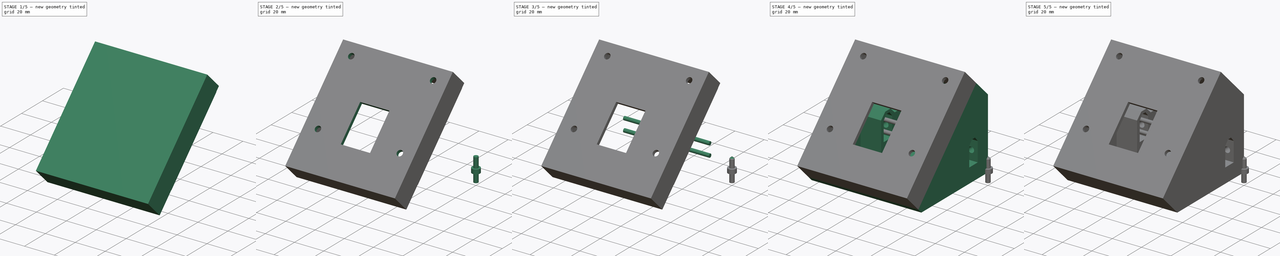
[diagram: build sequence overview — one tinted view per stage of 5, left to right]
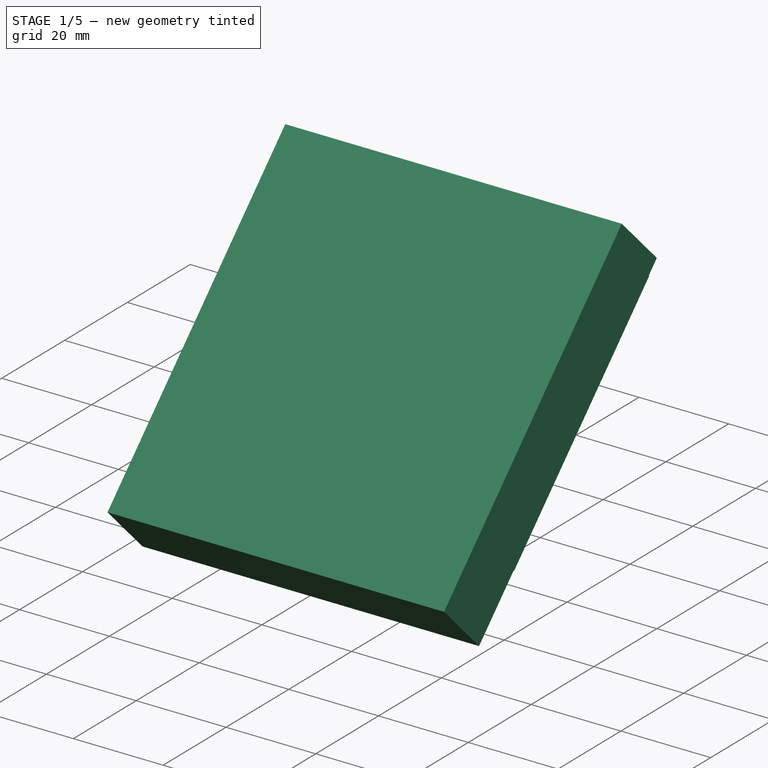
[diagram: stage 1 of 5 — iso view after this stage's code; geometry added in this stage tinted green]
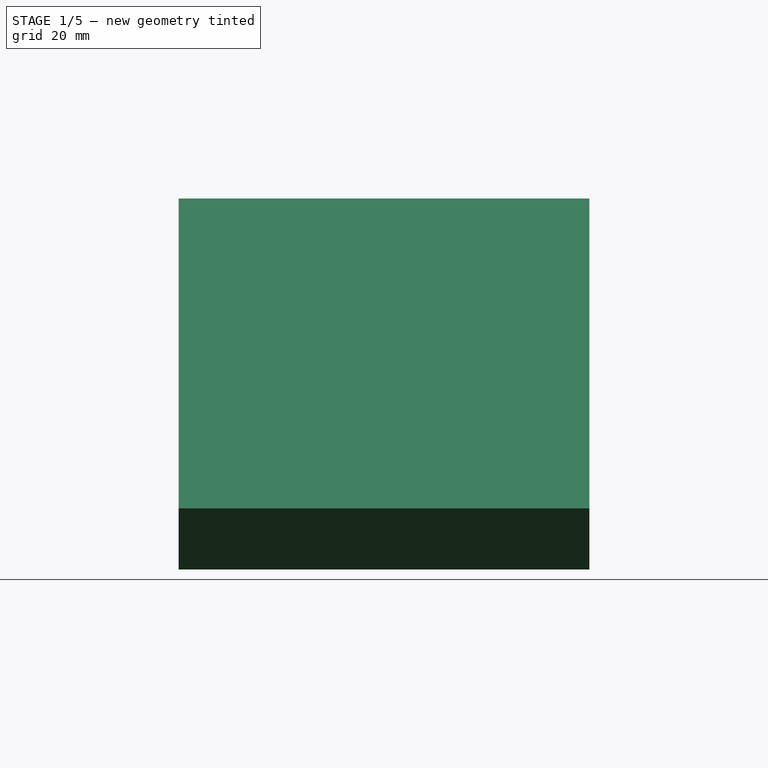
[diagram: stage 1 of 5 — front view after this stage's code; geometry added in this stage tinted green]
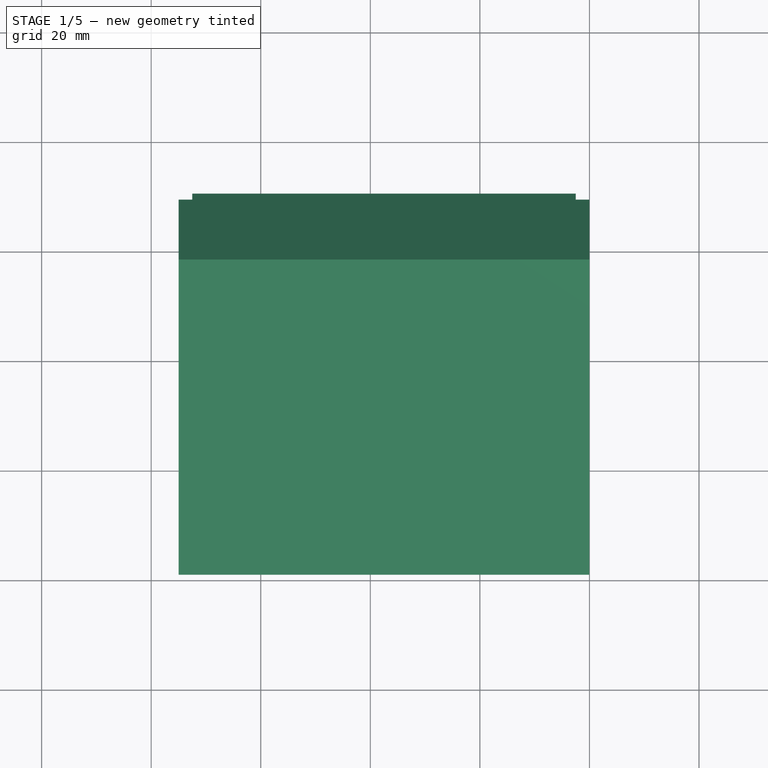
[diagram: stage 1 of 5 — top view after this stage's code; geometry added in this stage tinted green]
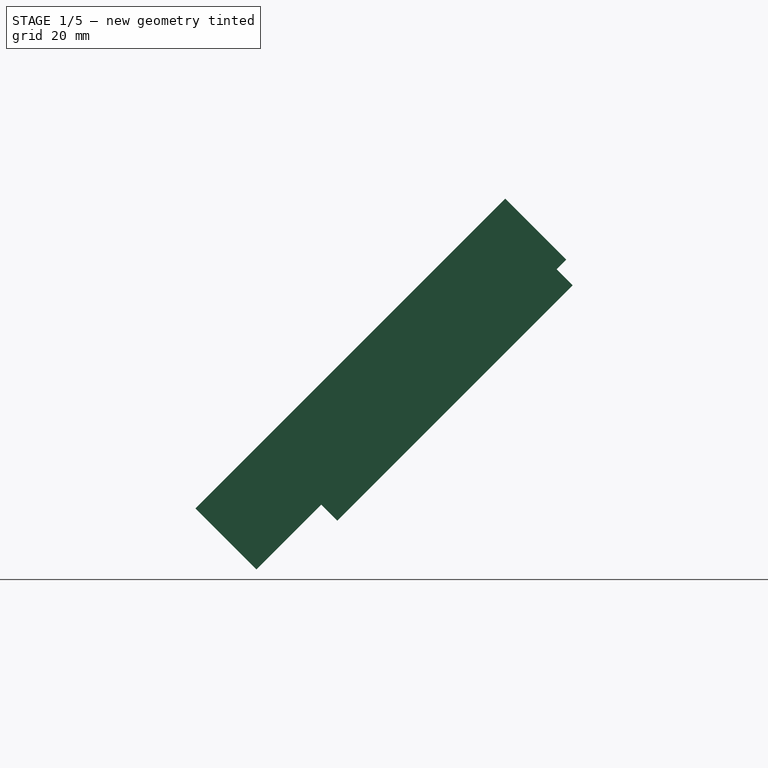
[diagram: stage 1 of 5 — right view after this stage's code; geometry added in this stage tinted green]
FCSTD DOCUMENT  (FreeCAD 0.20R29177 (Git))
Label: moduleLidl_001_surBase35mm_009.1
License: All rights reserved
LicenseURL: http://en.wikipedia.org/wiki/All_rights_reserved
objects: Sketcher::SketchObject×33, App::Part×17, PartDesign::Pad×17, PartDesign::Pocket×17, PartDesign::Plane×14, PartDesign::Body×9, App::Link×8, Part::Feature×6, PartDesign::LinearPattern×4, PartDesign::Chamfer×4, Spreadsheet::Sheet×3, Part::FeaturePython×3, PartDesign::FeatureBase×2, PartDesign::Thickness×2, App::DocumentObjectGroup×1, App::LinkGroup×1
note: 151 computed .brp shape members not serialized (recipe doc carries the construction recipe); baked Part::Feature solids carry a one-line shape summary decoded from their .brp
EXTERNAL_REF file=LIDLBatPlug_006.FCStd obj=Part001
EXTERNAL_REF file=switch.FCStd obj=fullAss_v47
EXTERNAL_REF file=porteFuse_008.FCStd obj=Part011
EXTERNAL_REF file=LIDLBatPlug_006.FCStd obj=Spreadsheet001
EXTERNAL_REF file=visTHCM3x6.FCStd obj=Part
EXTERNAL_REF file=ruthex.FCStd obj=Part

FEATURE [PartDesign::Body] Body  label="Base"
  Origin = -> Origin001
FEATURE [App::Part] Part
  Group = -> [Body]
  Origin = -> Origin
FEATURE [Sketcher::SketchObject] Sketch  label="profileDeBase"
  FullyConstrained = true
  MapMode = 5
  Placement = pos=(0,0,0) rot=(0.57735,0.57735,0.57735;2.0944rad)
  Support = -> [YZ_Plane001]
  expr: Constraints[10] = <<sp>>.petitRetour
  expr: Constraints[11] = <<sp>>.angleFacePetitRetour
  expr: Constraints[12] = <<sp>>.Face
  expr: Constraints[13] = <<sp>>.angleFaceRetourHaut
  expr: Constraints[8] = <<sp>>.Base
  expr: Constraints[9] = <<sp>>.anglePetitRetourBase
  sketch-geometry (5):
    g0: LineSegment StartX=0 StartY=0 StartZ=0 EndX=-65 EndY=0 EndZ=0
    g1: LineSegment StartX=-65 StartY=0 StartZ=0 EndX=-79.1421 EndY=14.1421 EndZ=0
    g2: LineSegment StartX=-79.1421 StartY=14.1421 StartZ=0 EndX=-22.5736 EndY=70.7107 EndZ=0
    g3: LineSegment StartX=-22.5736 StartY=70.7107 StartZ=0 EndX=0 EndY=48.1371 EndZ=0
    g4: LineSegment StartX=0 StartY=48.1371 StartZ=0 EndX=0 EndY=0 EndZ=0
  constraints (14):
    c: Coincident(g-1,g0)
    c: Horizontal(g0)
    c: Coincident(g0,g1)
    c: Coincident(g1,g2)
    c: Coincident(g2,g3)
    c: PointOnObject(g3,g-2)
    c: Coincident(g3,g4)
    c: Coincident(g4,g0)
    c: DistanceX(g0,g0) = 65
    c: Angle(g0,g1) = 2.35619
    c: Distance(g1) = 20
    c: Angle(g1,g2) = 1.5708
    c: Distance(g2) = 80
    c: Angle(g2,g3) = 1.5708
FEATURE [Spreadsheet::Sheet] Spreadsheet  label="sp"
  cells = A1=Base; B1(Base)=65; D1=insertDiamDeBase; E1=3; F1=(M3); A2=petitRetour; B2(petitRetour)=20; D2=insertDiamPercage; E2(insertDiamPercage)=4; A3=Face; B3(Face)=80; D3=insertProfondeurPercage; E3(insertProfondeurPercage)==xt60distanceAngleBord; F3=Calculé; A4=anglePetitRetourBase; B4(anglePetitRetourBase)=135; D4=insertDiamEvidementFer; E4=6; F4=Plus utilisé conservé pour mémoire; A5=angleFacePetitRetour; B5(angleFacePetitRetour)=90; D5=insertDistanceTrouBordMale; E5(insertDistanceTrouBordMale)==insertDiamPercage / 2 + epaisseurParois; F5=Calculé; A6=angleFaceRetourHaut; B6(angleFaceRetourHaut)=90; D6=insertDistanceTrouBordFem; E6(insertDistanceTrouBordFem)==largeurModuleBase - (insertDiamPercage / 2 + 10); F6=Calculé; A7=angleRetourHautVerticale; B7(angleRetourHautVerticale)=135; D7=insertHauteur; E7(insertHauteur)==xt60distanceAngleBord + xt60hauteur / 2; F7=Calculé; A8=largeurModuleBase; B8(largeurModuleBase)=75; D8=insertFAVDistBord; E8(insertFAVDistBord)==2 * insertFAVMargeDist + insertDiamPercage; A9=planTrancheur; B9(planTrancheur)=71; D9=insertFAVMargeDist; E9(insertFAVMargeDist)=2; F9=également epaisseur du renfort (min 1.6); A10=epaisseurParois; B10(epaisseurParois)=2.5; A11=porteBordALaParois; B11=3.5; D11=insertFavDistAuZeroDuPLan; E11(insertFavDistAuZeroDuPLan)==abs((planTrancheur - Base) * cos(anglePetitRetourBase)); F11=Calculé; A12=porteProfondeur1; B12=1.5; D12=insertFavProfondeur; E12(insertFavProfondeur)=8; F12=5.7+1 min; A13=porteLargeurRebord; B13=2; A14=xt60distanceAngleBord; B14(xt60distanceAngleBord)=10; D14=visM3DiamEncastrement; E14(visM3DiamEncastrement)=6; A15=xt60epRenfort; B15(xt60epRenfort)=2.5; D15=favEpBordure; E15(favEpBordure)=1.5; A16=xt60base; B16(xt60base)=8.300000000000001; D16=favBordureProf; E16(favBordureProf)=4.15; A17=xt60hauteur; B17(xt60hauteur)=13.25; D17=favBordureJeu; E17(favBordureJeu)=0.5; A18=xt60hauteurToit; B18(xt60hauteurToit)=2.5; D18=favDistBordPlan; E18(favDistBordPlan)==insertFavDistAuZeroDuPLan + epaisseurParois + insertFAVDistBord + insertFAVMargeDist; A19=xt60largeurFetiere; B19(xt60largeurFetiere)=3; A20=epaisseurFav; B20=15.5; A21=xt60longueurRenfortGrand; B21(xt60longueurRenfortGrand)=14; A22=xt60LongueurRenfortPetit; B22(xt60LongueurRenfortPetit)=6; D22=ventilLargeurFentes; E22(ventilLargeurFentes)=2; A23=hauteurDuDos; B23(hauteurDuDos)==(Face + petitRetour) * sqr2Sur2 - (Base + (petitRetour - Face) * sqr2Sur2); D23=ventilEcartfente; E23(ventilEcartfente)=2; A24=sqr2Sur2; B24(sqr2Sur2)==sqrt(2) / 2; D24=ventilDistBordFente; E24(ventilDistBordFente)=2; F24=Marge de sécurité; A25=distanceAuZeroPlanBorArriere; B25(distanceAuZeroPlanBorArriere)==sqrt(2 * pow(hauteurDuDos; 2)); D25=grandA; E25(grandA)==(largeurModuleBase - 2 * epaisseurParois) / 2; F25=Calculé; A26=hauteurPetitRetourSup; B26(hauteurPetitRetourSup)==Base + petitRetour * sqr2Sur2 - 80 * sqr2Sur2; D26=ventilLargeurRepet; E26(ventilLargeurRepet)==(ventilNbrFents - 1) * (ventilLargeurFentes + ventilEcartfente); F26=Calculé; A27=longeurPetitRetourSup; B27(longeurPetitRetourSup)==sqrt(2 * pow(hauteurPetitRetourSup; 2)); D27=ventilNbrFents; E27(ventilNbrFents)==floor(ventilLargeurRepetUtilisable / (ventilLargeurFentes + ventilEcartfente)); F27=Calculé; A28=longPetitRetSupSansFav; B28(longPetitRetSupSansFav)==longeurPetitRetourSup - (petitRetour - insertFavDistAuZeroDuPLan); D28=ventilLargeurRepetUtilisable; E28(ventilLargeurRepetUtilisable)==grandA - ventilDistBordFente - ventilEcartfente / 2; A29=planFaceAvant; B29(planFaceAvant)==Base + petitRetour * sqrt(2); A30=distZeroPlanFAV; B30(distZeroPlanFAV)==petitRetour; A31=bourletMaintientRayon; B31(bourletMaintientRayon)=1.5; A32=bourletDistAuBord; B32(bourletDistAuBord)=16; A33=bourletRayonJeu; B33(bourletRayonJeu)=0.2; A34=xtJeu; B34(xtJeu)=0.6
FEATURE [PartDesign::Pad] Pad
  AllowMultiFace = false
  Direction = (1,-2e-16,3e-16)
  Length = 75
  Length2 = 100
  Placement = pos=(0,0,0) rot=(0.57735,0.57735,0.57735;2.0944rad)
  Profile = -> Sketch
  Reversed = true
  Type = 0
  expr: Length = <<sp>>.largeurModuleBase
FEATURE [PartDesign::Plane] DatumPlane
  AttachmentOffset = pos=(71,0,0) rot=(0,-1,0;0.785398rad)
  Length = 339.943
  MapMode = 5
  Placement = pos=(-7.9e-15,8e-15,71) rot=(0.678598,0.678598,0.281085;3.68962rad)
  ResizeMode = 0
  Support = -> [Pad]
  Width = 254.71
FEATURE [Part::FeaturePython] Slice  # WARN: FeaturePython — macro-defined, semantics opaque (R4)
  Base = -> Pad
  Mode = 1
  Tolerance = 0
  Tools = -> [DatumPlane]
FEATURE [Part::FeaturePython] Slice_child1  label="Slice.1"  # WARN: FeaturePython — macro-defined, semantics opaque (R4)
  Base = -> Slice
  FilterType = 1
  Invert = false
  OverrideMaxVal = 0
  WindowFrom = 80
  WindowTo = 100
  items = 1
FEATURE [PartDesign::FeatureBase] Clone001
  BaseFeature = -> Slice_child1
FEATURE [PartDesign::Thickness] Thickness001
  Base = -> Clone001 [Face5]
  BaseFeature = -> Clone001
  Intersection = false
  Join = 0
  Mode = 0
  Reversed = true
  SupportTransform = false
  Value = 2.5
  expr: Value = <<sp>>.epaisseurParois
FEATURE [PartDesign::Plane] DatumPlane007  label="planTrancheurBis"
  AttachmentOffset = pos=(0,0,71) rot=(-1,0,0;0.785398rad)
  Length = 123.775
  MapMode = 5
  Placement = pos=(0,-71,-1.58e-14) rot=(1,0,0;0.785398rad)
  ResizeMode = 0
  Support = -> [XZ_Plane003]
  Width = 165.093
  expr: .AttachmentOffset.Base.z = <<sp>>.planTrancheur
FEATURE [Sketcher::SketchObject] Sketch016  label="sk_insertFavDroit"
  FullyConstrained = true
  MapMode = 5
  Placement = pos=(0,-71,-2.13e-14) rot=(1,0,0;0.785398rad)
  Support = -> [DatumPlane007]
  expr: Constraints[11] = <<sp>>.insertFAVDistBord
  expr: Constraints[14] = <<sp>>.insertFAVDistBord / 2
  expr: Constraints[7] = <<sp>>.epaisseurParois
  expr: Constraints[8] = <<sp>>.insertFavDistAuZeroDuPLan + <<sp>>.epaisseurParois
  expr: Constraints[9] = <<sp>>.insertFAVDistBord
  sketch-geometry (5):
    g0: LineSegment StartX=-6.5 StartY=14.7426 StartZ=0 EndX=-2.5 EndY=14.7426 EndZ=0
    g1: LineSegment StartX=-2.5 StartY=14.7426 StartZ=0 EndX=-2.5 EndY=6.74264 EndZ=0
    g2: LineSegment StartX=-2.5 StartY=6.74264 StartZ=0 EndX=-10.5 EndY=6.74264 EndZ=0
    g3: LineSegment StartX=-10.5 StartY=6.74264 StartZ=0 EndX=-10.5 EndY=10.7426 EndZ=0
    g4: ArcOfCircle CenterX=-6.5 CenterY=10.7426 CenterZ=0 NormalX=0 NormalY=0 NormalZ=1 AngleXU=0 Radius=4 StartAngle=1.5708 EndAngle=3.14159
  constraints (15):
    c: Horizontal(g0)
    c: Coincident(g0,g1)
    c: Vertical(g1)
    c: Coincident(g1,g2)
    c: Horizontal(g2)
    c: Coincident(g2,g3)
    c: Vertical(g3)
    c: DistanceX(g1,g-1) = 2.5
    c: DistanceY(g-1,g1) = 6.74264
    c: DistanceY(g1,g1) = 8
    c: Equal(g3,g0)
    c: DistanceX(g2,g2) = 8
    c: Coincident(g4,g0)
    c: Tangent(g4,g3) = 1.5708
    c: DistanceX(g4,g1) = 4
FEATURE [PartDesign::Pad] Pad005  label="padInsertFavDroit"
  AllowMultiFace = false
  BaseFeature = -> Thickness001
  Direction = (0,-0.707107,0.707107)
  Length = 10
  Length2 = 100
  Profile = -> Sketch016
  Type = 2
FEATURE [Sketcher::SketchObject] Sketch017  label="sp_padInserFavGauch"
  FullyConstrained = true
  MapMode = 5
  Placement = pos=(0,-71,-2.13e-14) rot=(1,0,0;0.785398rad)
  Support = -> [DatumPlane007]
  expr: Constraints[10] = <<sp>>.insertFAVDistBord
  expr: Constraints[12] = <<sp>>.insertFAVDistBord / 2
  expr: Constraints[13] = <<sp>>.largeurModuleBase
  expr: Constraints[14] = <<sp>>.insertFavDistAuZeroDuPLan
  expr: Constraints[15] = <<sp>>.epaisseurParois
  expr: Constraints[16] = <<sp>>.epaisseurParois
  sketch-geometry (6):
    g0: LineSegment StartX=-68.5 StartY=14.7426 StartZ=0 EndX=-72.5 EndY=14.7426 EndZ=0
    g1: LineSegment StartX=-72.5 StartY=14.7426 StartZ=0 EndX=-72.5 EndY=6.74264 EndZ=0
    g2: LineSegment StartX=-72.5 StartY=6.74264 StartZ=0 EndX=-64.5 EndY=6.74264 EndZ=0
    g3: LineSegment StartX=-64.5 StartY=6.74264 StartZ=0 EndX=-64.5 EndY=10.7426 EndZ=0
    g4: ArcOfCircle CenterX=-68.5 CenterY=10.7426 CenterZ=0 NormalX=0 NormalY=0 NormalZ=1 AngleXU=0 Radius=4 StartAngle=-4.5377e-12 EndAngle=1.5708
    g5: GeomPoint X=-75 Y=4.24264 Z=0
  constraints (17):
    c: Horizontal(g0)
    c: Coincident(g0,g1)
    c: Vertical(g1)
    c: Coincident(g1,g2)
    c: Horizontal(g2)
    c: Coincident(g2,g3)
    c: Vertical(g3)
    c: Equal(g3,g0)
    c: Equal(g2,g1)
    c: Coincident(g0,g4)
    c: DistanceX(g2,g2) = 8
    c: Tangent(g4,g3) = -1.5708
    c: DistanceX(g0,g0) = 4
    c: DistanceX(g5,g-1) = 75
    c: DistanceY(g-1,g5) = 4.24264
    c: DistanceY(g5,g1) = 2.5
    c: DistanceX(g5,g1) = 2.5
FEATURE [PartDesign::Pad] Pad006  label="padInsertFavGauch"
  AllowMultiFace = false
  BaseFeature = -> Pad005
  Direction = (0,-0.707107,0.707107)
  Length = 10
  Length2 = 100
  Profile = -> Sketch017
  Type = 2
FEATURE [Sketcher::SketchObject] Sketch018  label="skPercageInsertFavDroit"
  FullyConstrained = true
  MapMode = 5
  Placement = pos=(0,-71,-2.13e-14) rot=(1,0,0;0.785398rad)
  Support = -> [DatumPlane007]
  expr: Constraints[0] = <<sp>>.insertDiamPercage
  expr: Constraints[1] = <<sp>>.insertFavDistAuZeroDuPLan + <<sp>>.epaisseurParois + <<sp>>.insertFAVDistBord / 2
  expr: Constraints[2] = <<sp>>.epaisseurParois + <<sp>>.insertFAVDistBord / 2
  expr: Constraints[7] = <<sp>>.largeurModuleBase - 2 * <<sp>>.epaisseurParois - <<sp>>.insertFAVDistBord
  sketch-geometry (3):
    g0: Circle CenterX=-6.5 CenterY=10.7426 CenterZ=0 NormalX=0 NormalY=0 NormalZ=1 AngleXU=0 Radius=2
    g1: Circle CenterX=-68.5 CenterY=10.7426 CenterZ=0 NormalX=0 NormalY=0 NormalZ=1 AngleXU=0 Radius=2
    g2: LineSegment StartX=-68.5 StartY=10.7426 StartZ=0 EndX=-6.5 EndY=10.7426 EndZ=0
  constraints (8):
    c: Diameter(g0) = 4
    c: DistanceY(g-1,g0) = 10.7426
    c: DistanceX(g0,g-1) = 6.5
    c: Equal(g0,g1)
    c: Coincident(g2,g1)
    c: Coincident(g2,g0)
    c: Horizontal(g2)
    c: DistanceX(g2,g2) = 62
FEATURE [PartDesign::Pocket] Pocket010  label="trouInsertFavDroit"
  AllowMultiFace = false
  BaseFeature = -> Pad006
  Direction = (0,0.707107,-0.707107)
  Length = 8
  Length2 = 100
  Profile = -> Sketch018
  Reversed = true
  Type = 0
  expr: Length = <<sp>>.insertFavProfondeur
FEATURE [PartDesign::Body] Body001  label="base"
  BaseFeature = -> Slice_child0
  Group = -> [Clone,Thickness,DatumPlane001,Sketch002,Pad001,Sketch003,Pocket,DatumPlane002,Sketch004,Pocket001,Sketch005,Pocket002,Sketch006,Pocket003,DatumPlane003,DatumPlane004,Sketch008,Pad003,Sketch009,Pad004,Sketch010,Pocket004,Sketch011,Pocket005,DatumPlane005,Sketch012,Pocket006,Sketch014,Pocket008,LinearPattern,LinearPattern001,DatumPlane006,Sketch015,Pocket009,LinearPattern002,LinearPattern003,+3 more]
  Origin = -> Origin002
  Tip = -> Pocket015
FEATURE [PartDesign::Plane] DatumPlane011  label="planFaceAvant"
  AttachmentOffset = pos=(0,0,93.2843) rot=(-1,0,0;0.785398rad)
  Length = 123.775
  MapMode = 5
  Placement = pos=(0,-93.2843,-2.07e-14) rot=(1,0,0;0.785398rad)
  ResizeMode = 0
  Support = -> [XZ_Plane003]
  Width = 165.093
  expr: .AttachmentOffset.Base.z = <<sp>>.planFaceAvant
FEATURE [Sketcher::SketchObject] Sketch030  label="sk_rebordFav"
  FullyConstrained = true
  MapMode = 5
  Placement = pos=(0,-71,-2.13e-14) rot=(1,0,0;0.785398rad)
  Support = -> [DatumPlane007]
  expr: Constraints[0] = <<sp>>.insertFavDistAuZeroDuPLan
  expr: Constraints[19] = <<sp>>.epaisseurParois
  expr: Constraints[20] = <<sp>>.favEpBordure
  expr: Constraints[21] = <<sp>>.favDistBordPlan
  expr: Constraints[22] = <<sp>>.largeurModuleBase - 2 * <<sp>>.epaisseurParois
  expr: Constraints[23] = <<sp>>.favEpBordure
  expr: Constraints[24] = <<sp>>.Face - <<sp>>.epaisseurParois
  expr: Constraints[25] = <<sp>>.favEpBordure
  sketch-geometry (9):
    g0: GeomPoint X=0 Y=4.24264 Z=0
    g1: LineSegment StartX=-72.5 StartY=20.9853 StartZ=0 EndX=-72.5 EndY=81.7426 EndZ=0
    g2: LineSegment StartX=-72.5 StartY=81.7426 StartZ=0 EndX=-2.5 EndY=81.7426 EndZ=0
    g3: LineSegment StartX=-2.5 StartY=81.7426 StartZ=0 EndX=-2.5 EndY=20.9853 EndZ=0
    g4: LineSegment StartX=-2.5 StartY=20.9853 StartZ=0 EndX=-4 EndY=20.9853 EndZ=0
    g5: LineSegment StartX=-4 StartY=20.9853 StartZ=0 EndX=-4 EndY=80.2426 EndZ=0
    g6: LineSegment StartX=-4 StartY=80.2426 StartZ=0 EndX=-71 EndY=80.2426 EndZ=0
    g7: LineSegment StartX=-71 StartY=80.2426 StartZ=0 EndX=-71 EndY=20.9853 EndZ=0
    g8: LineSegment StartX=-71 StartY=20.9853 StartZ=0 EndX=-72.5 EndY=20.9853 EndZ=0
  constraints (26):
    c: DistanceY(g-1,g0) = 4.24264
    c: Vertical(g0,g-1)
    c: Vertical(g1)
    c: Coincident(g1,g2)
    c: Horizontal(g2)
    c: Coincident(g2,g3)
    c: Vertical(g3)
    c: Coincident(g3,g4)
    c: Horizontal(g4)
    c: Coincident(g4,g5)
    c: Vertical(g5)
    c: Coincident(g5,g6)
    c: Horizontal(g6)
    c: Coincident(g6,g7)
    c: Vertical(g7)
    c: Coincident(g7,g8)
    c: Coincident(g8,g1)
    c: Horizontal(g8)
    c: Horizontal(g7,g4)
    c: DistanceX(g3,g0) = 2.5
    c: DistanceX(g4,g4) = 1.5
    c: DistanceY(g0,g3) = 16.7426
    c: DistanceX(g1,g3) = 70
    c: DistanceY(g5,g2) = 1.5
    c: DistanceY(g0,g2) = 77.5
    c: DistanceX(g1,g7) = 1.5
FEATURE [PartDesign::Pad] Pad014  label="favRebordSupport"
  AllowMultiFace = false
  BaseFeature = -> Pocket010
  Direction = (0,-0.707107,0.707107)
  Length = 10
  Length2 = 100
  Profile = -> Sketch030
  Type = 3
  UpToFace = -> Pocket010 [Face13]
FEATURE [PartDesign::Pad] Pad015  label="favRebord"
  AllowMultiFace = false
  BaseFeature = -> Pad014
  Direction = (0,-0.707107,0.707107)
  Length = 4.15
  Length2 = 100
  Profile = -> Sketch030
  Reversed = true
  Type = 0
  expr: Length = <<sp>>.favBordureProf
FEATURE [Sketcher::SketchObject] Sketch047  label="Sketch006"
  ExternalGeometry = -> [Pad022]
  FullyConstrained = false
  MapMode = 5
  Placement = pos=(1.6,0,1e-16) rot=(0.57735,0.57735,0.57735;2.0944rad)
  Support = -> [Pad022]
  sketch-geometry (1):
    g0: Circle CenterX=0 CenterY=-28 CenterZ=0 NormalX=0 NormalY=0 NormalZ=1 AngleXU=0 Radius=0.875
  constraints (2):
    c: Diameter(g0) = 1.75
    c: Coincident(g0,g-3)
FEATURE [PartDesign::Pocket] Pocket021
  AllowMultiFace = false
  BaseFeature = -> Pad022
  Length = 5
  Length2 = 100
  Placement = pos=(1,0,0) rot=(0.57735,0.57735,0.57735;2.0944rad)
  Profile = -> Sketch047
  Type = 1
FEATURE [PartDesign::Body] Body013  label="cosse002"
  Group = -> [DatumPlane016,Sketch046,Pad022,Sketch047,Pocket021]
  Origin = -> Origin046
  Placement = pos=(-1e-15,-6.2,12) rot=(0,0,1;1.5708rad)
  Tip = -> Pocket021
FEATURE [App::Part] Part011  label="porteFuse"
  Group = -> [Body010,Spreadsheet005,Body011,Body012,Body013]
  Origin = -> Origin042
---- part visTHCM3x6.FCStd = doc fcstd_cdd42866c876 ----
FCSTD DOCUMENT  (FreeCAD 0.20R29177 (Git))
Label: visTHCM3x6
License: All rights reserved
LicenseURL: http://en.wikipedia.org/wiki/All_rights_reserved
objects: Sketcher::SketchObject×3, PartDesign::Pad×2, PartDesign::Plane×1, PartDesign::Pocket×1, PartDesign::Body×1, App::Part×1
note: 11 computed .brp shape members not serialized (recipe doc carries the construction recipe); baked Part::Feature solids carry a one-line shape summary decoded from their .brp

FEATURE [Sketcher::SketchObject] Sketch
  FullyConstrained = false
  MapMode = 5
  Support = -> [XY_Plane]
  sketch-geometry (1):
    g0: Circle CenterX=0 CenterY=0 CenterZ=0 NormalX=0 NormalY=0 NormalZ=1 AngleXU=0 Radius=2.75
  constraints (2):
    c: Coincident(g0,g-1)
    c: Diameter(g0) = 5.5
FEATURE [PartDesign::Pad] Pad  label="tete"
  AllowMultiFace = false
  Direction = (1,1,1)
  Length = 3
  Length2 = 100
  Profile = -> Sketch
  Type = 0
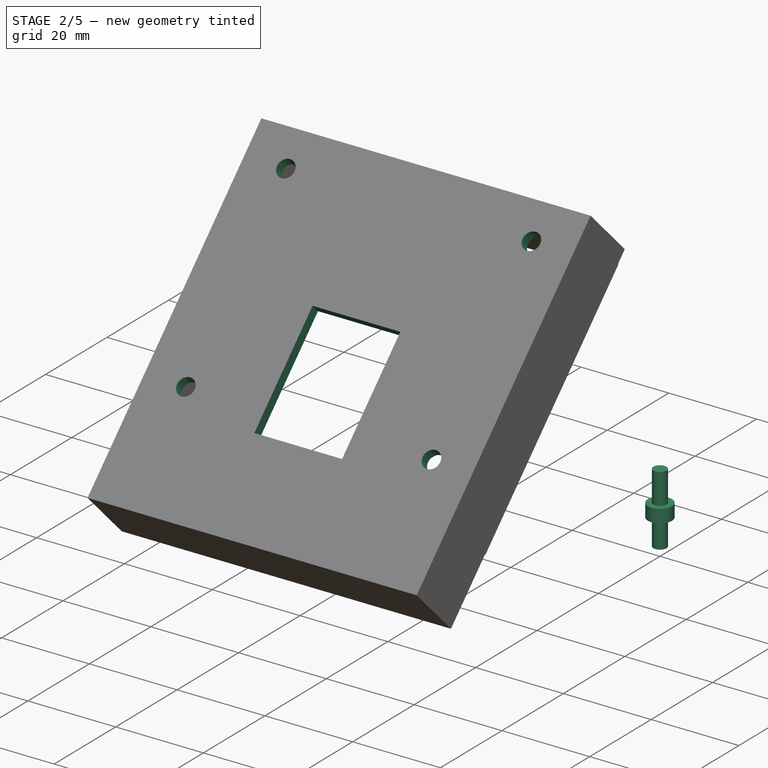
[diagram: stage 2 of 5 — iso view after this stage's code; geometry added in this stage tinted green]
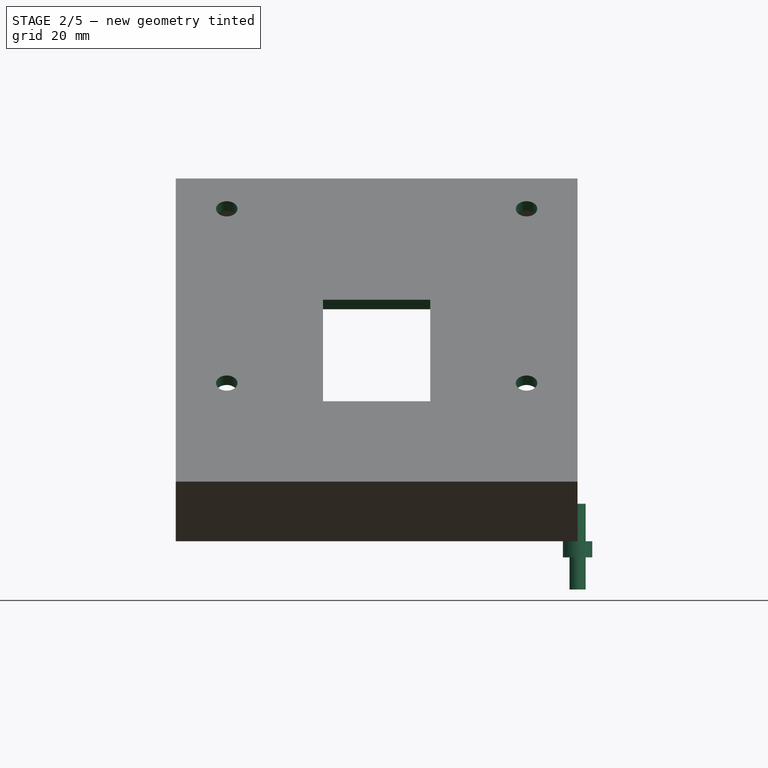
[diagram: stage 2 of 5 — front view after this stage's code; geometry added in this stage tinted green]
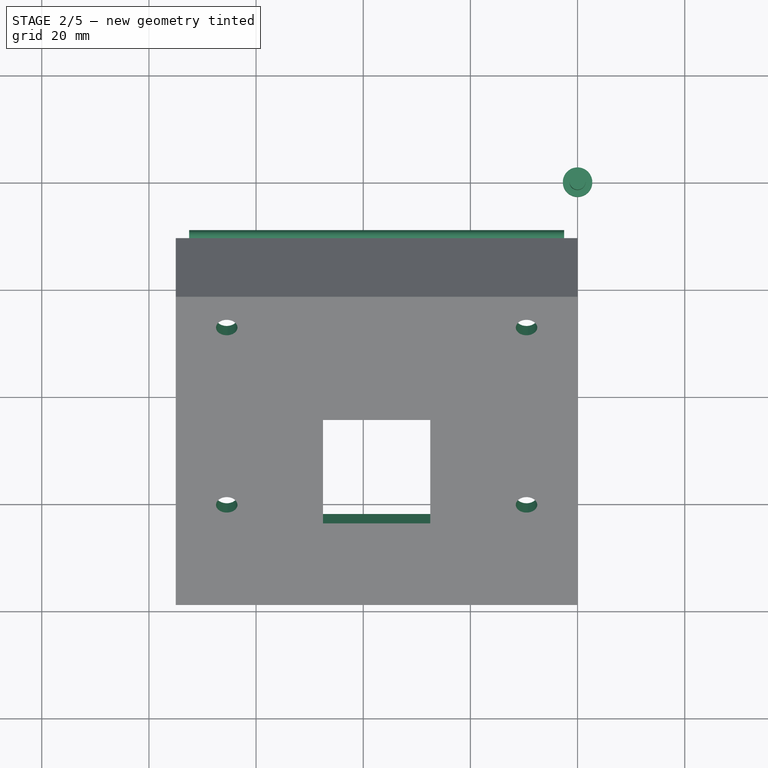
[diagram: stage 2 of 5 — top view after this stage's code; geometry added in this stage tinted green]
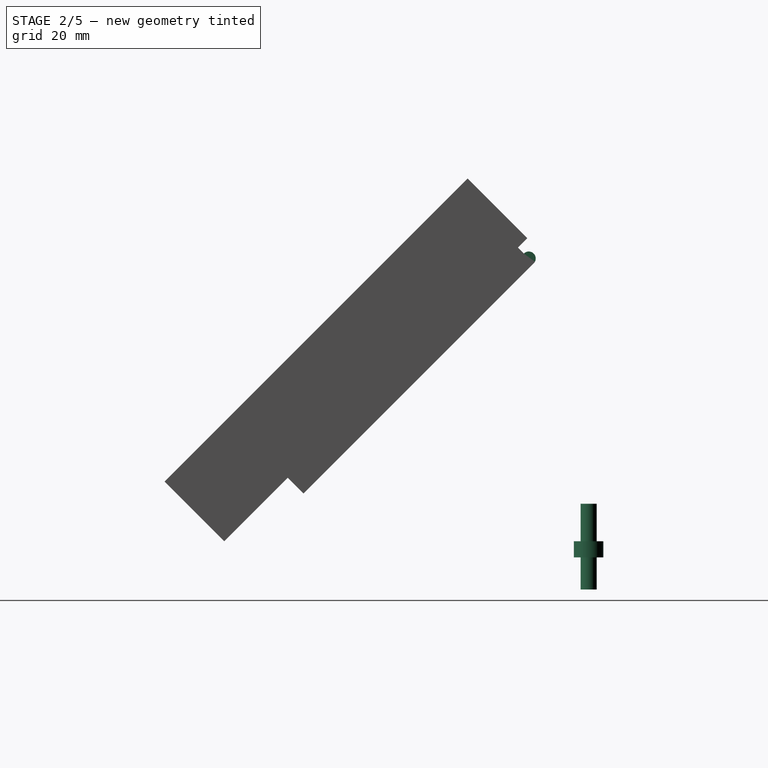
[diagram: stage 2 of 5 — right view after this stage's code; geometry added in this stage tinted green]
FEATURE [PartDesign::Chamfer] Chamfer001
  Angle = 45
  Base = -> Pocket013 [Edge3]
  BaseFeature = -> Pocket013
  ChamferType = 0
  FlipDirection = false
  Size = 0.1
  Size2 = 1
  SupportTransform = false
  UseAllEdges = false
FEATURE [PartDesign::Body] Body005  label="bodyVisPointeauM3x10_001"
  Group = -> [Sketch025,Pad012,Chamfer,Sketch026,Pocket013,Chamfer001]
  Origin = -> Origin013
  Tip = -> Chamfer001
FEATURE [App::Part] Part007  label="partVisPointeauM3x10_001"
  Group = -> [Body005]
  Origin = -> Origin012
  Placement = pos=(-4.5,-0.5,16.6) rot=(1,0,0;1.5708rad)
FEATURE [Sketcher::SketchObject] Sketch027
  FullyConstrained = false
  MapMode = 5
  Support = -> [XY_Plane010]
  sketch-geometry (7):
    g0: LineSegment StartX=0.433013 StartY=-0.75 StartZ=0 EndX=0.866025 EndY=1.25568e-11 EndZ=0
    g1: LineSegment StartX=0.866025 StartY=1.25568e-11 StartZ=0 EndX=0.433013 EndY=0.75 EndZ=0
    g2: LineSegment StartX=0.433013 StartY=0.75 StartZ=0 EndX=-0.433013 EndY=0.75 EndZ=0
    g3: LineSegment StartX=-0.433013 StartY=0.75 StartZ=0 EndX=-0.866025 EndY=2.91366e-11 EndZ=0
    g4: LineSegment StartX=-0.866025 StartY=2.91366e-11 StartZ=0 EndX=-0.433013 EndY=-0.75 EndZ=0
    g5: LineSegment StartX=-0.433013 StartY=-0.75 StartZ=0 EndX=0.433013 EndY=-0.75 EndZ=0
    g6: Circle CenterX=0 CenterY=0 CenterZ=0 NormalX=0 NormalY=0 NormalZ=1 AngleXU=0 Radius=0.866025
  constraints (16):
    c: Coincident(g0,g1)
    c: Coincident(g1,g2)
    c: Coincident(g2,g3)
    c: Coincident(g3,g4)
    c: Coincident(g4,g5)
    c: Coincident(g5,g0)
    c: Equal(g0, g1-g5) x5
    c: PointOnObject(g0,g6)
    c: PointOnObject(g1,g6)
    c: PointOnObject(g2,g6)
    c: PointOnObject(g3,g6)
    c: PointOnObject(g4,g6)
    c: PointOnObject(g5,g6)
    c: Coincident(g6,g-1)
    c: Horizontal(g2)
    c: DistanceY(g0,g1) = 1.5
FEATURE [Sketcher::SketchObject] Sketch028
  FullyConstrained = false
  MapMode = 5
  Support = -> [XY_Plane010]
  sketch-geometry (1):
    g0: Circle CenterX=0 CenterY=0 CenterZ=0 NormalX=0 NormalY=0 NormalZ=1 AngleXU=0 Radius=1.5
  constraints (2):
    c: Coincident(g0,g-1)
    c: Diameter(g0) = 3
FEATURE [PartDesign::Pad] Pad013
  AllowMultiFace = false
  Direction = (1,1,1)
  Length = 10
  Length2 = 100
  Profile = -> Sketch028
  Type = 0
FEATURE [Sketcher::SketchObject] Sketch031  label="sk_bourlet"
  ExternalGeometry = -> [Pad015]
  FullyConstrained = true
  MapMode = 5
  Placement = pos=(-2.5,0,0) rot=(0.57735,0.57735,0.57735;2.0944rad)
  Support = -> [Pad015]
  expr: Constraints[3] = <<sp>>.bourletMaintientRayon - <<sp>>.bourletRayonJeu
  sketch-geometry (2):
    g0: ArcOfCircle CenterX=-11.184 CenterY=55.7855 CenterZ=0 NormalX=0 NormalY=0 NormalZ=1 AngleXU=0 Radius=1.3 StartAngle=5.49779 EndAngle=8.63938
    g1: LineSegment StartX=-12.1032 StartY=56.7048 StartZ=0 EndX=-10.2647 EndY=54.8663 EndZ=0
  constraints (6):
    c: Coincident(g0,g-3)
    c: PointOnObject(g0,g-3)
    c: PointOnObject(g0,g-3)
    c: Radius(g0) = 1.3
    c: Coincident(g1,g0)
    c: Coincident(g1,g0)
FEATURE [PartDesign::Pad] Pad016  label="bourlet"
  AllowMultiFace = false
  BaseFeature = -> Pad015
  Direction = (1,0,0)
  Length = 10
  Length2 = 100
  Profile = -> Sketch031
  Reversed = true
  Type = 3
  UpToFace = -> Pad015 [Face11]
FEATURE [PartDesign::Body] Body008  label="tige2"
  Group = -> [DatumPlane013,Sketch033,Pad018]
  Origin = -> Origin018
  Tip = -> Pad018
FEATURE [App::Part] Part009  label="tigeLaiton001"
  Group = -> [Body007,Spreadsheet001,Body008]
  Origin = -> Origin017
FEATURE [Sketcher::SketchObject] Sketch034  label="Sketch"
  FullyConstrained = false
  MapMode = 5
  Support = -> [XY_Plane015]
  sketch-geometry (1):
    g0: Circle CenterX=0 CenterY=0 CenterZ=0 NormalX=0 NormalY=0 NormalZ=1 AngleXU=0 Radius=2.75
  constraints (2):
    c: Coincident(g0,g-1)
    c: Diameter(g0) = 5.5
FEATURE [PartDesign::Pad] Pad019  label="tete"
  AllowMultiFace = false
  Direction = (1,1,1)
  Length = 3
  Length2 = 100
  Profile = -> Sketch034
  Type = 0
FEATURE [Sketcher::SketchObject] Sketch001
  FullyConstrained = false
  MapMode = 5
  Placement = pos=(0,0,0) rot=(1,0,0;3.14159rad)
  Support = -> [Pad019]
  sketch-geometry (1):
    g0: Circle CenterX=0 CenterY=0 CenterZ=0 NormalX=0 NormalY=0 NormalZ=1 AngleXU=0 Radius=1.5
  constraints (2):
    c: Coincident(g0,g-1)
    c: Diameter(g0) = 3
FEATURE [PartDesign::Pad] Pad020  label="corps"
  AllowMultiFace = false
  BaseFeature = -> Pad019
  Direction = (1,1,1)
  Length = 6
  Length2 = 100
  Profile = -> Sketch001
  Type = 0
FEATURE [PartDesign::Plane] DatumPlane014
  AttachmentOffset = pos=(0,0,3) rot=(0,0,1;0rad)
  Length = 60
  MapMode = 5
  Placement = pos=(0,0,3) rot=(0,0,1;0rad)
  ResizeMode = 0
  Support = -> [XY_Plane015]
  Width = 60
FEATURE [Sketcher::SketchObject] Sketch035  label="Sketch002"
  FullyConstrained = false
  MapMode = 5
  Placement = pos=(0,0,3) rot=(0,0,1;0rad)
  Support = -> [DatumPlane014]
  sketch-geometry (7):
    g0: LineSegment StartX=0.721688 StartY=-1.25 StartZ=0 EndX=1.44338 EndY=1.0119e-12 EndZ=0
    g1: LineSegment StartX=1.44338 StartY=1.0119e-12 StartZ=0 EndX=0.721688 EndY=1.25 EndZ=0
    g2: LineSegment StartX=0.721688 StartY=1.25 StartZ=0 EndX=-0.721688 EndY=1.25 EndZ=0
    g3: LineSegment StartX=-0.721688 StartY=1.25 StartZ=0 EndX=-1.44338 EndY=8.689e-13 EndZ=0
    g4: LineSegment StartX=-1.44338 StartY=8.689e-13 StartZ=0 EndX=-0.721688 EndY=-1.25 EndZ=0
    g5: LineSegment StartX=-0.721688 StartY=-1.25 StartZ=0 EndX=0.721688 EndY=-1.25 EndZ=0
    g6: Circle CenterX=0 CenterY=0 CenterZ=0 NormalX=0 NormalY=0 NormalZ=1 AngleXU=0 Radius=1.44338
  constraints (16):
    c: Coincident(g0,g1)
    c: Coincident(g1,g2)
    c: Coincident(g2,g3)
    c: Coincident(g3,g4)
    c: Coincident(g4,g5)
    c: Coincident(g5,g0)
    c: Equal(g0, g1-g5) x5
    c: PointOnObject(g0,g6)
    c: PointOnObject(g1,g6)
    c: PointOnObject(g2,g6)
    c: PointOnObject(g3,g6)
    c: PointOnObject(g4,g6)
    c: PointOnObject(g5,g6)
    c: Coincident(g6,g-1)
    c: Horizontal(g2)
    c: DistanceY(g0,g1) = 2.5
FEATURE [PartDesign::Pocket] Pocket016  label="emprunte"
  AllowMultiFace = false
  BaseFeature = -> Pad020
  Direction = (1,1,1)
  Length = 4
  Length2 = 100
  Profile = -> Sketch035
  Type = 0
FEATURE [PartDesign::Body] Body009  label="visTHCM3x6_FAV001"
  Group = -> [Sketch034,Pad019,Sketch001,Pad020,DatumPlane014,Sketch035,Pocket016]
  Origin = -> Origin019
  Placement = pos=(-6.5,-61.8718,6.01041) rot=(1,0,0;3.92699rad)
  Tip = -> Pocket016
FEATURE [Sketcher::SketchObject] Sketch036
  FullyConstrained = false
  MapMode = 5
  Support = -> [XY_Plane016]
  sketch-geometry (1):
    g0: Circle CenterX=0 CenterY=0 CenterZ=0 NormalX=0 NormalY=0 NormalZ=1 AngleXU=0 Radius=2.75
  constraints (2):
    c: Coincident(g0,g-1)
    c: Diameter(g0) = 5.5
FEATURE [PartDesign::Pad] Pad021  label="tete001"
  AllowMultiFace = false
  Direction = (1,1,1)
  Length = 3
  Length2 = 100
  Profile = -> Sketch036
  Type = 0
FEATURE [Sketcher::SketchObject] Sketch037
  FullyConstrained = false
  MapMode = 5
  Placement = pos=(0,0,0) rot=(1,0,0;3.14159rad)
  Support = -> [Pad021]
  sketch-geometry (1):
    g0: Circle CenterX=0 CenterY=0 CenterZ=0 NormalX=0 NormalY=0 NormalZ=1 AngleXU=0 Radius=1.5
  constraints (2):
    c: Coincident(g0,g-1)
    c: Diameter(g0) = 3
FEATURE [PartDesign::Pad] Pad022  label="corps001"
  AllowMultiFace = false
  BaseFeature = -> Pad021
  Direction = (1,1,1)
  Length = 6
  Length2 = 100
  Profile = -> Sketch037
  Type = 0
FEATURE [PartDesign::Plane] DatumPlane015
  AttachmentOffset = pos=(0,0,3) rot=(0,0,1;0rad)
  Length = 60
  MapMode = 5
  Placement = pos=(0,0,3) rot=(0,0,1;0rad)
  ResizeMode = 0
  Support = -> [XY_Plane016]
  Width = 60
FEATURE [Sketcher::SketchObject] Sketch038
  FullyConstrained = false
  MapMode = 5
  Placement = pos=(0,0,3) rot=(0,0,1;0rad)
  Support = -> [DatumPlane015]
  sketch-geometry (7):
    g0: LineSegment StartX=0.721688 StartY=-1.25 StartZ=0 EndX=1.44338 EndY=1.0119e-12 EndZ=0
    g1: LineSegment StartX=1.44338 StartY=1.0119e-12 StartZ=0 EndX=0.721688 EndY=1.25 EndZ=0
    g2: LineSegment StartX=0.721688 StartY=1.25 StartZ=0 EndX=-0.721688 EndY=1.25 EndZ=0
    g3: LineSegment StartX=-0.721688 StartY=1.25 StartZ=0 EndX=-1.44338 EndY=8.689e-13 EndZ=0
    g4: LineSegment StartX=-1.44338 StartY=8.689e-13 StartZ=0 EndX=-0.721688 EndY=-1.25 EndZ=0
    g5: LineSegment StartX=-0.721688 StartY=-1.25 StartZ=0 EndX=0.721688 EndY=-1.25 EndZ=0
    g6: Circle CenterX=0 CenterY=0 CenterZ=0 NormalX=0 NormalY=0 NormalZ=1 AngleXU=0 Radius=1.44338
  constraints (16):
    c: Coincident(g0,g1)
    c: Coincident(g1,g2)
    c: Coincident(g2,g3)
    c: Coincident(g3,g4)
    c: Coincident(g4,g5)
    c: Coincident(g5,g0)
    c: Equal(g0, g1-g5) x5
    c: PointOnObject(g0,g6)
    c: PointOnObject(g1,g6)
    c: PointOnObject(g2,g6)
    c: PointOnObject(g3,g6)
    c: PointOnObject(g4,g6)
    c: PointOnObject(g5,g6)
    c: Coincident(g6,g-1)
    c: Horizontal(g2)
    c: DistanceY(g0,g1) = 2.5
FEATURE [PartDesign::Pocket] Pocket017  label="emprunte001"
  AllowMultiFace = false
  BaseFeature = -> Pad022
  Direction = (1,1,1)
  Length = 4
  Length2 = 100
  Profile = -> Sketch038
  Type = 0
FEATURE [PartDesign::Body] Body010  label="visTHCM3x6_FAV002"
  Group = -> [Sketch036,Pad021,Sketch037,Pad022,DatumPlane015,Sketch038,Pocket017]
  Origin = -> Origin020
  Placement = pos=(-28.5,-61.8718,6.01041) rot=(1,0,0;3.92699rad)
  Tip = -> Pocket017
FEATURE [App::Part] Part010  label="xtVisInsertFix"
  Group = -> [Part003,Part007,Part002]
  Origin = -> Origin021
FEATURE [App::Part] Part011  label="xtVisInertMob"
  Group = -> [Part001,Part004,Part008]
  Origin = -> Origin022
  Placement = pos=(-40,0,0) rot=(0,0,1;0rad)
FEATURE [App::Part] Part012  label="visInsertFavFix"
  Group = -> [Part005,Body009]
  Origin = -> Origin023
FEATURE [App::Part] Part013  label="visInserFavMob"
  Group = -> [Part006,Body010]
  Origin = -> Origin024
  Placement = pos=(-40,0,0) rot=(0,0,1;0rad)
FEATURE [App::LinkGroup] LinkGroup  label="accessoires"
  ElementList = -> [Part010,Part011,Part012,Part013,Part009]
  LinkMode = 0
FEATURE [App::Link] Link  label="adapt"
  LinkPlacement = pos=(-37.4,-44.5478,48.9321) rot=(1,0,0;0.785398rad)
  LinkedObject = -> <external LIDLBatPlug_006.FCStd>#Part001
  Placement = pos=(-37.4,-44.5478,48.9321) rot=(1,0,0;0.785398rad)
FEATURE [App::Link] Link001  label="switch"
  LinkPlacement = pos=(-83.5,-39.0323,54.3058) rot=(0.357407,0.357407,-0.862856;1.71777rad)
  LinkedObject = -> <external switch.FCStd>#fullAss_v47
  Placement = pos=(-83.5,-39.0323,54.3058) rot=(0.357407,0.357407,-0.862856;1.71777rad)
FEATURE [App::Link] Link002  label="fuse"
  LinkPlacement = pos=(-83.4,-70.4278,27.2943) rot=(1,0,0;0.785398rad)
  LinkedObject = -> <external porteFuse_008.FCStd>#Part011
  Placement = pos=(-83.4,-70.4278,27.2943) rot=(1,0,0;0.785398rad)
FEATURE [Spreadsheet::Sheet] Spreadsheet002  label="favTrousSp"
  cells = A2=largeurModule; B2(largeurModule)==<<sp>>.largeurModuleBase; A3=planAdap; B3(planAdap)==largeurModule / 2; A4=visDisCentreX; B4(visDisCentreX)==<<LIDLBatPlug_006>>#<<lidlAdaptSp>>.visCentreVsCentreEnX; C4=faire*2; A5=visDisCentrey; B5(visDisCentrey)==<<LIDLBatPlug_006>>#<<lidlAdaptSp>>.visDistAuCentreEnY; C5=faire*2; A6=passCableLarg; B6(passCableLarg)==<<LIDLBatPlug_006>>#<<lidlAdaptSp>>.evidCablageLarg; A7=passCableLong; B7(passCableLong)==<<LIDLBatPlug_006>>#<<lidlAdaptSp>>.evidCablageLong; A8=visEcartX; B8(visEcartX)==visDisCentreX * 2; A9=visEcartY; B9(visEcartY)==visDisCentrey * 2; A10=posAdapY; B10(posAdapY)=46; A11=trousDiam; B11(trousDiam)=4
FEATURE [Sketcher::SketchObject] Sketch039
  FullyConstrained = true
  MapMode = 5
  Placement = pos=(0,-93.2843,-2.84e-14) rot=(1,0,0;0.785398rad)
  Support = -> [DatumPlane011]
  expr: Constraints[15] = <<favTrousSp>>.trousDiam
  expr: Constraints[16] = <<favTrousSp>>.visEcartY
  expr: Constraints[17] = <<favTrousSp>>.visEcartX
  expr: Constraints[19] = <<favTrousSp>>.planAdap
  expr: Constraints[20] = <<favTrousSp>>.posAdapY
  sketch-geometry (9):
    g0: LineSegment StartX=-65.475 StartY=92 StartZ=0 EndX=-9.525 EndY=92 EndZ=0
    g1: LineSegment StartX=-9.525 StartY=92 StartZ=0 EndX=-9.525 EndY=46 EndZ=0
    g2: LineSegment StartX=-9.525 StartY=46 StartZ=0 EndX=-65.475 EndY=46 EndZ=0
    g3: LineSegment StartX=-65.475 StartY=46 StartZ=0 EndX=-65.475 EndY=92 EndZ=0
    g4: Circle CenterX=-65.475 CenterY=92 CenterZ=0 NormalX=0 NormalY=0 NormalZ=1 AngleXU=0 Radius=2
    g5: Circle CenterX=-9.525 CenterY=92 CenterZ=0 NormalX=0 NormalY=0 NormalZ=1 AngleXU=0 Radius=2
    g6: Circle CenterX=-65.475 CenterY=46 CenterZ=0 NormalX=0 NormalY=0 NormalZ=1 AngleXU=0 Radius=2
    g7: Circle CenterX=-9.525 CenterY=46 CenterZ=0 NormalX=0 NormalY=0 NormalZ=1 AngleXU=0 Radius=2
    g8: GeomPoint X=-37.5 Y=46 Z=0
  constraints (21):
    c: Coincident(g0,g1)
    c: Coincident(g1,g2)
    c: Coincident(g2,g3)
    c: Coincident(g3,g0)
    c: Horizontal(g0)
    c: Horizontal(g2)
    c: Vertical(g1)
    c: Vertical(g3)
    c: Coincident(g4,g0)
    c: Coincident(g5,g0)
    c: Coincident(g6,g2)
    c: Coincident(g7,g1)
    c: Equal(g4,g5)
    c: Equal(g5,g7)
    c: Equal(g7,g6)
    c: Diameter(g4) = 4
    c: DistanceY(g7,g5) = 46
    c: DistanceX(g6,g7) = 55.95
    c: Symmetric(g6,g7,g8)
    c: DistanceX(g8,g-1) = 37.5
    c: DistanceY(g-1,g7) = 46
FEATURE [PartDesign::Pocket] Pocket018  label="trouVisAdapt"
  BaseFeature = -> Pad016
  Direction = (0,0.707107,-0.707107)
  Length = 5
  Length2 = 5
  Profile = -> Sketch039
  ReferenceAxis = -> Sketch039 [N_Axis]
  Type = 1
FEATURE [PartDesign::Fillet] Fillet002
  Base = -> Chamfer002 [Edge74,Edge43]
  BaseFeature = -> Chamfer002
  Radius = 1
  SupportTransform = false
  UseAllEdges = false
FEATURE [PartDesign::Body] Body001  label="lidlAdaptBdy"
  Group = -> [Sketch006,Pad003,Sketch007,Pocket004,Sketch008,Pocket005,DatumPlane,Sketch009,Pocket006,Sketch010,Pocket007,Sketch011,Pocket008,Sketch012,Pocket009,Chamfer,Chamfer001,Chamfer002,Fillet002]
  Origin = -> Origin003
  Tip = -> Fillet002
FEATURE [App::Part] Part001  label="LIDLBATAdapt"
  Group = -> [Body001,Spreadsheet001]
  Origin = -> Origin002
---- part porteFuse_008.FCStd = doc fcstd_7e1ddec005e0 ----
FCSTD DOCUMENT  (FreeCAD 0.19R24267 +148 (Git))
Label: porteFuse_008
License: All rights reserved
LicenseURL: http://en.wikipedia.org/wiki/All_rights_reserved
objects: Sketcher::SketchObject×7, PartDesign::Body×4, PartDesign::Plane×3, PartDesign::Pocket×3, PartDesign::Revolution×2, PartDesign::Pad×2, Spreadsheet::Sheet×1, App::Part×1
note: 28 computed .brp shape members not serialized (recipe doc carries the construction recipe); baked Part::Feature solids carry a one-line shape summary decoded from their .brp

FEATURE [Sketcher::SketchObject] Sketch041
  FullyConstrained = false
  MapMode = 5
  Placement = pos=(0,0,0) rot=(1,0,0;1.5708rad)
  Support = -> [XZ_Plane042]
  expr: Constraints[20] = <<fuse>>.corpsDiamExt / 2
  expr: Constraints[22] = <<fuse>>.corpsHautTot
  expr: Constraints[27] = <<fuse>>.corpsLevreHauteur
  expr: Constraints[23] = <<fuse>>.CorpsLongFutInferier
  expr: Constraints[24] = <<fuse>>.corpsDiamFutInferieur / 2
  expr: Constraints[26] = <<fuse>>.corpsDiamFilletage / 2
  expr: Constraints[28] = <<fuse>>.corpsHauteurFilletage
  sketch-geometry (11):
    g0: LineSegment StartX=3.565 StartY=-12 StartZ=0 EndX=3.565 EndY=0 EndZ=0
    g1: LineSegment StartX=3.565 StartY=0 StartZ=0 EndX=7.5 EndY=0 EndZ=0
    g2: LineSegment StartX=7.5 StartY=0 StartZ=0 EndX=7.5 EndY=-3 EndZ=0
    g3: LineSegment StartX=7.5 StartY=-3 StartZ=0 EndX=5.85 EndY=-3 EndZ=0
    g4: LineSegment StartX=5.85 StartY=-3 StartZ=0 EndX=5.85 EndY=-11 EndZ=0
    g5: LineSegment StartX=5.85 StartY=-11 StartZ=0 EndX=5.5925 EndY=-12.7105 EndZ=0
    g6: LineSegment StartX=5.5925 StartY=-12.7105 StartZ=0 EndX=4.335 EndY=-14.2 EndZ=0
    g7: LineSegment StartX=4.335 StartY=-14.2 StartZ=0 EndX=4.335 EndY=-24 EndZ=0
    g8: LineSegment StartX=4.335 StartY=-24 StartZ=0 EndX=0 EndY=-24 EndZ=0
    g9: LineSegment StartX=3.565 StartY=-12 StartZ=0 EndX=0 EndY=-12 EndZ=0
    g10: LineSegment StartX=0 StartY=-12 StartZ=0 EndX=0 EndY=-24 EndZ=0
  constraints (33):
    c: PointOnObject(g0,g-1)
    c: Vertical(g0)
    c: Coincident(g0,g1)
    c: PointOnObject(g1,g-1)
    c: Coincident(g1,g2)
    c: Coincident(g2,g3)
    c: Coincident(g3,g4)
    c: Vertical(g4)
    c: Coincident(g4,g5)
    c: Coincident(g5,g6)
    c: Coincident(g6,g7)
    c: Vertical(g7)
    c: Coincident(g7,g8)
    c: Horizontal(g8)
    c: Coincident(g0,g9)
    c: Horizontal(g9)
    c: Coincident(g10,g8)
    c: Coincident(g10,g9)
    c: Vertical(g9,g-1)
    c: Vertical(g10)
    c: DistanceX(g-1,g1) = 7.5
    c: Vertical(g2)
    c: DistanceY(g8,g-1) = 24
    c: DistanceY(g7,g7) = 9.8
    c: DistanceX(g8,g8) = 4.335
    c: Horizontal(g3)
    c: DistanceX(g-1,g4) = 5.85
    c: DistanceY(g2,g2) = 3
    c: DistanceY(g4,g4) = 8
    c: DistanceX(g5) = 5.5925
    c: DistanceY(g5) = -12.7105
    c: DistanceX(g9,g9) = 3.565
    c: DistanceY(g0,g0) = 12
FEATURE [PartDesign::Revolution] Revolution
  AllowMultiFace = false
  Angle = 360
  Axis = (0,-2e-16,1)
  Base = (0,0,0)
  Placement = pos=(0,0,0) rot=(1,0,0;1.5708rad)
  Profile = -> Sketch041
  ReferenceAxis = -> Sketch041 [V_Axis]
  Reversed = true
FEATURE [Spreadsheet::Sheet] Spreadsheet005  label="fuse"
  cells = A3=corpsDiamExt; B3(corpsDiamExt)=15; A4=corpsHautTot; B4(corpsHautTot)=24; A5=corpsPercageDiam; B5(corpsPercageDiam)==corpsDiamFilletage + corpsPercageJeu; A6=corpsLargeurMeplat; B6(corpsLargeurMeplat)=10.9; C6=A la perpendiculaire de l'axe des cosse cf. sk_meplat; A7=corpsDiamFilletage; B7(corpsDiamFilletage)=11.7; A8=corpsHauteurFilletage; B8(corpsHauteurFilletage)=8; A9=corpsPercageJeu; B9(corpsPercageJeu)=1; A10=corpsLevreHauteur; B10(corpsLevreHauteur)=3; A11=corpsDiamFutInferieur; B11(corpsDiamFutInferieur)=8.67; A12=CorpsLongFutInferier; B12(CorpsLongFutInferier)=9.800000000000001; A13=ecrouEp; B13(ecrouEp)=2; A14=ecrouLarge; B14(ecrouLarge)=14.24; A15=rondelleDiamExt; B15(rondelleDiamExt)=15.5; A16=rondelleEpaiss; B16(rondelleEpaiss)=1; A17=rondellediamInt; B17(rondellediamInt)=12.6; A18=bouchHtot; B18(bouchHtot)=12; A19=bouchHPlastique; B19(bouchHPlastique)=7.6; A20=bouchHLevre; B20(bouchHLevre)=1.26; A21=bouchDiamLevre; B21(bouchDiamLevre)=14; A22=bouchDiamInfCone; B22(bouchDiamInfCone)=12.25; A23=bouchDiamSupCone; B23(bouchDiamSupCone)=11.2; A24=bouchDiamFutLaiton; B24(bouchDiamFutLaiton)=8
FEATURE [Sketcher::SketchObject] Sketch043  label="sk_profileBouchon"
  FullyConstrained = false
  MapMode = 5
  Placement = pos=(0,0,0) rot=(1,0,0;1.5708rad)
  Support = -> [XZ_Plane044]
  expr: Constraints[4] = <<fuse>>.bouchHLevre
  expr: Constraints[2] = <<fuse>>.bouchHPlastique
  expr: Constraints[10] = <<fuse>>.bouchDiamInfCone / 2
  expr: Constraints[5] = <<fuse>>.bouchDiamLevre / 2
  expr: Constraints[11] = <<fuse>>.bouchDiamSupCone / 2
  expr: Constraints[20] = <<fuse>>.bouchHtot
  expr: Constraints[21] = <<fuse>>.bouchDiamFutLaiton / 2
  sketch-geometry (8):
    g0: LineSegment StartX=0 StartY=7.6 StartZ=0 EndX=5.6 EndY=7.6 EndZ=0
    g1: LineSegment StartX=7 StartY=1.26 StartZ=0 EndX=7 EndY=0 EndZ=0
    g2: LineSegment StartX=7 StartY=1.26 StartZ=0 EndX=6.125 EndY=1.26 EndZ=0
    g3: LineSegment StartX=6.125 StartY=1.26 StartZ=0 EndX=5.6 EndY=7.6 EndZ=0
    g4: LineSegment StartX=7 StartY=0 StartZ=0 EndX=4 EndY=0 EndZ=0
    g5: LineSegment StartX=4 StartY=0 StartZ=0 EndX=4 EndY=-4.4 EndZ=0
    g6: LineSegment StartX=4 StartY=-4.4 StartZ=0 EndX=0 EndY=-4.4 EndZ=0
    g7: LineSegment StartX=0 StartY=7.6 StartZ=0 EndX=0 EndY=-4.4 EndZ=0
  constraints (24):
    c: PointOnObject(g0,g-2)
    c: Horizontal(g0)
    c: DistanceY(g-1,g0) = 7.6
    c: Vertical(g1)
    c: DistanceY(g1,g1) = 1.26
    c: DistanceX(g-1,g1) = 7
    c: Coincident(g1,g2)
    c: Coincident(g2,g3)
    c: Coincident(g3,g0)
    c: Horizontal(g2)
    c: DistanceX(g-1,g2) = 6.125
    c: DistanceX(g0,g0) = 5.6
    c: Coincident(g4,g1)
    c: PointOnObject(g4,g-1)
    c: Horizontal(g4)
    c: Coincident(g5,g4)
    c: Vertical(g5)
    c: Coincident(g6,g5)
    c: PointOnObject(g6,g-2)
    c: Horizontal(g6)
    c: DistanceY(g6,g0) = 12
    c: DistanceX(g6,g6) = 4
    c: Coincident(g7,g0)
    c: Coincident(g7,g6)
FEATURE [PartDesign::Revolution] Revolution001
  AllowMultiFace = false
  Angle = 360
  Axis = (0,-2e-16,1)
  Base = (0,0,0)
  Placement = pos=(0,0,0) rot=(1,0,0;1.5708rad)
  Profile = -> Sketch043
  ReferenceAxis = -> Sketch043 [V_Axis]
  Reversed = true
FEATURE [PartDesign::Body] Body011  label="bouchon"
  Group = -> [Sketch043,Revolution001]
  Origin = -> Origin044
  Tip = -> Revolution001
FEATURE [PartDesign::Plane] DatumPlane014  label="planMeplat"
  AttachmentOffset = pos=(0,0,-3) rot=(0,0,1;0rad)
  Length = 60
  MapMode = 2
  Placement = pos=(0,0,-3) rot=(0,0,1;0rad)
  ResizeMode = 0
  Support = -> [XY_Plane042]
  Width = 60
  expr: .AttachmentOffset.Base.z = -<<fuse>>.corpsLevreHauteur
FEATURE [Sketcher::SketchObject] Sketch042  label="sk_meplat"
  FullyConstrained = false
  MapMode = 5
  Placement = pos=(0,0,-3) rot=(0,0,1;0rad)
  Support = -> [DatumPlane014]
  expr: Constraints[10] = <<fuse>>.corpsDiamFilletage
  expr: Constraints[12] = <<fuse>>.corpsLargeurMeplat
  sketch-geometry (5):
    g0: ArcOfCircle CenterX=0 CenterY=0 CenterZ=0 NormalX=0 NormalY=0 NormalZ=1 AngleXU=0 Radius=5.85 StartAngle=3.51353 EndAngle=5.91124
    g1: LineSegment StartX=-5.45 StartY=2.12603 StartZ=0 EndX=-5.45 EndY=-2.12603 EndZ=0
    g2: LineSegment StartX=5.45 StartY=-2.12603 StartZ=0 EndX=5.45 EndY=2.12603 EndZ=0
    g3: ArcOfCircle CenterX=0 CenterY=0 CenterZ=0 NormalX=0 NormalY=0 NormalZ=1 AngleXU=0 Radius=5.85 StartAngle=0.37194 EndAngle=2.76965
    g4: Circle CenterX=0 CenterY=0 CenterZ=0 NormalX=0 NormalY=0 NormalZ=1 AngleXU=0 Radius=10.5
  constraints (15):
    c: Vertical(g1)
    c: Vertical(g2)
    c: Coincident(g0,g1)
    c: Coincident(g3,g1)
    c: Equal(g0,g3)
    c: Coincident(g0,g2)
    c: Coincident(g3,g2)
    c: Coincident(g0,g3)
    c: Coincident(g1,g3)
    c: Coincident(g0,g-1)
    c: Diameter(g3) = 11.7
    c: Symmetric(g1,g2,g-2)
    c: DistanceX(g0,g0) = 10.9
    c: Coincident(g4,g0)
    c: Diameter(g4) = 21
FEATURE [PartDesign::Pocket] Pocket019
  AllowMultiFace = false
  BaseFeature = -> Revolution
  Length = 13
  Length2 = 100
  Placement = pos=(0,0,0) rot=(1,0,0;1.5708rad)
  Profile = -> Sketch042
  Type = 0
  expr: Length = <<fuse>>.corpsHauteurFilletage + 5
FEATURE [PartDesign::Body] Body010  label="corps002"
  Group = -> [Sketch041,Revolution,Sketch042,DatumPlane014,Pocket019]
  Origin = -> Origin043
  Tip = -> Pocket019
FEATURE [PartDesign::Plane] DatumPlane015  label="planCosse"
  AttachmentOffset = pos=(0,0,1) rot=(0,0,1;0rad)
  Length = 60.4881
  MapMode = 5
  Placement = pos=(1,-2e-16,2e-16) rot=(0.57735,0.57735,0.57735;2.0944rad)
  ResizeMode = 0
  Support = -> [YZ_Plane045]
  Width = 65.4881
FEATURE [Sketcher::SketchObject] Sketch044  label="Sketch003"
  FullyConstrained = true
  MapMode = 5
  Placement = pos=(1,-2e-16,2e-16) rot=(0.57735,0.57735,0.57735;2.0944rad)
  Support = -> [DatumPlane015]
  expr: Constraints[19] = <<fuse>>.corpsHautTot
  sketch-geometry (7):
    g0: LineSegment StartX=0 StartY=-24 StartZ=0 EndX=2 EndY=-24 EndZ=0
    g1: LineSegment StartX=2 StartY=-24 StartZ=0 EndX=2 EndY=-28 EndZ=0
    g2: LineSegment StartX=2 StartY=-28 StartZ=0 EndX=0 EndY=-28 EndZ=0
    g3: LineSegment StartX=0 StartY=-28 StartZ=0 EndX=0 EndY=-24 EndZ=0
    g4: ArcOfCircle CenterX=0 CenterY=-28 CenterZ=0 NormalX=0 NormalY=0 NormalZ=1 AngleXU=0 Radius=2 StartAngle=3.14159 EndAngle=6.28319
    g5: LineSegment StartX=0 StartY=-24 StartZ=0 EndX=-2 EndY=-24 EndZ=0
    g6: LineSegment StartX=-2 StartY=-24 StartZ=0 EndX=-2 EndY=-28 EndZ=0
  constraints (20):
    c: Coincident(g0,g1)
    c: Coincident(g1,g2)
    c: Coincident(g2,g3)
    c: Coincident(g3,g0)
    c: Horizontal(g0)
    c: Horizontal(g2)
    c: Vertical(g1)
    c: Vertical(g3)
    c: Coincident(g4,g2)
    c: Coincident(g4,g1)
    c: Horizontal(g5)
    c: Coincident(g5,g6)
    c: Coincident(g6,g4)
    c: Horizontal(g4,g4)
    c: Vertical(g6)
    c: DistanceX(g0,g0) = 2
    c: Coincident(g5,g0)
    c: DistanceY(g1,g0) = 4
    c: PointOnObject(g0,g-2)
    c: DistanceY(g0,g-1) = 24
FEATURE [PartDesign::Pad] Pad021
  AllowMultiFace = false
  Direction = (1,1,1)
  Length = 0.6
  Length2 = 100
  Placement = pos=(1,0,0) rot=(0.57735,0.57735,0.57735;2.0944rad)
  Profile = -> Sketch044
  Type = 0
FEATURE [Sketcher::SketchObject] Sketch045
  ExternalGeometry = -> [Pad021]
  FullyConstrained = true
  MapMode = 5
  Placement = pos=(1.6,0,1e-16) rot=(0.57735,0.57735,0.57735;2.0944rad)
  Support = -> [Pad021]
  sketch-geometry (1):
    g0: Circle CenterX=0 CenterY=-28 CenterZ=0 NormalX=0 NormalY=0 NormalZ=1 AngleXU=0 Radius=0.875
  constraints (2):
    c: Diameter(g0) = 1.75
    c: Coincident(g0,g-3)
FEATURE [PartDesign::Pocket] Pocket020  label="Pocket001"
  AllowMultiFace = false
  BaseFeature = -> Pad021
  Length = 5
  Length2 = 100
  Placement = pos=(1,0,0) rot=(0.57735,0.57735,0.57735;2.0944rad)
  Profile = -> Sketch045
  Type = 1
FEATURE [PartDesign::Body] Body012  label="cosse1"
  Group = -> [DatumPlane015,Sketch044,Pad021,Sketch045,Pocket020]
  Origin = -> Origin045
  Placement = pos=(0,0,0) rot=(0,0,1;1.5708rad)
  Tip = -> Pocket020
FEATURE [PartDesign::Plane] DatumPlane016  label="planCosse001"
  AttachmentOffset = pos=(0,0,1) rot=(0,0,1;0rad)
  Length = 60.4873
  MapMode = 5
  Placement = pos=(1,-2e-16,2e-16) rot=(0.57735,0.57735,0.57735;2.0944rad)
  ResizeMode = 0
  Support = -> [YZ_Plane046]
  Width = 65.4787
FEATURE [Sketcher::SketchObject] Sketch046
  FullyConstrained = false
  MapMode = 5
  Placement = pos=(1,-2e-16,2e-16) rot=(0.57735,0.57735,0.57735;2.0944rad)
  Support = -> [DatumPlane016]
  expr: Constraints[19] = <<fuse>>.corpsHautTot
  sketch-geometry (7):
    g0: LineSegment StartX=0 StartY=-24 StartZ=0 EndX=2 EndY=-24 EndZ=0
    g1: LineSegment StartX=2 StartY=-24 StartZ=0 EndX=2 EndY=-28 EndZ=0
    g2: LineSegment StartX=2 StartY=-28 StartZ=0 EndX=0 EndY=-28 EndZ=0
    g3: LineSegment StartX=0 StartY=-28 StartZ=0 EndX=0 EndY=-24 EndZ=0
    g4: ArcOfCircle CenterX=0 CenterY=-28 CenterZ=0 NormalX=0 NormalY=0 NormalZ=1 AngleXU=0 Radius=2 StartAngle=3.14159 EndAngle=6.28319
    g5: LineSegment StartX=0 StartY=-24 StartZ=0 EndX=-2 EndY=-24 EndZ=0
    g6: LineSegment StartX=-2 StartY=-24 StartZ=0 EndX=-2 EndY=-28 EndZ=0
  constraints (20):
    c: Coincident(g0,g1)
    c: Coincident(g1,g2)
    c: Coincident(g2,g3)
    c: Coincident(g3,g0)
    c: Horizontal(g0)
    c: Horizontal(g2)
    c: Vertical(g1)
    c: Vertical(g3)
    c: Coincident(g4,g2)
    c: Coincident(g4,g1)
    c: Horizontal(g5)
    c: Coincident(g5,g6)
    c: Coincident(g6,g4)
    c: Horizontal(g4,g4)
    c: Vertical(g6)
    c: DistanceX(g0,g0) = 2
    c: Coincident(g5,g0)
    c: DistanceY(g1,g0) = 4
    c: PointOnObject(g0,g-2)
    c: DistanceY(g0,g-1) = 24
FEATURE [PartDesign::Pad] Pad022
  AllowMultiFace = false
  Direction = (1,1,1)
  Length = 0.6
  Length2 = 100
  Placement = pos=(1,0,0) rot=(0.57735,0.57735,0.57735;2.0944rad)
  Profile = -> Sketch046
  Type = 0
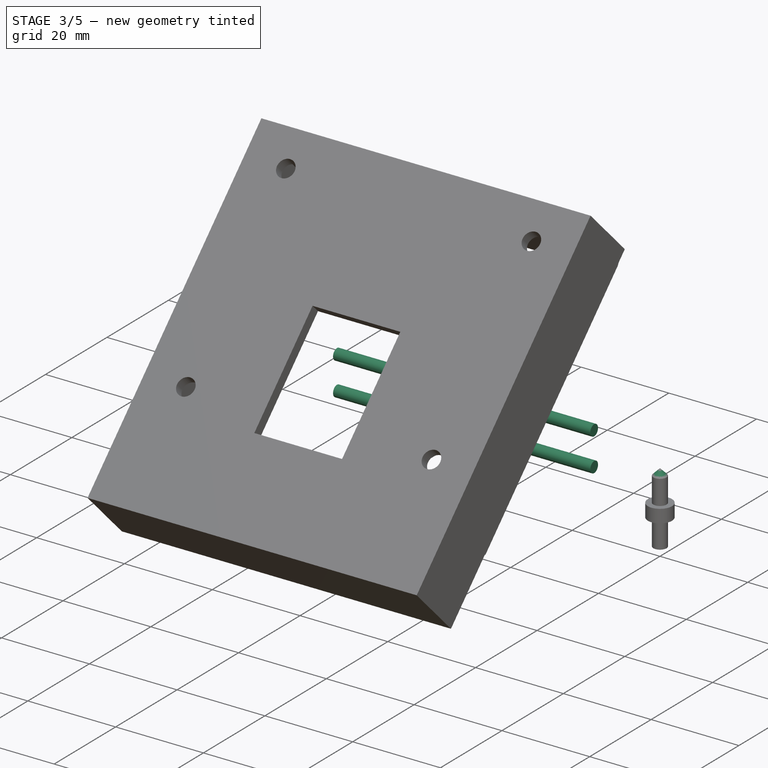
[diagram: stage 3 of 5 — iso view after this stage's code; geometry added in this stage tinted green]
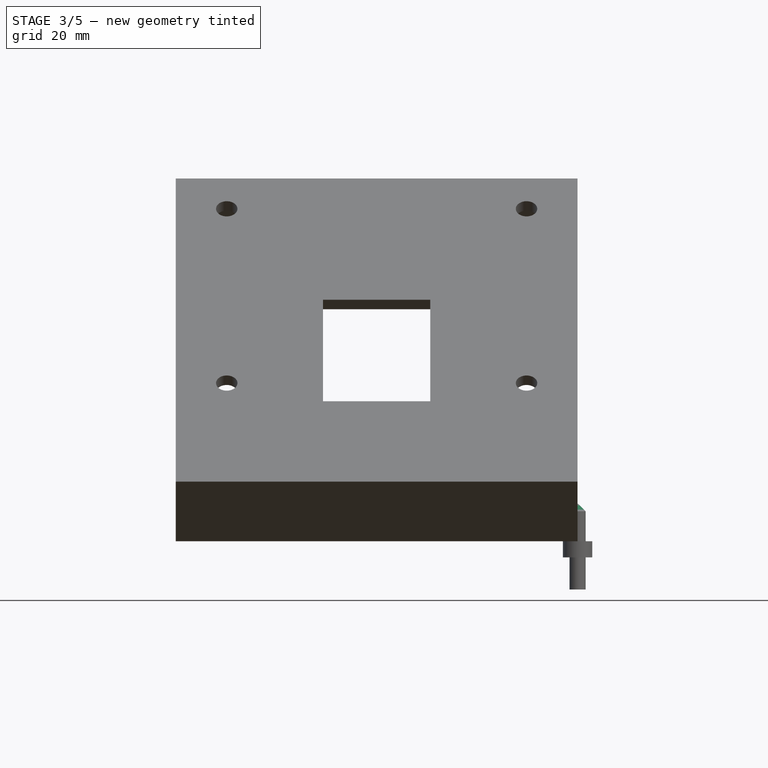
[diagram: stage 3 of 5 — front view after this stage's code; geometry added in this stage tinted green]
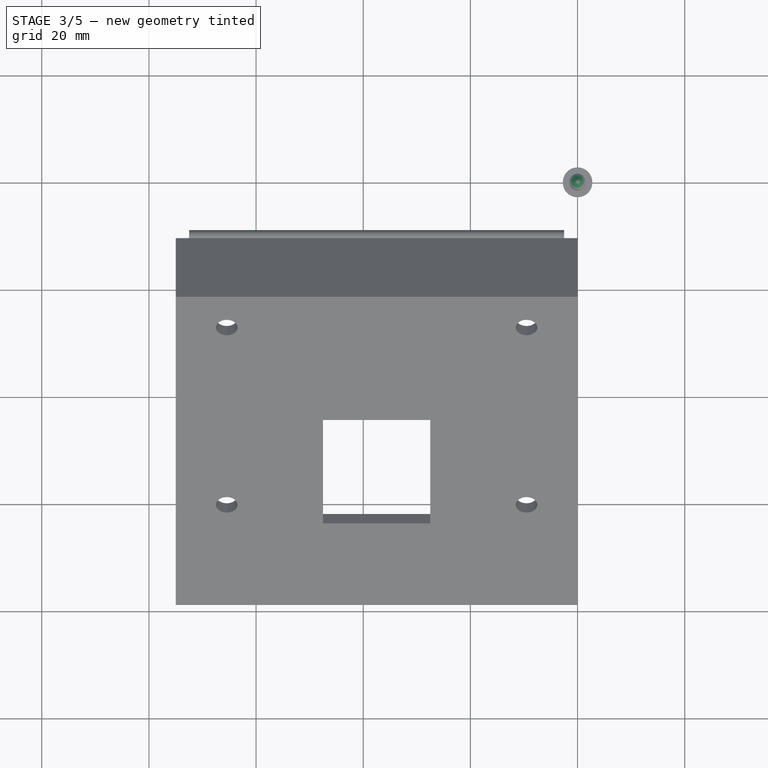
[diagram: stage 3 of 5 — top view after this stage's code; geometry added in this stage tinted green]
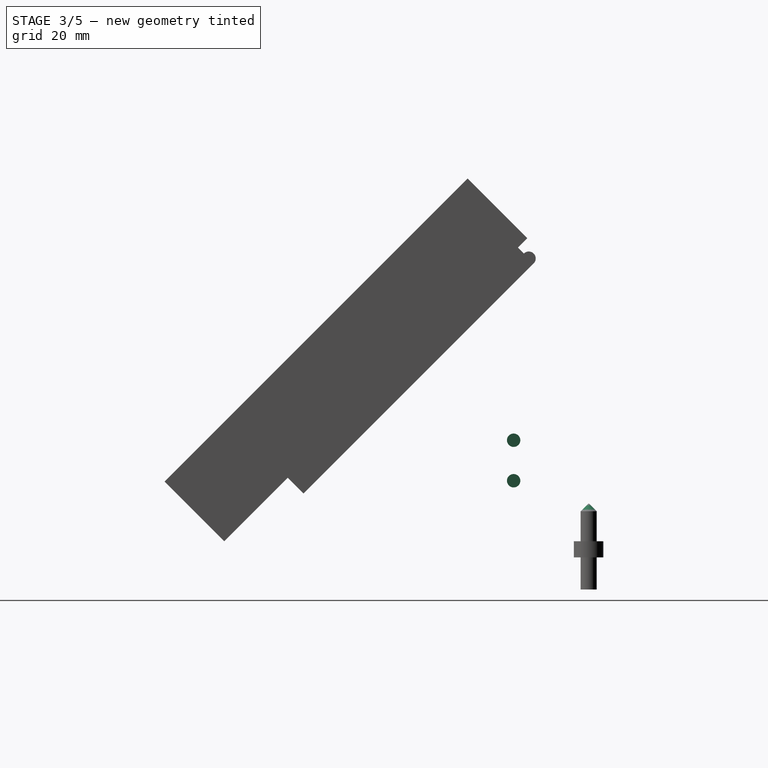
[diagram: stage 3 of 5 — right view after this stage's code; geometry added in this stage tinted green]
FEATURE [Part::Feature] Solid002  label="RUTHEX_M3x5_7"
  Placement = pos=(-11,0,0) rot=(0,0,1;0rad)
  shape: bbox 4.583 x 5.705 x 4.583 mm, 200 faces (baked)
FEATURE [App::Part] Part003  label="ZSB_RUTHEX_M3_5.7_001"
  Group = -> [Solid002]
  Origin = -> Origin006
  Placement = pos=(-15.5,1.4e-15,16.6) rot=(0,0,1;3.14159rad)
FEATURE [Part::Feature] Solid003  label="RUTHEX_M3x5_008"
  Placement = pos=(-11,0,0) rot=(0,0,1;0rad)
  shape: bbox 4.583 x 5.705 x 4.583 mm, 200 faces (baked)
FEATURE [App::Part] Part004  label="ZSB_RUTHEX_M3_5.7_002"
  Group = -> [Solid003]
  Origin = -> Origin007
  Placement = pos=(-34,3.7e-15,16.6) rot=(0,0,1;3.14159rad)
FEATURE [Part::Feature] Solid004  label="RUTHEX_M3x5_009"
  Placement = pos=(-11,0,0) rot=(0,0,1;0rad)
  shape: bbox 4.583 x 5.705 x 4.583 mm, 200 faces (baked)
FEATURE [App::Part] Part005  label="ZSB_RUTHEX_M3_5.7_003"
  Group = -> [Solid004]
  Origin = -> Origin008
  Placement = pos=(-17.5,-63.4116,7.57386) rot=(0,0.382683,0.92388;3.14159rad)
FEATURE [Part::Feature] Solid005  label="RUTHEX_M3x5_010"
  Placement = pos=(-11,0,0) rot=(0,0,1;0rad)
  shape: bbox 4.583 x 5.705 x 4.583 mm, 200 faces (baked)
FEATURE [App::Part] Part006  label="ZSB_RUTHEX_M3_5.7_004"
  Group = -> [Solid005]
  Origin = -> Origin009
  Placement = pos=(-39.5,-63.4116,7.57386) rot=(0,0.382683,0.92388;3.14159rad)
FEATURE [Sketcher::SketchObject] Sketch025
  FullyConstrained = false
  MapMode = 5
  Support = -> [XY_Plane008]
  sketch-geometry (1):
    g0: Circle CenterX=0 CenterY=0 CenterZ=0 NormalX=0 NormalY=0 NormalZ=1 AngleXU=0 Radius=1.5
  constraints (2):
    c: Coincident(g0,g-1)
    c: Diameter(g0) = 3
FEATURE [Sketcher::SketchObject] Sketch026
  FullyConstrained = false
  MapMode = 5
  Support = -> [XY_Plane008]
  sketch-geometry (7):
    g0: LineSegment StartX=0.433013 StartY=-0.75 StartZ=0 EndX=0.866025 EndY=1.25568e-11 EndZ=0
    g1: LineSegment StartX=0.866025 StartY=1.25568e-11 StartZ=0 EndX=0.433013 EndY=0.75 EndZ=0
    g2: LineSegment StartX=0.433013 StartY=0.75 StartZ=0 EndX=-0.433013 EndY=0.75 EndZ=0
    g3: LineSegment StartX=-0.433013 StartY=0.75 StartZ=0 EndX=-0.866025 EndY=2.91366e-11 EndZ=0
    g4: LineSegment StartX=-0.866025 StartY=2.91366e-11 StartZ=0 EndX=-0.433013 EndY=-0.75 EndZ=0
    g5: LineSegment StartX=-0.433013 StartY=-0.75 StartZ=0 EndX=0.433013 EndY=-0.75 EndZ=0
    g6: Circle CenterX=0 CenterY=0 CenterZ=0 NormalX=0 NormalY=0 NormalZ=1 AngleXU=0 Radius=0.866025
  constraints (16):
    c: Coincident(g0,g1)
    c: Coincident(g1,g2)
    c: Coincident(g2,g3)
    c: Coincident(g3,g4)
    c: Coincident(g4,g5)
    c: Coincident(g5,g0)
    c: Equal(g0, g1-g5) x5
    c: PointOnObject(g0,g6)
    c: PointOnObject(g1,g6)
    c: PointOnObject(g2,g6)
    c: PointOnObject(g3,g6)
    c: PointOnObject(g4,g6)
    c: PointOnObject(g5,g6)
    c: Coincident(g6,g-1)
    c: Horizontal(g2)
    c: DistanceY(g0,g1) = 1.5
FEATURE [PartDesign::Pad] Pad012
  AllowMultiFace = false
  Direction = (1,1,1)
  Length = 10
  Length2 = 100
  Profile = -> Sketch025
  Type = 0
FEATURE [PartDesign::Chamfer] Chamfer
  Angle = 45
  Base = -> Pad012 [Edge3]
  BaseFeature = -> Pad012
  ChamferType = 0
  FlipDirection = false
  Size = 1.4
  Size2 = 1
  SupportTransform = false
  UseAllEdges = false
FEATURE [PartDesign::Pocket] Pocket013
  AllowMultiFace = false
  BaseFeature = -> Chamfer
  Direction = (1,1,1)
  Length = 1.5
  Length2 = 100
  Profile = -> Sketch026
  Reversed = true
  Type = 0
FEATURE [PartDesign::Chamfer] Chamfer003
  Angle = 45
  Base = -> Pad013 [Edge3]
  BaseFeature = -> Pad013
  ChamferType = 0
  FlipDirection = false
  Size = 1.4
  Size2 = 1
  SupportTransform = false
  UseAllEdges = false
FEATURE [PartDesign::Pocket] Pocket014
  AllowMultiFace = false
  BaseFeature = -> Chamfer003
  Direction = (1,1,1)
  Length = 1.5
  Length2 = 100
  Profile = -> Sketch027
  Reversed = true
  Type = 0
FEATURE [Spreadsheet::Sheet] Spreadsheet001  label="tige"
  cells = A2=planBaseTigeposX; B2(planBaseTigeposX)==xtDistCorpBaseConnect; A3=xtDistCorpBaseConnect; B3(xtDistCorpBaseConnect)==12.13 - 6.95; C3=male; D3=8.46 (du bor à l'épaulement)-prof connection (6.95); A4=xtFemdistBaseConnect; B4(xtFemdistBaseConnect)==20.4 - 9.300000000000001; C4=femelle; D4=20.39(hors tou) 17.15 (du bord à l'épaulment connecteur); A5=tigeLong; B5(tigeLong)==<<sp>>.largeurModuleBase - xtDistCorpBaseConnect - xtFemdistBaseConnect - tigeJeu; A6=tigeJeu; B6(tigeJeu)=0.1; A7=tigePosX; B7(tigePosX)=14; A8=tigePosY; B8(tigePosY)=14.3; A9=tigeDiam; B9(tigeDiam)=2.5; A10=xtEcartBroches; B10(xtEcartBroches)=7.56
FEATURE [PartDesign::Plane] DatumPlane012  label="planBaseTige"
  AttachmentOffset = pos=(0,0,-5.18) rot=(0,0,1;0rad)
  Length = 60
  MapMode = 5
  Placement = pos=(-5.18,1.2e-15,-1.2e-15) rot=(0.57735,0.57735,0.57735;2.0944rad)
  ResizeMode = 0
  Support = -> [YZ_Plane012]
  Width = 60
  expr: .AttachmentOffset.Base.z = -<<tige>>.planBaseTigeposX
FEATURE [Sketcher::SketchObject] Sketch032  label="sk_tiges"
  FullyConstrained = true
  MapMode = 5
  Placement = pos=(-5.18,1.2e-15,-1.2e-15) rot=(0.57735,0.57735,0.57735;2.0944rad)
  Support = -> [DatumPlane012]
  expr: Constraints[0] = <<tige>>.tigeDiam
  expr: Constraints[1] = <<tige>>.tigePosY
  expr: Constraints[2] = <<tige>>.tigePosX
  sketch-geometry (1):
    g0: Circle CenterX=-14 CenterY=14.3 CenterZ=0 NormalX=0 NormalY=0 NormalZ=1 AngleXU=0 Radius=1.25
  constraints (3):
    c: Diameter(g0) = 2.5
    c: DistanceY(g-1,g0) = 14.3
    c: DistanceX(g0,g-1) = 14
FEATURE [PartDesign::Pad] Pad017  label="tigeBasse"
  AllowMultiFace = false
  Direction = (1,-1e-16,1e-16)
  Length = 58.62
  Length2 = 100
  Placement = pos=(-5.18,1e-15,-1e-15) rot=(0.57735,0.57735,0.57735;2.0944rad)
  Profile = -> Sketch032
  Reversed = true
  Type = 0
  expr: Length = <<tige>>.tigeLong
FEATURE [PartDesign::Body] Body007  label="tigeLaiton"
  Group = -> [DatumPlane012,Sketch032,Pad017]
  Origin = -> Origin016
  Tip = -> Pad017
FEATURE [PartDesign::Plane] DatumPlane013  label="planTige2"
  AttachmentOffset = pos=(0,0,-5.18) rot=(0,0,1;0rad)
  Length = 60
  MapMode = 5
  Placement = pos=(-5.18,1.2e-15,-1.2e-15) rot=(0.57735,0.57735,0.57735;2.0944rad)
  ResizeMode = 0
  Support = -> [YZ_Plane014]
  Width = 60
  expr: .AttachmentOffset.Base.z = -<<tige>>.planBaseTigeposX
FEATURE [Sketcher::SketchObject] Sketch033  label="sk_tige2"
  FullyConstrained = true
  MapMode = 5
  Placement = pos=(-5.18,1.2e-15,-1.2e-15) rot=(0.57735,0.57735,0.57735;2.0944rad)
  Support = -> [DatumPlane013]
  expr: Constraints[0] = <<tige>>.tigeDiam
  expr: Constraints[1] = <<tige>>.tigePosX
  expr: Constraints[2] = <<tige>>.tigePosY + <<tige>>.xtEcartBroches
  sketch-geometry (1):
    g0: Circle CenterX=-14 CenterY=21.86 CenterZ=0 NormalX=0 NormalY=0 NormalZ=1 AngleXU=0 Radius=1.25
  constraints (3):
    c: Diameter(g0) = 2.5
    c: DistanceX(g0,g-1) = 14
    c: DistanceY(g-1,g0) = 21.86
FEATURE [PartDesign::Pad] Pad018
  AllowMultiFace = false
  Direction = (1,-1e-16,1e-16)
  Length = 58.62
  Length2 = 100
  Placement = pos=(-5.18,1e-15,-1e-15) rot=(0.57735,0.57735,0.57735;2.0944rad)
  Profile = -> Sketch033
  Reversed = true
  Type = 0
  expr: Length = <<tige>>.tigeLong
FEATURE [PartDesign::Chamfer] Chamfer
  Angle = 45
  Base = -> Pocket009 [Edge77,Edge7]
  BaseFeature = -> Pocket009
  ChamferType = 0
  FlipDirection = false
  Size = 1
  Size2 = 1
  SupportTransform = false
  UseAllEdges = false
FEATURE [PartDesign::Chamfer] Chamfer001
  Angle = 45
  Base = -> Chamfer [Edge79,Edge116,Edge93,Edge66]
  BaseFeature = -> Chamfer
  ChamferType = 0
  FlipDirection = false
  Size = 1
  Size2 = 1
  SupportTransform = false
  UseAllEdges = false
FEATURE [PartDesign::Chamfer] Chamfer002
  Angle = 45
  Base = -> Chamfer001 [Edge63,Edge49]
  BaseFeature = -> Chamfer001
  ChamferType = 0
  FlipDirection = false
  Size = 2
  Size2 = 1
  SupportTransform = false
  UseAllEdges = false
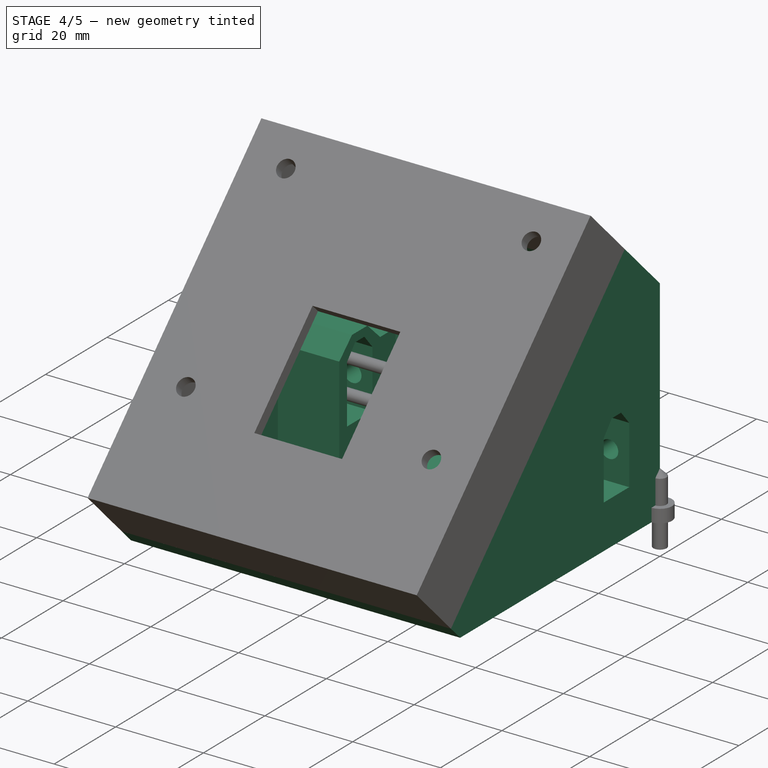
[diagram: stage 4 of 5 — iso view after this stage's code; geometry added in this stage tinted green]
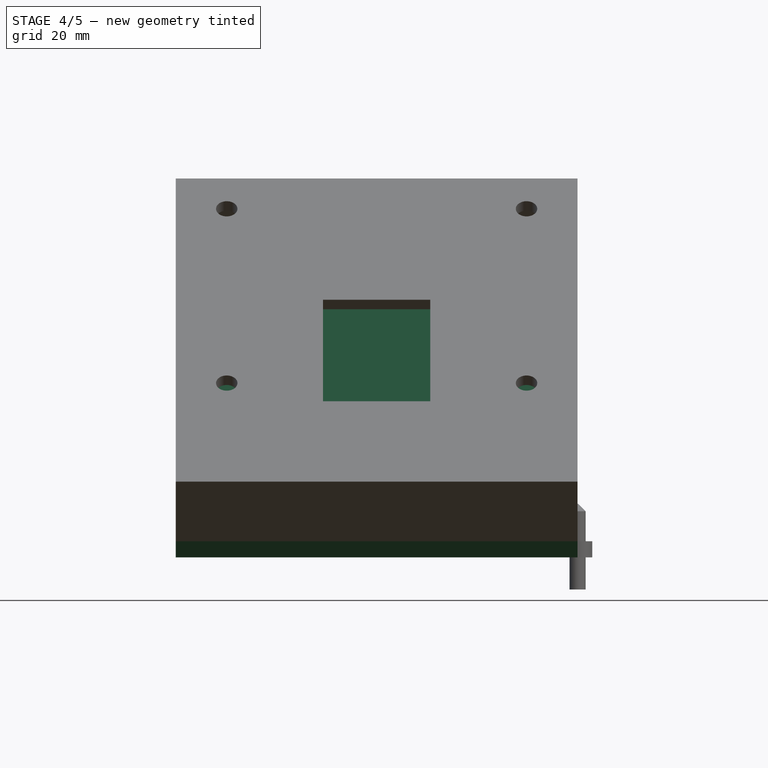
[diagram: stage 4 of 5 — front view after this stage's code; geometry added in this stage tinted green]
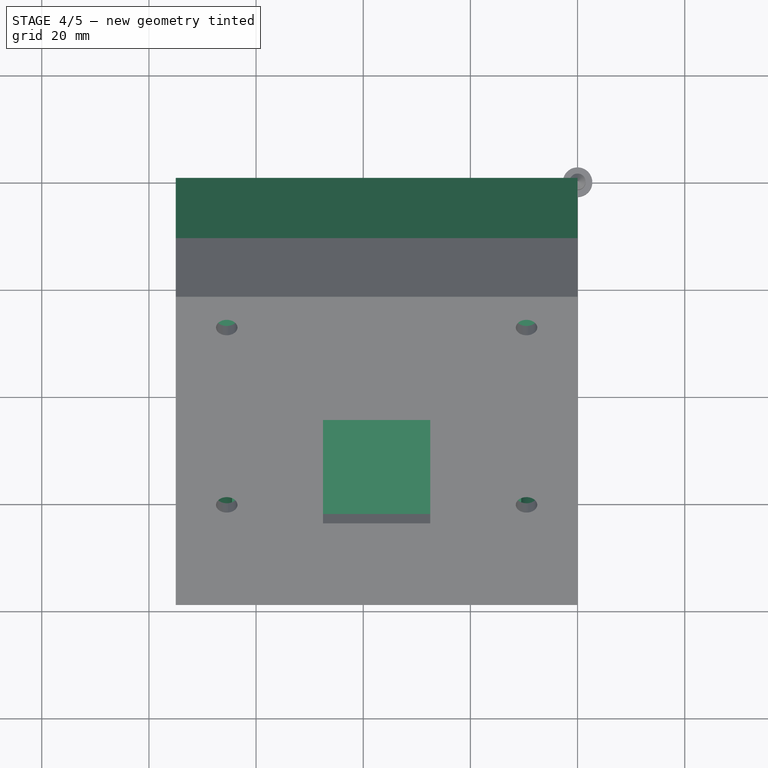
[diagram: stage 4 of 5 — top view after this stage's code; geometry added in this stage tinted green]
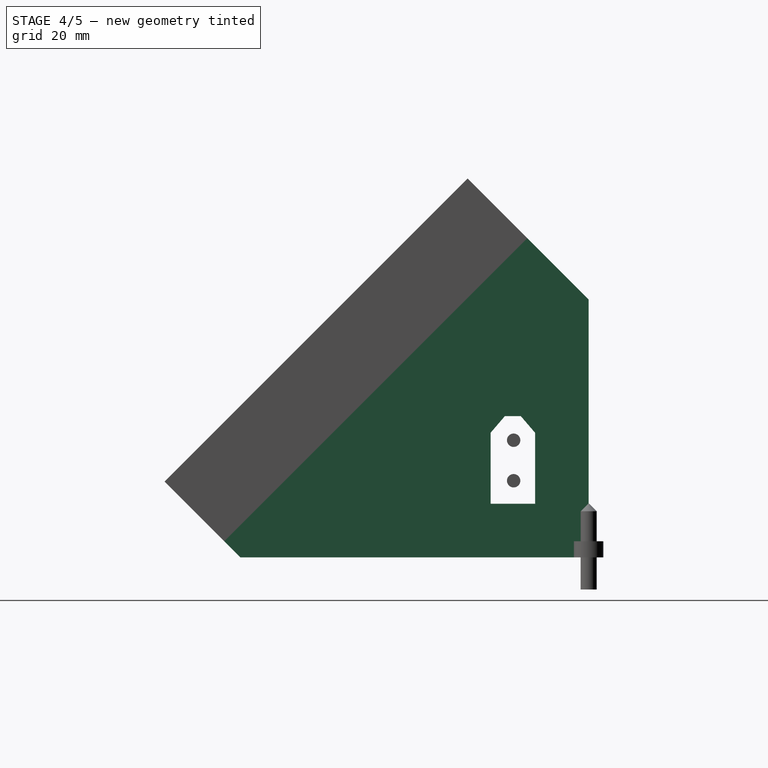
[diagram: stage 4 of 5 — right view after this stage's code; geometry added in this stage tinted green]
FEATURE [Part::FeaturePython] Slice_child0  label="Slice.0"  # WARN: FeaturePython — macro-defined, semantics opaque (R4)
  Base = -> Slice
  FilterType = 1
  Invert = false
  OverrideMaxVal = 0
  WindowFrom = 80
  WindowTo = 100
  items = 0
FEATURE [App::DocumentObjectGroup] GrExplode_Slice  label="Exploded Slice"
  Group = -> [Slice_child0,Slice_child1]
FEATURE [PartDesign::FeatureBase] Clone
  BaseFeature = -> Slice_child0
FEATURE [PartDesign::Thickness] Thickness
  Base = -> Clone [Face7]
  BaseFeature = -> Clone
  Intersection = false
  Join = 0
  Mode = 0
  Reversed = true
  SupportTransform = false
  Value = 2.5
  expr: Value = <<sp>>.epaisseurParois
FEATURE [PartDesign::Plane] DatumPlane001  label="planXt"
  AttachmentOffset = pos=(0,0,-2.5) rot=(0,0,1;0rad)
  Length = 110.737
  MapMode = 5
  Placement = pos=(-2.5,6e-16,-6e-16) rot=(0.57735,0.57735,0.57735;2.0944rad)
  ResizeMode = 0
  Support = -> [YZ_Plane002]
  Width = 102.305
  expr: .AttachmentOffset.Base.z = -<<sp>>.epaisseurParois
FEATURE [Sketcher::SketchObject] Sketch002  label="sk_renfortXt"
  FullyConstrained = true
  MapMode = 5
  Placement = pos=(-2.5,6e-16,-6e-16) rot=(0.57735,0.57735,0.57735;2.0944rad)
  Support = -> [DatumPlane001]
  expr: .Constraints.dist = <<sp>>.xt60distanceAngleBord
  expr: .Constraints.epRf = <<sp>>.xt60epRenfort
  expr: Constraints[13] = <<sp>>.xt60largeurFetiere
  expr: Constraints[14] = <<sp>>.xt60hauteur
  expr: Constraints[15] = <<sp>>.xt60hauteurToit
  expr: Constraints[16] = <<sp>>.xt60base
  expr: Constraints[18] = .Constraints.dist
  expr: Constraints[31] = <<sp>>.epaisseurParois
  expr: Constraints[32] = .Constraints.epRf
  expr: Constraints[34] = .Constraints.epRf
  expr: Constraints[45] = <<sp>>.epaisseurParois
  sketch-geometry (17):
    g0: LineSegment StartX=-18.3 StartY=10 StartZ=0 EndX=-18.3 EndY=23.25 EndZ=0
    g1: LineSegment StartX=-18.3 StartY=23.25 StartZ=0 EndX=-15.65 EndY=25.75 EndZ=0
    g2: LineSegment StartX=-15.65 StartY=25.75 StartZ=0 EndX=-12.65 EndY=25.75 EndZ=0
    g3: LineSegment StartX=-12.65 StartY=25.75 StartZ=0 EndX=-10 EndY=23.25 EndZ=0
    g4: LineSegment StartX=-10 StartY=23.25 StartZ=0 EndX=-10 EndY=10 EndZ=0
    g5: LineSegment StartX=-10 StartY=10 StartZ=0 EndX=-18.3 EndY=10 EndZ=0
    g6: LineSegment StartX=-14.15 StartY=10 StartZ=0 EndX=-14.15 EndY=25.75 EndZ=0
    g7: LineSegment StartX=-16.6431 StartY=28.25 StartZ=0 EndX=-20.8 EndY=24.3284 EndZ=0
    g8: LineSegment StartX=-20.8 StartY=24.3284 StartZ=0 EndX=-20.8 EndY=2.5 EndZ=0
    g9: LineSegment StartX=-20.8 StartY=2.5 StartZ=0 EndX=-7.5 EndY=2.5 EndZ=0
    g10: LineSegment StartX=-7.5 StartY=2.5 StartZ=0 EndX=-7.5 EndY=24.3284 EndZ=0
    g11: LineSegment StartX=-7.5 StartY=24.3284 StartZ=0 EndX=-11.6569 EndY=28.25 EndZ=0
    g12: LineSegment StartX=-11.6569 StartY=28.25 StartZ=0 EndX=-16.6431 EndY=28.25 EndZ=0
    g13: LineSegment StartX=-7.5 StartY=24.3284 StartZ=0 EndX=-2.5 EndY=24.3284 EndZ=0
    g14: LineSegment StartX=-2.5 StartY=24.3284 StartZ=0 EndX=-2.5 EndY=2.5 EndZ=0
    g15: LineSegment StartX=-2.5 StartY=2.5 StartZ=0 EndX=-7.5 EndY=2.5 EndZ=0
    g16: LineSegment StartX=-7.5 StartY=2.5 StartZ=0 EndX=-7.5 EndY=24.3284 EndZ=0
  constraints (46):
    c: Vertical(g0)
    c: Coincident(g0,g1)
    c: Coincident(g1,g2)
    c: Horizontal(g2)
    c: Coincident(g2,g3)
    c: Coincident(g3,g4)
    c: Vertical(g4)
    c: Coincident(g4,g5)
    c: Coincident(g5,g0)
    c: Horizontal(g5)
    c: Symmetric(g1,g2,g6)
    c: Equal(g0,g4)
    c: Symmetric(g0,g4,g6)
    c: DistanceX(g2,g2) = 3
    c: DistanceY(g4,g4) = 13.25
    c: DistanceY(g3,g2) = 2.5
    c: DistanceX(g5,g5) = 8.3
    c: DistanceX(g4,g-1) = 10  'dist'
    c: DistanceY(g-1,g4) = 10
    c: Coincident(g7,g8)
    c: Vertical(g8)
    c: Coincident(g8,g9)
    c: Horizontal(g9)
    c: Coincident(g9,g10)
    c: Coincident(g10,g11)
    c: Coincident(g11,g12)
    c: Coincident(g12,g7)
    c: Symmetric(g7,g10,g6)
    c: Symmetric(g7,g11,g6)
    c: Symmetric(g8,g9,g6)
    c: DistanceX(g8,g0) = 2.5  'epRf'
    c: DistanceY(g-1,g9) = 2.5
    c: Distance(g7,g1) = 2.5
    c: Parallel(g1,g7)
    c: DistanceY(g2,g11) = 2.5
    c: Coincident(g13,g14)
    c: Coincident(g14,g15)
    c: Coincident(g15,g16)
    c: Coincident(g16,g13)
    c: Horizontal(g13)
    c: Horizontal(g15)
    c: Vertical(g14)
    c: Vertical(g16)
    c: Coincident(g13,g11)
    c: Horizontal(g14,g9)
    c: DistanceX(g14,g-1) = 2.5
FEATURE [PartDesign::Pad] Pad001  label="renfortXt"
  AllowMultiFace = false
  BaseFeature = -> Thickness
  Direction = (1,-1e-16,1e-16)
  Length = 70
  Length2 = 100
  Profile = -> Sketch002
  Reversed = true
  Type = 0
  expr: Length = <<sp>>.largeurModuleBase - 2 * <<sp>>.epaisseurParois
FEATURE [Sketcher::SketchObject] Sketch003  label="sk_trouXt"
  FullyConstrained = true
  MapMode = 5
  Placement = pos=(0,0,0) rot=(0.57735,0.57735,0.57735;2.0944rad)
  Support = -> [YZ_Plane002]
  expr: .Constraints.dist = <<sp>>.xt60distanceAngleBord
  expr: Constraints[13] = <<sp>>.xt60base
  expr: Constraints[14] = <<sp>>.xt60hauteur
  expr: Constraints[15] = <<sp>>.xt60hauteurToit + <<sp>>.xtJeu
  expr: Constraints[16] = <<sp>>.xt60largeurFetiere
  expr: Constraints[18] = .Constraints.dist
  sketch-geometry (7):
    g0: LineSegment StartX=-18.3 StartY=10 StartZ=0 EndX=-18.3 EndY=23.25 EndZ=0
    g1: LineSegment StartX=-18.3 StartY=23.25 StartZ=0 EndX=-15.65 EndY=26.35 EndZ=0
    g2: LineSegment StartX=-15.65 StartY=26.35 StartZ=0 EndX=-12.65 EndY=26.35 EndZ=0
    g3: LineSegment StartX=-12.65 StartY=26.35 StartZ=0 EndX=-10 EndY=23.25 EndZ=0
    g4: LineSegment StartX=-10 StartY=23.25 StartZ=0 EndX=-10 EndY=10 EndZ=0
    g5: LineSegment StartX=-10 StartY=10 StartZ=0 EndX=-18.3 EndY=10 EndZ=0
    g6: LineSegment StartX=-14.15 StartY=10 StartZ=0 EndX=-14.15 EndY=26.35 EndZ=0
  constraints (19):
    c: Vertical(g0)
    c: Coincident(g0,g1)
    c: Coincident(g1,g2)
    c: Horizontal(g2)
    c: Coincident(g2,g3)
    c: Coincident(g3,g4)
    c: Coincident(g4,g5)
    c: Coincident(g5,g0)
    c: Horizontal(g5)
    c: Symmetric(g1,g2,g6)
    c: Symmetric(g0,g3,g6)
    c: Vertical(g6)
    c: Symmetric(g0,g4,g6)
    c: DistanceX(g5,g5) = 8.3
    c: DistanceY(g4,g4) = 13.25
    c: DistanceY(g3,g2) = 3.1
    c: DistanceX(g2,g2) = 3
    c: DistanceX(g4,g-1) = 10  'dist'
    c: DistanceY(g-1,g4) = 10
FEATURE [PartDesign::Pocket] Pocket
  AllowMultiFace = false
  BaseFeature = -> Pad001
  Direction = (-1,2e-16,-3e-16)
  Length = 75
  Length2 = 100
  Profile = -> Sketch003
  Type = 0
  expr: Length = <<sp>>.largeurModuleBase
FEATURE [PartDesign::Plane] DatumPlane002  label="planDecoupeRenfortXt"
  AttachmentOffset = pos=(0,0,2.5) rot=(0,0,1;0rad)
  Length = 118.392
  MapMode = 5
  Placement = pos=(0,-2.5,-6e-16) rot=(1,0,0;1.5708rad)
  ResizeMode = 0
  Support = -> [XZ_Plane002]
  Width = 102.961
  expr: .AttachmentOffset.Base.z = <<sp>>.epaisseurParois
FEATURE [Sketcher::SketchObject] Sketch004  label="sk_decoupRenfXt"
  FullyConstrained = true
  MapMode = 5
  Placement = pos=(0,-2.5,-6e-16) rot=(1,0,0;1.5708rad)
  Support = -> [DatumPlane002]
  expr: Constraints[10] = <<sp>>.xt60LongueurRenfortPetit + <<sp>>.epaisseurParois
  expr: Constraints[11] = <<sp>>.largeurModuleBase - (<<sp>>.xt60longueurRenfortGrand + <<sp>>.epaisseurParois)
  expr: Constraints[8] = <<sp>>.epaisseurParois
  expr: Constraints[9] = <<sp>>.xt60distanceAngleBord + <<sp>>.xt60hauteur + <<sp>>.xt60hauteurToit + <<sp>>.xt60epRenfort
  sketch-geometry (4):
    g0: LineSegment StartX=-58.5 StartY=28.25 StartZ=0 EndX=-8.5 EndY=28.25 EndZ=0
    g1: LineSegment StartX=-8.5 StartY=28.25 StartZ=0 EndX=-8.5 EndY=2.5 EndZ=0
    g2: LineSegment StartX=-8.5 StartY=2.5 StartZ=0 EndX=-58.5 EndY=2.5 EndZ=0
    g3: LineSegment StartX=-58.5 StartY=2.5 StartZ=0 EndX=-58.5 EndY=28.25 EndZ=0
  constraints (12):
    c: Coincident(g0,g1)
    c: Coincident(g1,g2)
    c: Coincident(g2,g3)
    c: Coincident(g3,g0)
    c: Horizontal(g0)
    c: Horizontal(g2)
    c: Vertical(g1)
    c: Vertical(g3)
    c: DistanceY(g-1,g1) = 2.5
    c: DistanceY(g-1,g0) = 28.25
    c: DistanceX(g1,g-1) = 8.5
    c: DistanceX(g2,g-1) = 58.5
FEATURE [PartDesign::Pocket] Pocket001  label="decoupeRenfXt"
  AllowMultiFace = false
  BaseFeature = -> Pocket
  Direction = (0,1,2e-16)
  Length = 23.3
  Length2 = 100
  Profile = -> Sketch004
  Reversed = true
  Type = 0
  expr: Length = <<sp>>.xt60distanceAngleBord + <<sp>>.xt60base + 2 * <<sp>>.xt60epRenfort
FEATURE [Sketcher::SketchObject] Sketch005  label="xt60PercagePostMale"
  FullyConstrained = true
  MapMode = 5
  Placement = pos=(0,0,0) rot=(1,0,0;1.5708rad)
  Support = -> [XZ_Plane002]
  expr: Constraints[0] = <<sp>>.insertDiamPercage
  expr: Constraints[1] = <<sp>>.insertDistanceTrouBordMale
  expr: Constraints[2] = <<sp>>.insertHauteur
  sketch-geometry (1):
    g0: Circle CenterX=-4.5 CenterY=16.625 CenterZ=0 NormalX=0 NormalY=0 NormalZ=1 AngleXU=0 Radius=2
  constraints (3):
    c: Diameter(g0) = 4
    c: DistanceX(g0,g-1) = 4.5
    c: DistanceY(g-1,g0) = 16.625
FEATURE [Part::Feature] Part__Feature  label="XT60FemaleConnector"
  shape: bbox 20.5 x 7.501 x 16.55 mm, 417 faces, 3 solids (baked)
FEATURE [App::Part] Part001  label="xt60fem"
  Group = -> [Part__Feature]
  Origin = -> Origin004
  Placement = pos=(-27,-14,16.7) rot=(1,0,0;3.14159rad)
FEATURE [Part::Feature] Part__Feature001  label="XT60MaleConnector"
  shape: bbox 20.2 x 7.5 x 16.55 mm, 393 faces, 3 solids (baked)
FEATURE [App::Part] Part002  label="xt60Male"
  Group = -> [Part__Feature001]
  Origin = -> Origin005
  Placement = pos=(0.4,-13.95,16.75) rot=(0,1,0;3.14159rad)
FEATURE [PartDesign::Pocket] Pocket002  label="insertXtMale"
  AllowMultiFace = false
  BaseFeature = -> Pocket001
  Direction = (0,1,2e-16)
  Length = 10
  Length2 = 100
  Profile = -> Sketch005
  Reversed = true
  Type = 0
  expr: Length = <<sp>>.insertProfondeurPercage
FEATURE [Sketcher::SketchObject] Sketch006  label="xt60PercagePostFem"
  FullyConstrained = true
  MapMode = 5
  Placement = pos=(0,0,0) rot=(1,0,0;1.5708rad)
  Support = -> [XZ_Plane002]
  expr: Constraints[0] = <<sp>>.insertDiamPercage
  expr: Constraints[1] = <<sp>>.insertDistanceTrouBordFem
  expr: Constraints[2] = <<sp>>.insertHauteur
  sketch-geometry (1):
    g0: Circle CenterX=-63 CenterY=16.625 CenterZ=0 NormalX=0 NormalY=0 NormalZ=1 AngleXU=0 Radius=2
  constraints (3):
    c: Diameter(g0) = 4
    c: DistanceX(g0,g-1) = 63
    c: DistanceY(g-1,g0) = 16.625
FEATURE [PartDesign::Pocket] Pocket003  label="insertXt60Fem"
  AllowMultiFace = false
  BaseFeature = -> Pocket002
  Direction = (0,1,2e-16)
  Length = 10
  Length2 = 100
  Profile = -> Sketch006
  Reversed = true
  Type = 0
  expr: Length = <<sp>>.insertProfondeurPercage
FEATURE [PartDesign::Plane] DatumPlane003
  AttachmentOffset = pos=(0,0,2.5) rot=(0,0,1;0rad)
  Length = 119.287
  MapMode = 2
  Placement = pos=(0,0,2.5) rot=(0,0,1;0rad)
  ResizeMode = 0
  Support = -> [XY_Plane002]
  Width = 112.287
  expr: .AttachmentOffset.Base.z = <<sp>>.epaisseurParois
FEATURE [PartDesign::Plane] DatumPlane004  label="planTrancheur"
  AttachmentOffset = pos=(0,0,71) rot=(-1,0,0;0.785398rad)
  Length = 122.411
  MapMode = 5
  Placement = pos=(0,-71,-1.58e-14) rot=(1,0,0;0.785398rad)
  ResizeMode = 0
  Support = -> [XZ_Plane002]
  Width = 147.971
  expr: .AttachmentOffset.Base.z = <<sp>>.planTrancheur
FEATURE [Sketcher::SketchObject] Sketch008
  FullyConstrained = true
  MapMode = 5
  Placement = pos=(0,-71,-2.13e-14) rot=(1,0,0;0.785398rad)
  Support = -> [DatumPlane004]
  expr: .Constraints.dist = <<sp>>.epaisseurParois
  expr: Constraints[13] = <<sp>>.epaisseurParois
  expr: Constraints[16] = <<sp>>.insertDiamPercage / 2 + <<sp>>.insertFAVMargeDist
  expr: Constraints[1] = <<sp>>.insertFavDistAuZeroDuPLan
  expr: Constraints[21] = <<sp>>.insertFAVDistBord
  expr: Constraints[22] = <<sp>>.largeurModuleBase - <<sp>>.epaisseurParois
  sketch-geometry (7):
    g0: LineSegment StartX=-2.5 StartY=4.24264 StartZ=0 EndX=-72.5 EndY=4.24264 EndZ=0
    g1: LineSegment StartX=-6.5 StartY=14.7426 StartZ=0 EndX=-2.5 EndY=14.7426 EndZ=0
    g2: LineSegment StartX=-2.5 StartY=14.7426 StartZ=0 EndX=-2.5 EndY=6.74264 EndZ=0
    g3: LineSegment StartX=-2.5 StartY=6.74264 StartZ=0 EndX=-10.5 EndY=6.74264 EndZ=0
    g4: LineSegment StartX=-10.5 StartY=6.74264 StartZ=0 EndX=-10.5 EndY=10.7426 EndZ=0
    g5: ArcOfCircle CenterX=-6.5 CenterY=10.7426 CenterZ=0 NormalX=0 NormalY=0 NormalZ=1 AngleXU=0 Radius=4 StartAngle=1.5708 EndAngle=3.14159
    g6: LineSegment StartX=-6.5 StartY=10.7426 StartZ=0 EndX=-6.5 EndY=6.74264 EndZ=0
  constraints (23):
    c: Horizontal(g0)
    c: DistanceY(g-1,g0) = 4.24264
    c: DistanceX(g0,g-1) = 2.5  'dist'
    c: Horizontal(g1)
    c: Coincident(g1,g2)
    c: Vertical(g2)
    c: Coincident(g2,g3)
    c: Horizontal(g3)
    c: Coincident(g3,g4)
    c: Vertical(g4)
    c: Vertical(g2,g0)
    c: Equal(g3,g2)
    c: Equal(g4,g1)
    c: DistanceY(g0,g2) = 2.5
    c: Coincident(g5,g4)
    c: Coincident(g5,g1)
    c: DistanceX(g5,g2) = 4
    c: Coincident(g6,g5)
    c: PointOnObject(g6,g3)
    c: Vertical(g6)
    c: Vertical(g5,g1)
    c: DistanceX(g3,g3) = 8
    c: DistanceX(g0,g-1) = 72.5
FEATURE [PartDesign::Pad] Pad003  label="padTrouFAVDroite"
  AllowMultiFace = false
  BaseFeature = -> Pocket003
  Direction = (0,-0.707107,0.707107)
  Length = 10
  Length2 = 100
  Profile = -> Sketch008
  Reversed = true
  Type = 3
  UpToFace = -> DatumPlane003
FEATURE [Sketcher::SketchObject] Sketch009
  FullyConstrained = true
  MapMode = 5
  Placement = pos=(0,-71,-2.13e-14) rot=(1,0,0;0.785398rad)
  Support = -> [DatumPlane004]
  expr: .Constraints.larg = <<sp>>.insertFAVDistBord
  expr: Constraints[11] = .Constraints.larg / 2
  expr: Constraints[12] = <<sp>>.largeurModuleBase
  expr: Constraints[13] = <<sp>>.insertFavDistAuZeroDuPLan
  expr: Constraints[14] = <<sp>>.epaisseurParois
  expr: Constraints[15] = <<sp>>.epaisseurParois
  expr: Constraints[8] = .Constraints.larg
  sketch-geometry (6):
    g0: LineSegment StartX=-72.5 StartY=6.74264 StartZ=0 EndX=-64.5 EndY=6.74264 EndZ=0
    g1: LineSegment StartX=-64.5 StartY=6.74264 StartZ=0 EndX=-64.5 EndY=10.7426 EndZ=0
    g2: LineSegment StartX=-68.5 StartY=14.7426 StartZ=0 EndX=-72.5 EndY=14.7426 EndZ=0
    g3: LineSegment StartX=-72.5 StartY=14.7426 StartZ=0 EndX=-72.5 EndY=6.74264 EndZ=0
    g4: ArcOfCircle CenterX=-68.5 CenterY=10.7426 CenterZ=0 NormalX=0 NormalY=0 NormalZ=1 AngleXU=0 Radius=4 StartAngle=0 EndAngle=1.5708
    g5: GeomPoint X=-75 Y=4.24264 Z=0
  constraints (16):
    c: Coincident(g0,g1)
    c: Coincident(g2,g3)
    c: Coincident(g3,g0)
    c: Horizontal(g0)
    c: Horizontal(g2)
    c: Vertical(g1)
    c: Vertical(g3)
    c: DistanceX(g0,g0) = 8  'larg'
    c: DistanceY(g3,g3) = 8
    c: Tangent(g2,g4) = -1.5708
    c: Tangent(g1,g4) = -1.5708
    c: DistanceX(g0,g4) = 4
    c: DistanceX(g5,g-1) = 75
    c: DistanceY(g-1,g5) = 4.24264
    c: DistanceX(g5,g0) = 2.5
    c: DistanceY(g5,g0) = 2.5
FEATURE [PartDesign::Pad] Pad004  label="padTrouFavGauche"
  AllowMultiFace = false
  BaseFeature = -> Pad003
  Direction = (0,-0.707107,0.707107)
  Length = 10
  Length2 = 100
  Profile = -> Sketch009
  Type = 3
  UpToFace = -> DatumPlane003 [Plane]
FEATURE [Sketcher::SketchObject] Sketch040
  FullyConstrained = true
  MapMode = 5
  Placement = pos=(0,-93.2843,-2.84e-14) rot=(1,0,0;0.785398rad)
  Support = -> [DatumPlane011]
  expr: Constraints[12] = <<favTrousSp>>.planAdap
  expr: Constraints[8] = <<favTrousSp>>.passCableLarg
  expr: Constraints[9] = <<favTrousSp>>.passCableLong
  sketch-geometry (5):
    g0: LineSegment StartX=-47.5 StartY=68 StartZ=0 EndX=-27.5 EndY=68 EndZ=0
    g1: LineSegment StartX=-27.5 StartY=68 StartZ=0 EndX=-27.5 EndY=41.2 EndZ=0
    g2: LineSegment StartX=-27.5 StartY=41.2 StartZ=0 EndX=-47.5 EndY=41.2 EndZ=0
    g3: LineSegment StartX=-47.5 StartY=41.2 StartZ=0 EndX=-47.5 EndY=68 EndZ=0
    g4: GeomPoint X=-37.5 Y=41.2 Z=0
  constraints (13):
    c: Coincident(g0,g1)
    c: Coincident(g1,g2)
    c: Coincident(g2,g3)
    c: Coincident(g3,g0)
    c: Horizontal(g0)
    c: Horizontal(g2)
    c: Vertical(g1)
    c: Vertical(g3)
    c: DistanceX(g2,g1) = 20
    c: DistanceY(g1,g0) = 26.8
    c: DistanceY(g-1,g1) = 41.2
    c: Symmetric(g2,g1,g4)
    c: DistanceX(g4,g-1) = 37.5
FEATURE [PartDesign::Pocket] Pocket019  label="passageCable"
  BaseFeature = -> Pocket018
  Direction = (0,0.707107,-0.707107)
  Length = 5
  Length2 = 5
  Profile = -> Sketch040
  ReferenceAxis = -> Sketch040 [N_Axis]
  Type = 1
FEATURE [PartDesign::Body] Body002  label="faceAvant"
  BaseFeature = -> Slice_child1
  Group = -> [Clone001,Thickness001,DatumPlane007,Sketch016,Pad005,Sketch017,Pad006,Sketch018,Pocket010,DatumPlane011,Sketch030,Pad014,Pad015,Sketch031,Pad016,Sketch039,Pocket018,Sketch040,Pocket019]
  Origin = -> Origin003
  Tip = -> Pocket019
FEATURE [App::Part] Part014  label="BaseModule"
  Group = -> [Part,Spreadsheet,Slice_child1,Slice,Slice_child0,DatumPlane,Sketch,Pad,GrExplode_Slice,Body001,Body002,LinkGroup]
  Origin = -> Origin025
FEATURE [App::Link] Link003  label="visM3x6_001"
  LinkedObject = -> <external visTHCM3x6.FCStd>#Part
FEATURE [App::Link] Link004  label="insertM3_001"
  LinkPlacement = pos=(11,1.58548e-06,-2.7) rot=(-1,0,0;1.5708rad)
  LinkedObject = -> <external ruthex.FCStd>#Part
  Placement = pos=(11,1.58548e-06,-2.7) rot=(-1,0,0;1.5708rad)
FEATURE [App::Part] Part015  label="visInsertModul_001"
  Group = -> [Link003,Link004]
  Origin = -> Origin026
  Placement = pos=(-9.4,-26.4458,63.3568) rot=(1,0,0;3.92699rad)
FEATURE [App::Link] Link005  label="visInsertModul_002"
  LinkPlacement = pos=(-65.4,-26.3751,63.2861) rot=(1,0,0;3.92699rad)
  LinkedObject = -> Part015
  Placement = pos=(-65.4,-26.3751,63.2861) rot=(1,0,0;3.92699rad)
FEATURE [App::Link] Link006  label="visInsertModul_003"
  LinkPlacement = pos=(-9.5,-58.902,30.7592) rot=(1,0,0;3.92699rad)
  LinkedObject = -> Part015
  Placement = pos=(-9.5,-58.902,30.7592) rot=(1,0,0;3.92699rad)
FEATURE [App::Link] Link007  label="visInsertModul_004"
  LinkPlacement = pos=(-65.3,-58.8313,30.6885) rot=(1,0,0;3.92699rad)
  LinkedObject = -> Part015
  Placement = pos=(-65.3,-58.8313,30.6885) rot=(1,0,0;3.92699rad)
FEATURE [App::Part] Part016  label="visInsertsAdapt"
  Group = -> [Part015,Link005,Link006,Link007]
  Origin = -> Origin027

RESOLVED EXTERNAL PARTS (link-assembly join: the EXTERNAL_REF files above that resolve inside this repo's crawl, each included once):
---- part LIDLBatPlug_006.FCStd = doc fcstd_e77f767e37ab ----
FCSTD DOCUMENT  (FreeCAD 0.20R29177 (Git))
Label: LIDLBatPlug_006
License: All rights reserved
LicenseURL: http://en.wikipedia.org/wiki/All_rights_reserved
objects: Sketcher::SketchObject×13, PartDesign::Pocket×10, PartDesign::Pad×4, PartDesign::Fillet×3, PartDesign::Chamfer×3, Spreadsheet::Sheet×2, PartDesign::Body×2, App::Part×2, PartDesign::Plane×1
note: 56 computed .brp shape members not serialized (recipe doc carries the construction recipe); baked Part::Feature solids carry a one-line shape summary decoded from their .brp

FEATURE [Sketcher::SketchObject] Sketch
  FullyConstrained = true
  MapMode = 5
  Placement = pos=(0,0,0) rot=(1,0,0;1.5708rad)
  Support = -> [XZ_Plane001]
  sketch-geometry (6):
    g0: LineSegment StartX=34.35 StartY=0 StartZ=0 EndX=-34.35 EndY=0 EndZ=0
    g1: LineSegment StartX=-34.35 StartY=0 StartZ=0 EndX=-37.9 EndY=-3.5 EndZ=0
    g2: LineSegment StartX=-37.9 StartY=-3.5 StartZ=0 EndX=-41.2 EndY=-18 EndZ=0
    g3: LineSegment StartX=-41.2 StartY=-18 StartZ=0 EndX=41.2 EndY=-18 EndZ=0
    g4: LineSegment StartX=41.2 StartY=-18 StartZ=0 EndX=37.9 EndY=-3.5 EndZ=0
    g5: LineSegment StartX=37.9 StartY=-3.5 StartZ=0 EndX=34.35 EndY=0 EndZ=0
  constraints (15):
    c: PointOnObject(g0,g-1)
    c: Coincident(g0,g1)
    c: Coincident(g1,g2)
    c: Coincident(g2,g3)
    c: Coincident(g3,g4)
    c: Coincident(g4,g5)
    c: Coincident(g5,g0)
    c: Symmetric(g0,g0,g-1)
    c: Symmetric(g1,g4,g-2)
    c: Symmetric(g2,g3,g-2)
    c: DistanceY(g4,g0) = 3.5
    c: DistanceY(g3,g0) = 18
    c: DistanceX(g0,g0) = 68.7
    c: DistanceX(g1,g4) = 75.8
    c: DistanceX(g3,g3) = 82.4
FEATURE [PartDesign::Pad] Pad
  Direction = (1,1,1)
  Length = 13.79
  Length2 = 100
  Placement = pos=(0,0,0) rot=(1,0,0;1.5708rad)
  Profile = -> Sketch
  Type = 0
FEATURE [PartDesign::Pad] Pad001
  BaseFeature = -> Pad
  Direction = (1,1,1)
  Length = 48.7
  Length2 = 100
  Placement = pos=(0,0,0) rot=(1,0,0;1.5708rad)
  Profile = -> Sketch
  Reversed = true
  Type = 0
FEATURE [Sketcher::SketchObject] Sketch001
  FullyConstrained = true
  MapMode = 5
  Placement = pos=(0,0,0) rot=(1,0,0;1.5708rad)
  Support = -> [XZ_Plane001]
  expr: Constraints[16] = <<lidlx20Sp>>.tLargGrande
  expr: Constraints[17] = <<lidlx20Sp>>.tLargPetite
  expr: Constraints[18] = <<lidlx20Sp>>.tHaut
  expr: Constraints[19] = <<lidlx20Sp>>.tHautPied
  sketch-geometry (8):
    g0: LineSegment StartX=-18.95 StartY=0 StartZ=0 EndX=-18.95 EndY=5.83 EndZ=0
    g1: LineSegment StartX=-18.95 StartY=5.83 StartZ=0 EndX=-23.1 EndY=5.83 EndZ=0
    g2: LineSegment StartX=-23.1 StartY=5.83 StartZ=0 EndX=-23.1 EndY=10 EndZ=0
    g3: LineSegment StartX=-23.1 StartY=10 StartZ=0 EndX=23.1 EndY=10 EndZ=0
    g4: LineSegment StartX=23.1 StartY=10 StartZ=0 EndX=23.1 EndY=5.83 EndZ=0
    g5: LineSegment StartX=23.1 StartY=5.83 StartZ=0 EndX=18.95 EndY=5.83 EndZ=0
    g6: LineSegment StartX=18.95 StartY=5.83 StartZ=0 EndX=18.95 EndY=0 EndZ=0
    g7: LineSegment StartX=18.95 StartY=0 StartZ=0 EndX=-18.95 EndY=0 EndZ=0
  constraints (21):
    c: PointOnObject(g0,g-1)
    c: Vertical(g0)
    c: Coincident(g0,g1)
    c: Horizontal(g1)
    c: Coincident(g1,g2)
    c: Vertical(g2)
    c: Coincident(g2,g3)
    c: Coincident(g3,g4)
    c: Coincident(g4,g5)
    c: Coincident(g5,g6)
    c: Coincident(g6,g7)
    c: Coincident(g0,g7)
    c: Symmetric(g0,g6,g-1)
    c: Equal(g5,g1)
    c: Horizontal(g5)
    c: Symmetric(g2,g3,g-2)
    c: DistanceX(g3,g3) = 46.2
    c: DistanceX(g0,g6) = 37.9
    c: DistanceY(g6,g3) = 10
    c: DistanceY(g6,g5) = 5.83
    c: Symmetric(g0,g5,g-2)
FEATURE [Spreadsheet::Sheet] Spreadsheet  label="lidlx20Sp"
  cells = A2=tLargGrande; B2(tLargGrande)=46.2; A3=tLargPetite; B3(tLargPetite)=37.9; A4=tHaut; B4(tHaut)=10; A5=tEpChap; B5(tEpChap)==tHaut - tHautPied; A6=tHautPied; B6(tHautPied)=5.83; A7=tProf; B7(tProf)=46.8; A8=encocheLarg; B8(encocheLarg)=31.2; A9=encocheHaut; B9(encocheHaut)==tHaut; A10=encocheProf; B10(encocheProf)=14; A11=biseauProf; B11(biseauProf)=8; A12=biseauLarg; B12(biseauLarg)=5; A13=biseauHaut; B13(biseauHaut)==tHaut; A14=doigtLarg; B14(doigtLarg)=6; A15=doigtEcart; B15(doigtEcart)=2; A16=doigtProf; B16(doigtProf)=11; A17=doigtHaut; B17(doigtHaut)==tHaut
FEATURE [PartDesign::Pad] Pad002
  BaseFeature = -> Pad001
  Direction = (0,-1,-2e-16)
  Length = 46.8
  Length2 = 100
  Placement = pos=(0,0,0) rot=(1,0,0;1.5708rad)
  Profile = -> Sketch001
  Reversed = true
  Type = 0
  expr: Length = <<lidlx20Sp>>.tProf
FEATURE [Sketcher::SketchObject] Sketch002
  FullyConstrained = true
  MapMode = 5
  Placement = pos=(0,0,0) rot=(1,0,0;1.5708rad)
  Support = -> [XZ_Plane001]
  expr: Constraints[10] = <<lidlx20Sp>>.encocheHaut
  expr: Constraints[9] = <<lidlx20Sp>>.encocheLarg
  sketch-geometry (4):
    g0: LineSegment StartX=-15.6 StartY=10 StartZ=0 EndX=15.6 EndY=10 EndZ=0
    g1: LineSegment StartX=15.6 StartY=10 StartZ=0 EndX=15.6 EndY=0 EndZ=0
    g2: LineSegment StartX=15.6 StartY=0 StartZ=0 EndX=-15.6 EndY=0 EndZ=0
    g3: LineSegment StartX=-15.6 StartY=0 StartZ=0 EndX=-15.6 EndY=10 EndZ=0
  constraints (11):
    c: Coincident(g0,g1)
    c: Coincident(g1,g2)
    c: Coincident(g2,g3)
    c: Coincident(g3,g0)
    c: Horizontal(g0)
    c: Horizontal(g2)
    c: Vertical(g1)
    c: Vertical(g3)
    c: Symmetric(g2,g1,g-1)
    c: DistanceX(g0,g0) = 31.2
    c: DistanceY(g1,g1) = 10
FEATURE [PartDesign::Pocket] Pocket
  BaseFeature = -> Pad002
  Direction = (0,1,2e-16)
  Length = 14
  Length2 = 100
  Placement = pos=(0,0,0) rot=(1,0,0;1.5708rad)
  Profile = -> Sketch002
  Type = 0
  expr: Length = <<lidlx20Sp>>.encocheProf
FEATURE [Sketcher::SketchObject] Sketch003
  FullyConstrained = true
  MapMode = 5
  Support = -> [XY_Plane001]
  expr: Constraints[13] = <<lidlx20Sp>>.tLargGrande
  expr: Constraints[14] = <<lidlx20Sp>>.biseauLarg
  expr: Constraints[15] = <<lidlx20Sp>>.biseauProf
  sketch-geometry (6):
    g0: LineSegment StartX=18.1 StartY=0 StartZ=0 EndX=23.1 EndY=8 EndZ=0
    g1: LineSegment StartX=23.1 StartY=8 StartZ=0 EndX=23.1 EndY=0 EndZ=0
    g2: LineSegment StartX=23.1 StartY=0 StartZ=0 EndX=18.1 EndY=0 EndZ=0
    g3: LineSegment StartX=-23.1 StartY=3e-16 StartZ=0 EndX=-23.1 EndY=8 EndZ=0
    g4: LineSegment StartX=-23.1 StartY=8 StartZ=0 EndX=-18.1 EndY=0 EndZ=0
    g5: LineSegment StartX=-18.1 StartY=0 StartZ=0 EndX=-23.1 EndY=3e-16 EndZ=0
  constraints (17):
    c: PointOnObject(g0,g-1)
    c: Coincident(g0,g1)
    c: Vertical(g1)
    c: Coincident(g1,g2)
    c: Coincident(g2,g0)
    c: Horizontal(g2)
    c: Vertical(g3)
    c: Coincident(g3,g4)
    c: PointOnObject(g4,g-1)
    c: Coincident(g4,g5)
    c: Coincident(g5,g3)
    c: Equal(g5,g2)
    c: Symmetric(g1,g3,g-1)
    c: DistanceX(g3,g1) = 46.2
    c: DistanceX(g5,g5) = 5
    c: DistanceY(g1,g1) = 8
    c: Equal(g1,g3)
FEATURE [PartDesign::Pocket] Pocket001  label="biseaux"
  BaseFeature = -> Pocket
  Direction = (0,0,-1)
  Length = 10
  Length2 = 100
  Placement = pos=(0,0,0) rot=(1,0,0;1.5708rad)
  Profile = -> Sketch003
  Reversed = true
  Type = 0
  expr: Length = <<lidlx20Sp>>.biseauHaut
FEATURE [PartDesign::Fillet] Fillet
  Base = -> Pocket001 [Edge44,Edge42]
  BaseFeature = -> Pocket001
  Placement = pos=(0,0,0) rot=(1,0,0;1.5708rad)
  Radius = 6
  SupportTransform = false
  UseAllEdges = false
FEATURE [Sketcher::SketchObject] Sketch004
  FullyConstrained = true
  MapMode = 5
  Support = -> [XY_Plane001]
  expr: Constraints[64] = <<lidlx20Sp>>.doigtLarg
  expr: Constraints[68] = <<lidlx20Sp>>.doigtEcart
  expr: Constraints[69] = <<lidlx20Sp>>.doigtProf
  expr: Constraints[70] = <<lidlx20Sp>>.encocheProf
  sketch-geometry (28):
    g0: LineSegment StartX=-11 StartY=25 StartZ=0 EndX=-5 EndY=25 EndZ=0
    g1: LineSegment StartX=-5 StartY=25 StartZ=0 EndX=-5 EndY=14 EndZ=0
    g2: LineSegment StartX=-5 StartY=14 StartZ=0 EndX=-11 EndY=14 EndZ=0
    g3: LineSegment StartX=-11 StartY=14 StartZ=0 EndX=-11 EndY=25 EndZ=0
    g4: LineSegment StartX=-3 StartY=25 StartZ=0 EndX=3 EndY=25 EndZ=0
    g5: LineSegment StartX=3 StartY=25 StartZ=0 EndX=3 EndY=14 EndZ=0
    g6: LineSegment StartX=3 StartY=14 StartZ=0 EndX=-3 EndY=14 EndZ=0
    g7: LineSegment StartX=-3 StartY=14 StartZ=0 EndX=-3 EndY=25 EndZ=0
    g8: LineSegment StartX=5 StartY=25 StartZ=0 EndX=11 EndY=25 EndZ=0
    g9: LineSegment StartX=11 StartY=25 StartZ=0 EndX=11 EndY=14 EndZ=0
    g10: LineSegment StartX=11 StartY=14 StartZ=0 EndX=5 EndY=14 EndZ=0
    g11: LineSegment StartX=5 StartY=14 StartZ=0 EndX=5 EndY=25 EndZ=0
    g12: LineSegment StartX=-11 StartY=25 StartZ=0 EndX=-13 EndY=25 EndZ=0
    g13: LineSegment StartX=-13 StartY=25 StartZ=0 EndX=-13 EndY=14 EndZ=0
    g14: LineSegment StartX=-13 StartY=14 StartZ=0 EndX=-11 EndY=14 EndZ=0
    g15: LineSegment StartX=-11 StartY=14 StartZ=0 EndX=-11 EndY=25 EndZ=0
    g16: LineSegment StartX=-5 StartY=25 StartZ=0 EndX=-3 EndY=25 EndZ=0
    g17: LineSegment StartX=-3 StartY=25 StartZ=0 EndX=-3 EndY=14 EndZ=0
    g18: LineSegment StartX=-3 StartY=14 StartZ=0 EndX=-5 EndY=14 EndZ=0
    g19: LineSegment StartX=-5 StartY=14 StartZ=0 EndX=-5 EndY=25 EndZ=0
    g20: LineSegment StartX=3 StartY=25 StartZ=0 EndX=5 EndY=25 EndZ=0
    g21: LineSegment StartX=5 StartY=25 StartZ=0 EndX=5 EndY=14 EndZ=0
    g22: LineSegment StartX=5 StartY=14 StartZ=0 EndX=3 EndY=14 EndZ=0
    g23: LineSegment StartX=3 StartY=14 StartZ=0 EndX=3 EndY=25 EndZ=0
    g24: LineSegment StartX=11 StartY=25 StartZ=0 EndX=13 EndY=25 EndZ=0
    g25: LineSegment StartX=13 StartY=25 StartZ=0 EndX=13 EndY=14 EndZ=0
    g26: LineSegment StartX=13 StartY=14 StartZ=0 EndX=11 EndY=14 EndZ=0
    g27: LineSegment StartX=11 StartY=14 StartZ=0 EndX=11 EndY=25 EndZ=0
  constraints (71):
    c: Coincident(g0,g1)
    c: Coincident(g1,g2)
    c: Coincident(g2,g3)
    c: Coincident(g3,g0)
    c: Horizontal(g0)
    c: Horizontal(g2)
    c: Vertical(g1)
    c: Vertical(g3)
    c: Coincident(g4,g5)
    c: Coincident(g5,g6)
    c: Coincident(g6,g7)
    c: Coincident(g7,g4)
    c: Horizontal(g4)
    c: Vertical(g5)
    c: Vertical(g7)
    c: Coincident(g8,g9)
    c: Coincident(g9,g10)
    c: Coincident(g10,g11)
    c: Coincident(g11,g8)
    c: Horizontal(g8)
    c: Horizontal(g10)
    c: Vertical(g9)
    c: Vertical(g11)
    c: Coincident(g12,g13)
    c: Coincident(g13,g14)
    c: Coincident(g14,g15)
    c: Coincident(g15,g12)
    c: Horizontal(g12)
    c: Horizontal(g14)
    c: Vertical(g13)
    c: Coincident(g12,g0)
    c: Coincident(g16,g17)
    c: Coincident(g17,g18)
    c: Coincident(g18,g19)
    c: Coincident(g19,g16)
    c: Horizontal(g16)
    c: Horizontal(g18)
    c: Coincident(g16,g0)
    c: Coincident(g17,g6)
    c: Coincident(g20,g21)
    c: Coincident(g21,g22)
    c: Coincident(g22,g23)
    c: Coincident(g23,g20)
    c: Horizontal(g20)
    c: Horizontal(g22)
    c: Coincident(g20,g4)
    c: Coincident(g21,g10)
    c: Coincident(g24,g25)
    c: Coincident(g25,g26)
    c: Coincident(g26,g27)
    c: Coincident(g27,g24)
    c: Horizontal(g24)
    c: Horizontal(g26)
    c: Vertical(g25)
    c: Coincident(g24,g8)
    c: Symmetric(g5,g17,g-2)
    c: Coincident(g16,g4)
    c: Coincident(g20,g8)
    c: Coincident(g26,g9)
    c: Coincident(g22,g5)
    c: Coincident(g14,g2)
    c: Coincident(g1,g18)
    c: Equal(g0,g4)
    c: Equal(g4,g8)
    c: DistanceX(g4,g4) = 6
    c: Equal(g20,g24)
    c: Equal(g24,g16)
    c: Equal(g16,g12)
    c: DistanceX(g20,g20) = 2
    c: DistanceY(g25,g25) = 11
    c: DistanceY(g-1,g25) = 14
FEATURE [PartDesign::Pocket] Pocket002
  BaseFeature = -> Fillet
  Direction = (0,0,-1)
  Length = 10
  Length2 = 100
  Placement = pos=(0,0,0) rot=(1,0,0;1.5708rad)
  Profile = -> Sketch004
  Reversed = true
  Type = 0
  expr: Length = <<lidlx20Sp>>.doigtHaut
FEATURE [Sketcher::SketchObject] Sketch005
  ExternalGeometry = -> [Pocket002]
  FullyConstrained = true
  MapMode = 5
  Placement = pos=(0,-1.1e-15,10) rot=(0,0,1;3.14159rad)
  Support = -> [Pocket002]
  sketch-geometry (24):
    g0: LineSegment StartX=13 StartY=-15 StartZ=0 EndX=14 EndY=-14 EndZ=0
    g1: LineSegment StartX=14 StartY=-14 StartZ=0 EndX=13 EndY=-14 EndZ=0
    g2: LineSegment StartX=13 StartY=-14 StartZ=0 EndX=13 EndY=-15 EndZ=0
    g3: LineSegment StartX=11 StartY=-14 StartZ=0 EndX=11 EndY=-15 EndZ=0
    g4: LineSegment StartX=11 StartY=-15 StartZ=0 EndX=10 EndY=-14 EndZ=0
    g5: LineSegment StartX=10 StartY=-14 StartZ=0 EndX=11 EndY=-14 EndZ=0
    g6: LineSegment StartX=5 StartY=-15 StartZ=0 EndX=6 EndY=-14 EndZ=0
    g7: LineSegment StartX=6 StartY=-14 StartZ=0 EndX=5 EndY=-14 EndZ=0
    g8: LineSegment StartX=5 StartY=-14 StartZ=0 EndX=5 EndY=-15 EndZ=0
    g9: LineSegment StartX=2 StartY=-14 StartZ=0 EndX=3 EndY=-15 EndZ=0
    g10: LineSegment StartX=3 StartY=-15 StartZ=0 EndX=3 EndY=-14 EndZ=0
    g11: LineSegment StartX=3 StartY=-14 StartZ=0 EndX=2 EndY=-14 EndZ=0
    g12: LineSegment StartX=-3 StartY=-14 StartZ=0 EndX=-3 EndY=-15 EndZ=0
    g13: LineSegment StartX=-3 StartY=-15 StartZ=0 EndX=-2 EndY=-14 EndZ=0
    g14: LineSegment StartX=-2 StartY=-14 StartZ=0 EndX=-3 EndY=-14 EndZ=0
    g15: LineSegment StartX=-6 StartY=-14 StartZ=0 EndX=-5 EndY=-15 EndZ=0
    g16: LineSegment StartX=-5 StartY=-15 StartZ=0 EndX=-5 EndY=-14 EndZ=0
    g17: LineSegment StartX=-5 StartY=-14 StartZ=0 EndX=-6 EndY=-14 EndZ=0
    g18: LineSegment StartX=-11 StartY=-14 StartZ=0 EndX=-11 EndY=-15 EndZ=0
    g19: LineSegment StartX=-11 StartY=-15 StartZ=0 EndX=-10 EndY=-14 EndZ=0
    g20: LineSegment StartX=-10 StartY=-14 StartZ=0 EndX=-11 EndY=-14 EndZ=0
    g21: LineSegment StartX=-13 StartY=-14 StartZ=0 EndX=-13 EndY=-15 EndZ=0
    g22: LineSegment StartX=-13 StartY=-15 StartZ=0 EndX=-14 EndY=-14 EndZ=0
    g23: LineSegment StartX=-14 StartY=-14 StartZ=0 EndX=-13 EndY=-14 EndZ=0
  constraints (64):
    c: Coincident(g0,g1)
    c: Coincident(g1,g2)
    c: Coincident(g2,g0)
    c: Vertical(g2)
    c: Vertical(g3)
    c: Coincident(g3,g4)
    c: Coincident(g4,g5)
    c: Coincident(g5,g3)
    c: Coincident(g6,g7)
    c: Coincident(g7,g8)
    c: Coincident(g8,g6)
    c: Vertical(g8)
    c: Horizontal(g7)
    c: Horizontal(g5)
    c: Horizontal(g1)
    c: Equal(g1,g5)
    c: Equal(g5,g7)
    c: Equal(g7,g8)
    c: Equal(g8,g3)
    c: Equal(g3,g2)
    c: DistanceX(g1,g1) = 1
    c: Coincident(g1,g-3)
    c: Coincident(g3,g-4)
    c: Coincident(g7,g-5)
    c: Coincident(g9,g10)
    c: Vertical(g10)
    c: Coincident(g10,g11)
    c: Coincident(g11,g9)
    c: Vertical(g12)
    c: Coincident(g12,g13)
    c: Coincident(g13,g14)
    c: Coincident(g14,g12)
    c: Coincident(g15,g16)
    c: Vertical(g16)
    c: Coincident(g16,g17)
    c: Coincident(g17,g15)
    c: Vertical(g18)
    c: Coincident(g18,g19)
    c: Coincident(g19,g20)
    c: Coincident(g20,g18)
    c: Vertical(g21)
    c: Coincident(g21,g22)
    c: Coincident(g22,g23)
    c: Coincident(g23,g21)
    c: Horizontal(g23)
    c: Horizontal(g20)
    c: Horizontal(g17)
    c: Horizontal(g14)
    c: Horizontal(g11)
    c: Equal(g10,g11)
    c: Equal(g11,g14)
    c: Equal(g14,g12)
    c: Equal(g12,g16)
    c: Equal(g16,g17)
    c: Equal(g17,g20)
    c: Equal(g20,g18)
    c: Equal(g18,g21)
    c: Equal(g21,g23)
    c: Equal(g23,g7)
    c: Coincident(g16,g-8)
    c: Coincident(g12,g-7)
    c: Coincident(g10,g-6)
    c: Coincident(g18,g-9)
    c: Coincident(g21,g-10)
FEATURE [PartDesign::Pocket] Pocket003
  BaseFeature = -> Pocket002
  Direction = (0,-2e-16,-1)
  Length = 0
  Length2 = 100
  Placement = pos=(0,0,0) rot=(1,0,0;1.5708rad)
  Profile = -> Sketch005
  Type = 3
  UpToFace = -> Pocket002 [Face11]
FEATURE [PartDesign::Fillet] Fillet001
  Base = -> Pocket003 [Edge91,Edge162]
  BaseFeature = -> Pocket003
  Placement = pos=(0,0,0) rot=(1,0,0;1.5708rad)
  Radius = 2
  SupportTransform = false
  UseAllEdges = false
FEATURE [PartDesign::Body] Body
  Group = -> [Sketch,Pad,Pad001,Sketch001,Pad002,Sketch002,Pocket,Sketch003,Pocket001,Fillet,Sketch004,Pocket002,Sketch005,Pocket003,Fillet001]
  Origin = -> Origin001
  Tip = -> Fillet001
FEATURE [App::Part] Part  label="LIDLBattPlug"
  Group = -> [Body,Spreadsheet]
  Origin = -> Origin
  Placement = pos=(-1.3e-15,-11.8,10.6) rot=(0,1,0;3.14159rad)
FEATURE [Spreadsheet::Sheet] Spreadsheet001  label="lidlAdaptSp"
  cells = A2=long; B2(long)=60; A3=larg; B3(larg)=65; A4=jeu; B4(jeu)=0.6; A5=encocheLarg; B5(encocheLarg)=29.6; C5=mesuré; A6=encocheProf; B6(encocheProf)=17.6; C6=mesuré sur la base; A7=encocheGranProf; B7(encocheGranProf)=45.8; C7=mesuré sur la base; A8=encocheGrandeLarg; B8(encocheGrandeLarg)==tLargeurGrande; C8=mesuré sur la base; A9=languetteEcart; B9(languetteEcart)=24; A10=languetteEp; B10(languetteEp)==0.75 + jeu / 2; A11=languetteHaut; B11(languetteHaut)==8 + jeu + 0.1; A12=planLanguette; B12(planLanguette)==long / 2 - encocheGranProf + encocheProf; A13=languetteRainureLong; B13(languetteRainureLong)=15; A14=evidCablageLarg; B14(evidCablageLarg)==languetteEcart - 4; A15=evidCablageLong; B15(evidCablageLong)==long - encocheGranProf + encocheProf - 5; A16=evidCablageProf; B16(evidCablageProf)==languetteHaut; A17=evidCablagePosY; B17(evidCablagePosY)=1; A18=evidCavlLangPosY; B18(evidCavlLangPosY)==evidCablagePosY + 2; A19=visDistBordenY; B19(visDistBordenY)=7; A20=visCentrePetitCote; B20(visCentrePetitCote)==(larg - encocheGrandeLarg) / 4; A21=InsertDiam; B21(InsertDiam)=4; A22=visCentreVsCentreEnX; B22(visCentreVsCentreEnX)==encocheGrandeLarg / 2 + visCentrePetitCote; A23=visDistAuCentreEnY; B23(visDistAuCentreEnY)==long / 2 - visDistBordenY; A24=tLargeurPetite; B24(tLargeurPetite)=38.6; C24=mesuré sur la base; A25=tLargeurGrande; B25(tLargeurGrande)=46.9; C25=mesuré sur la base
FEATURE [Sketcher::SketchObject] Sketch006
  FullyConstrained = true
  MapMode = 5
  Support = -> [XY_Plane003]
  expr: Constraints[10] = <<lidlAdaptSp>>.larg
  expr: Constraints[11] = <<lidlAdaptSp>>.long
  sketch-geometry (5):
    g0: LineSegment StartX=-32.5 StartY=30 StartZ=0 EndX=-32.5 EndY=-30 EndZ=0
    g1: LineSegment StartX=-32.5 StartY=-30 StartZ=0 EndX=32.5 EndY=-30 EndZ=0
    g2: LineSegment StartX=32.5 StartY=-30 StartZ=0 EndX=32.5 EndY=30 EndZ=0
    g3: LineSegment StartX=32.5 StartY=30 StartZ=0 EndX=-32.5 EndY=30 EndZ=0
    g4: GeomPoint X=0 Y=0 Z=0
  constraints (12):
    c: Coincident(g0,g1)
    c: Coincident(g1,g2)
    c: Coincident(g2,g3)
    c: Coincident(g3,g0)
    c: Horizontal(g1)
    c: Horizontal(g3)
    c: Vertical(g0)
    c: Vertical(g2)
    c: Symmetric(g1,g0,g4)
    c: Coincident(g4,g-1)
    c: DistanceX(g0,g1) = 65
    c: DistanceY(g0,g0) = 60
FEATURE [PartDesign::Pad] Pad003  label="formeDeBase"
  Direction = (0,0,1)
  Length = 10
  Length2 = 10
  Profile = -> Sketch006
  ReferenceAxis = -> Sketch006 [N_Axis]
  Type = 0
  expr: Length = <<lidlx20Sp>>.tHaut
FEATURE [Sketcher::SketchObject] Sketch001
  FullyConstrained = false
  MapMode = 5
  Placement = pos=(0,0,0) rot=(1,0,0;3.14159rad)
  Support = -> [Pad]
  sketch-geometry (1):
    g0: Circle CenterX=0 CenterY=0 CenterZ=0 NormalX=0 NormalY=0 NormalZ=1 AngleXU=0 Radius=1.5
  constraints (2):
    c: Coincident(g0,g-1)
    c: Diameter(g0) = 3
FEATURE [PartDesign::Pad] Pad001  label="corps"
  AllowMultiFace = false
  BaseFeature = -> Pad
  Direction = (1,1,1)
  Length = 6
  Length2 = 100
  Profile = -> Sketch001
  Type = 0
FEATURE [PartDesign::Plane] DatumPlane
  AttachmentOffset = pos=(0,0,3) rot=(0,0,1;0rad)
  Length = 60
  MapMode = 5
  Placement = pos=(0,0,3) rot=(0,0,1;0rad)
  ResizeMode = 0
  Support = -> [XY_Plane]
  Width = 60
FEATURE [Sketcher::SketchObject] Sketch002
  FullyConstrained = false
  MapMode = 5
  Placement = pos=(0,0,3) rot=(0,0,1;0rad)
  Support = -> [DatumPlane]
  sketch-geometry (7):
    g0: LineSegment StartX=0.721688 StartY=-1.25 StartZ=0 EndX=1.44338 EndY=1.0119e-12 EndZ=0
    g1: LineSegment StartX=1.44338 StartY=1.0119e-12 StartZ=0 EndX=0.721688 EndY=1.25 EndZ=0
    g2: LineSegment StartX=0.721688 StartY=1.25 StartZ=0 EndX=-0.721688 EndY=1.25 EndZ=0
    g3: LineSegment StartX=-0.721688 StartY=1.25 StartZ=0 EndX=-1.44338 EndY=8.689e-13 EndZ=0
    g4: LineSegment StartX=-1.44338 StartY=8.689e-13 StartZ=0 EndX=-0.721688 EndY=-1.25 EndZ=0
    g5: LineSegment StartX=-0.721688 StartY=-1.25 StartZ=0 EndX=0.721688 EndY=-1.25 EndZ=0
    g6: Circle CenterX=0 CenterY=0 CenterZ=0 NormalX=0 NormalY=0 NormalZ=1 AngleXU=0 Radius=1.44338
  constraints (16):
    c: Coincident(g0,g1)
    c: Coincident(g1,g2)
    c: Coincident(g2,g3)
    c: Coincident(g3,g4)
    c: Coincident(g4,g5)
    c: Coincident(g5,g0)
    c: Equal(g0, g1-g5) x5
    c: PointOnObject(g0,g6)
    c: PointOnObject(g1,g6)
    c: PointOnObject(g2,g6)
    c: PointOnObject(g3,g6)
    c: PointOnObject(g4,g6)
    c: PointOnObject(g5,g6)
    c: Coincident(g6,g-1)
    c: Horizontal(g2)
    c: DistanceY(g0,g1) = 2.5
FEATURE [PartDesign::Pocket] Pocket  label="emprunte"
  AllowMultiFace = false
  BaseFeature = -> Pad001
  Direction = (1,1,1)
  Length = 4
  Length2 = 100
  Profile = -> Sketch002
  Type = 0
FEATURE [PartDesign::Body] Body  label="visTHCM3x6"
  Group = -> [Sketch,Pad,Sketch001,Pad001,DatumPlane,Sketch002,Pocket]
  Origin = -> Origin
  Tip = -> Pocket
FEATURE [App::Part] Part  label="visTHCM3x6Prt"
  Group = -> [Body]
  Origin = -> Origin001
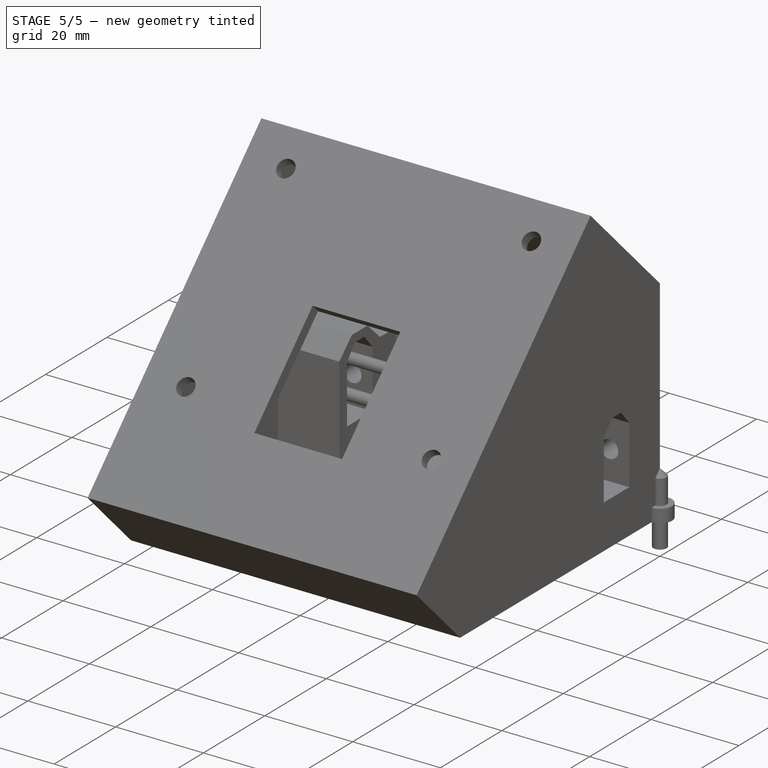
[diagram: stage 5 of 5 — iso view after this stage's code; geometry added in this stage tinted green]
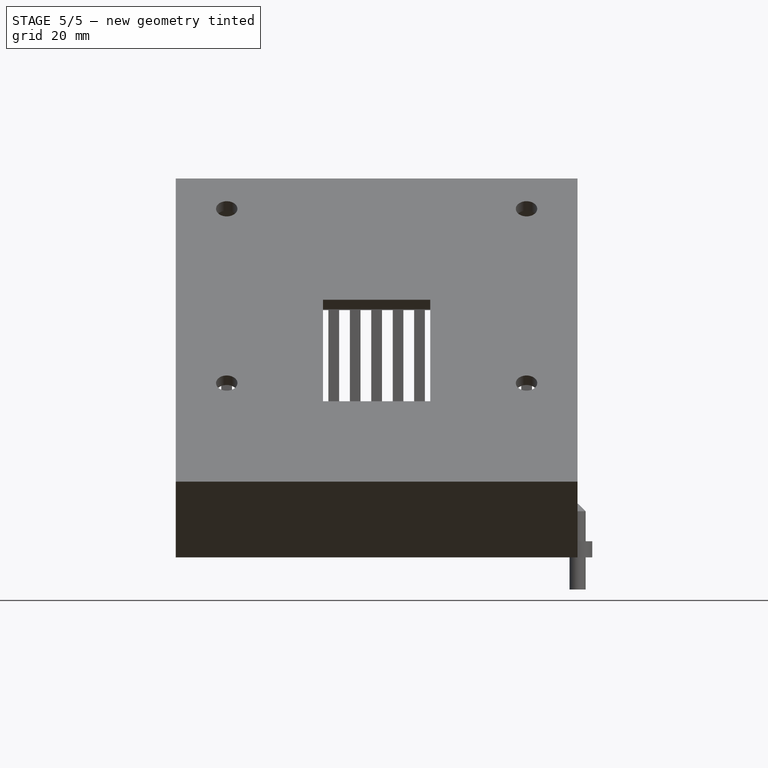
[diagram: stage 5 of 5 — front view after this stage's code; geometry added in this stage tinted green]
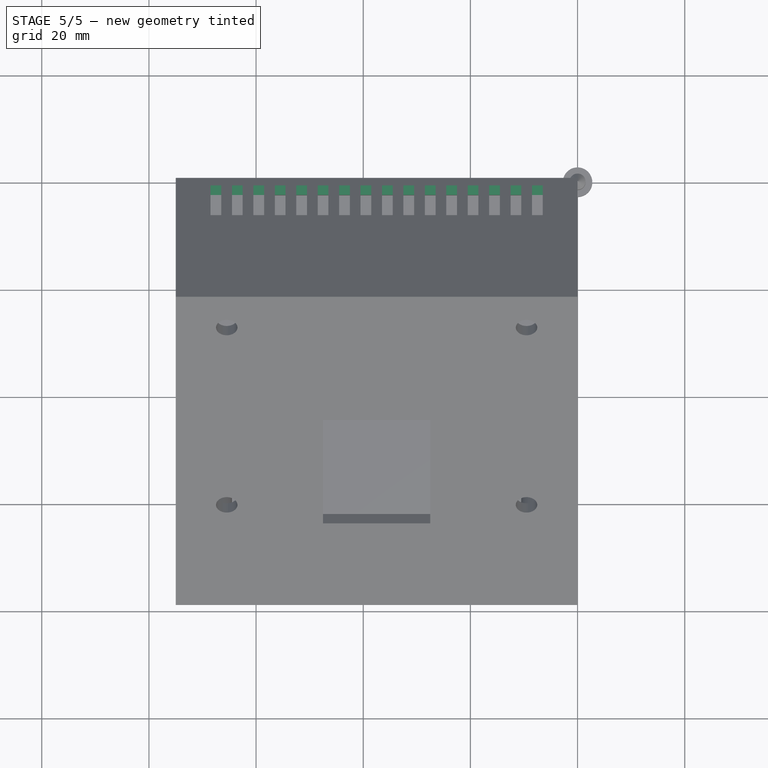
[diagram: stage 5 of 5 — top view after this stage's code; geometry added in this stage tinted green]
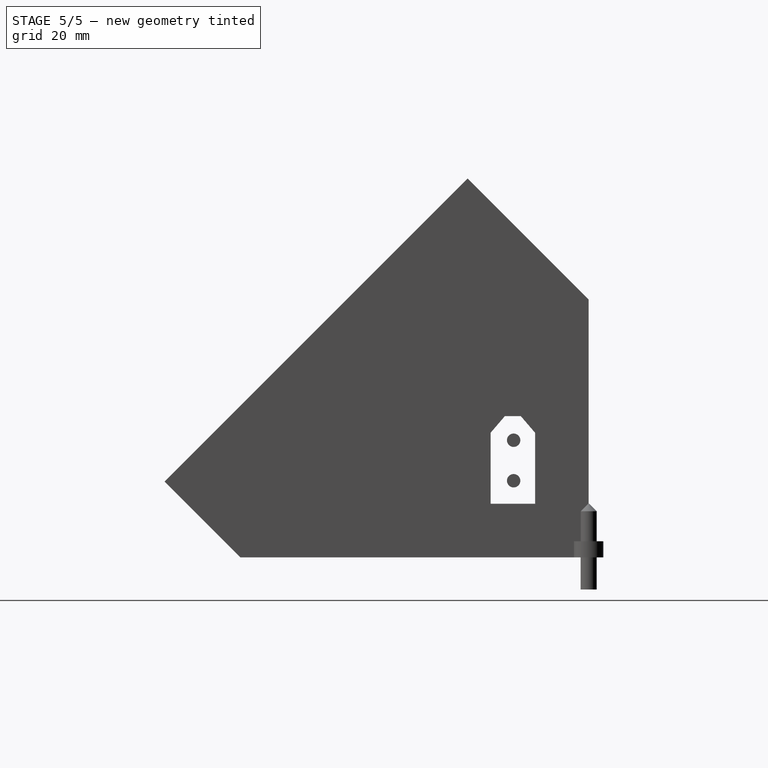
[diagram: stage 5 of 5 — right view after this stage's code; geometry added in this stage tinted green]
FEATURE [Sketcher::SketchObject] Sketch010
  FullyConstrained = true
  MapMode = 5
  Placement = pos=(0,-71,-2.13e-14) rot=(1,0,0;0.785398rad)
  Support = -> [DatumPlane004]
  expr: Constraints[0] = <<sp>>.insertFAVDistBord / 2 + <<sp>>.epaisseurParois
  expr: Constraints[1] = <<sp>>.insertFavDistAuZeroDuPLan + <<sp>>.epaisseurParois + <<sp>>.insertFAVDistBord / 2
  expr: Constraints[2] = <<sp>>.insertDiamPercage
  sketch-geometry (1):
    g0: Circle CenterX=-6.5 CenterY=10.7426 CenterZ=0 NormalX=0 NormalY=0 NormalZ=1 AngleXU=0 Radius=2
  constraints (3):
    c: DistanceX(g0,g-1) = 6.5
    c: DistanceY(g-1,g0) = 10.7426
    c: Diameter(g0) = 4
FEATURE [PartDesign::Pocket] Pocket004  label="trouDroit"
  AllowMultiFace = false
  BaseFeature = -> Pad004
  Direction = (0,0.707107,-0.707107)
  Length = 5
  Length2 = 100
  Profile = -> Sketch010
  Type = 1
FEATURE [Sketcher::SketchObject] Sketch011
  FullyConstrained = true
  MapMode = 5
  Placement = pos=(0,-71,-2.13e-14) rot=(1,0,0;0.785398rad)
  Support = -> [DatumPlane004]
  expr: Constraints[0] = <<sp>>.insertDiamPercage
  expr: Constraints[1] = <<sp>>.largeurModuleBase - <<sp>>.epaisseurParois - <<sp>>.insertFAVDistBord / 2
  expr: Constraints[2] = <<sp>>.insertFavDistAuZeroDuPLan + <<sp>>.epaisseurParois + <<sp>>.insertFAVDistBord / 2
  sketch-geometry (1):
    g0: Circle CenterX=-68.5 CenterY=10.7426 CenterZ=0 NormalX=0 NormalY=0 NormalZ=1 AngleXU=0 Radius=2
  constraints (3):
    c: Diameter(g0) = 4
    c: DistanceX(g0,g-1) = 68.5
    c: DistanceY(g-1,g0) = 10.7426
FEATURE [PartDesign::Pocket] Pocket005  label="trouGauche"
  AllowMultiFace = false
  BaseFeature = -> Pocket004
  Direction = (0,0.707107,-0.707107)
  Length = 5
  Length2 = 100
  Profile = -> Sketch011
  Type = 1
FEATURE [PartDesign::Plane] DatumPlane005  label="planTeteVisFav"
  AttachmentOffset = pos=(0,0,68) rot=(-1,0,0;0.785398rad)
  Length = 122.411
  MapMode = 5
  Placement = pos=(0,-68,-1.51e-14) rot=(1,0,0;0.785398rad)
  ResizeMode = 0
  Support = -> [XZ_Plane002]
  Width = 147.971
  expr: .AttachmentOffset.Base.z = <<sp>>.planTrancheur - 3
FEATURE [Sketcher::SketchObject] Sketch012
  ExternalGeometry = -> [Pocket005]
  FullyConstrained = true
  MapMode = 5
  Placement = pos=(0,-68,-1.42e-14) rot=(1,0,0;0.785398rad)
  Support = -> [DatumPlane005]
  expr: Constraints[1] = <<sp>>.visM3DiamEncastrement
  sketch-geometry (2):
    g0: Circle CenterX=-6.5 CenterY=8.62132 CenterZ=0 NormalX=0 NormalY=0 NormalZ=1 AngleXU=0 Radius=3
    g1: Circle CenterX=-68.5 CenterY=8.62132 CenterZ=0 NormalX=0 NormalY=0 NormalZ=1 AngleXU=0 Radius=3
  constraints (4):
    c: Equal(g0,g1)
    c: Diameter(g1) = 6
    c: Coincident(g1,g-4)
    c: Coincident(g-3,g0)
FEATURE [PartDesign::Pocket] Pocket006  label="evidementTeteVisFav"
  AllowMultiFace = false
  BaseFeature = -> Pocket005
  Direction = (0,0.707107,-0.707107)
  Length = 20
  Length2 = 100
  Profile = -> Sketch012
  Type = 1
FEATURE [Sketcher::SketchObject] Sketch014
  FullyConstrained = true
  MapMode = 5
  Placement = pos=(0,0,0) rot=(1,0,0;1.5708rad)
  Support = -> [XZ_Plane002]
  expr: Constraints[12] = <<sp>>.xt60distanceAngleBord + <<sp>>.xt60hauteur + <<sp>>.ventilDistBordFente
  expr: Constraints[13] = <<sp>>.ventilLargeurFentes
  expr: Constraints[14] = <<sp>>.ventilEcartfente / 2
  expr: Constraints[15] = <<sp>>.hauteurDuDos - <<sp>>.ventilDistBordFente
  expr: Constraints[2] = <<sp>>.hauteurDuDos
  expr: Constraints[3] = <<sp>>.largeurModuleBase / 2
  sketch-geometry (5):
    g0: LineSegment StartX=-37.5 StartY=0 StartZ=0 EndX=-37.5 EndY=48.1371 EndZ=0
    g1: LineSegment StartX=-40.5 StartY=46.1371 StartZ=0 EndX=-38.5 EndY=46.1371 EndZ=0
    g2: LineSegment StartX=-38.5 StartY=46.1371 StartZ=0 EndX=-38.5 EndY=25.25 EndZ=0
    g3: LineSegment StartX=-38.5 StartY=25.25 StartZ=0 EndX=-40.5 EndY=25.25 EndZ=0
    g4: LineSegment StartX=-40.5 StartY=25.25 StartZ=0 EndX=-40.5 EndY=46.1371 EndZ=0
  constraints (16):
    c: PointOnObject(g0,g-1)
    c: Vertical(g0)
    c: DistanceY(g0,g0) = 48.1371
    c: DistanceX(g0,g-1) = 37.5
    c: Coincident(g1,g2)
    c: Coincident(g2,g3)
    c: Coincident(g3,g4)
    c: Coincident(g4,g1)
    c: Horizontal(g1)
    c: Horizontal(g3)
    c: Vertical(g2)
    c: Vertical(g4)
    c: DistanceY(g-1,g2) = 25.25
    c: DistanceX(g1,g1) = 2
    c: DistanceX(g2,g0) = 1
    c: DistanceY(g-1,g1) = 46.1371
FEATURE [PartDesign::Pocket] Pocket008  label="ventilFente1"
  AllowMultiFace = false
  BaseFeature = -> Pocket006
  Direction = (0,1,2e-16)
  Length = 2.5
  Length2 = 100
  Profile = -> Sketch014
  Reversed = true
  Type = 0
  expr: Length = <<sp>>.epaisseurParois
FEATURE [PartDesign::LinearPattern] LinearPattern  label="ventilDosRepeat1"
  BaseFeature = -> Pocket008
  Direction = -> Sketch014 [H_Axis]
  Length = 28
  Occurrences = 8
  Originals = -> [Pocket008]
  Reversed = true
  expr: Length = <<sp>>.ventilLargeurRepet
  expr: Occurrences = <<sp>>.ventilNbrFents
FEATURE [PartDesign::LinearPattern] LinearPattern001  label="ventilDosRepeat2"
  BaseFeature = -> LinearPattern
  Direction = -> Sketch014 [H_Axis]
  Length = 32
  Occurrences = 9
  Originals = -> [Pocket008]
  expr: Length = <<sp>>.ventilLargeurRepet + <<sp>>.ventilEcartfente + <<sp>>.ventilLargeurFentes
  expr: Occurrences = <<sp>>.ventilNbrFents + 1
FEATURE [PartDesign::Plane] DatumPlane006  label="planVentilSup"
  AttachmentOffset = pos=(0,0,-48.1371) rot=(1,0,0;0.785398rad)
  Length = 122.411
  MapMode = 5
  Placement = pos=(0,48.1371,1.07e-14) rot=(1,0,0;2.35619rad)
  ResizeMode = 0
  Support = -> [XZ_Plane002]
  Width = 147.971
  expr: .AttachmentOffset.Base.z = -<<sp>>.hauteurDuDos
FEATURE [Sketcher::SketchObject] Sketch015
  FullyConstrained = true
  MapMode = 5
  Placement = pos=(0,48.1371,1.07e-14) rot=(1,0,0;2.35619rad)
  Support = -> [DatumPlane006]
  expr: Constraints[10] = <<sp>>.ventilLargeurFentes
  expr: Constraints[11] = (<<sp>>.largeurModuleBase + <<sp>>.ventilEcartfente) / 2
  expr: Constraints[8] = <<sp>>.distanceAuZeroPlanBorArriere + <<sp>>.ventilDistBordFente
  expr: Constraints[9] = <<sp>>.longPetitRetSupSansFav - 2 * <<sp>>.ventilDistBordFente - <<sp>>.favBordureProf
  sketch-geometry (4):
    g0: LineSegment StartX=-38.5 StartY=78.0926 StartZ=0 EndX=-40.5 EndY=78.0926 EndZ=0
    g1: LineSegment StartX=-40.5 StartY=78.0926 StartZ=0 EndX=-40.5 EndY=70.0761 EndZ=0
    g2: LineSegment StartX=-40.5 StartY=70.0761 StartZ=0 EndX=-38.5 EndY=70.0761 EndZ=0
    g3: LineSegment StartX=-38.5 StartY=70.0761 StartZ=0 EndX=-38.5 EndY=78.0926 EndZ=0
  constraints (12):
    c: Coincident(g0,g1)
    c: Coincident(g1,g2)
    c: Coincident(g2,g3)
    c: Coincident(g3,g0)
    c: Horizontal(g0)
    c: Horizontal(g2)
    c: Vertical(g1)
    c: Vertical(g3)
    c: DistanceY(g-1,g2) = 70.0761
    c: DistanceY(g2,g0) = 8.01652
    c: DistanceX(g0,g0) = 2
    c: DistanceX(g2,g-1) = 38.5
FEATURE [PartDesign::Pocket] Pocket009  label="ventilSupFente"
  AllowMultiFace = false
  BaseFeature = -> LinearPattern001
  Direction = (0,0.707107,0.707107)
  Length = 5
  Length2 = 100
  Profile = -> Sketch015
  Reversed = true
  Type = 0
FEATURE [PartDesign::LinearPattern] LinearPattern002  label="ventilSupRepeat1"
  BaseFeature = -> Pocket009
  Direction = -> Sketch015 [H_Axis]
  Length = 28
  Occurrences = 8
  Originals = -> [Pocket009]
  Reversed = true
  expr: Length = <<sp>>.ventilLargeurRepet
  expr: Occurrences = <<sp>>.ventilNbrFents
FEATURE [PartDesign::LinearPattern] LinearPattern003  label="ventilSupRepeat2"
  BaseFeature = -> LinearPattern002
  Direction = -> Sketch015 [H_Axis]
  Length = 32
  Occurrences = 9
  Originals = -> [Pocket009]
  expr: Length = <<sp>>.ventilLargeurRepet + <<sp>>.ventilEcartfente + <<sp>>.ventilLargeurFentes
  expr: Occurrences = <<sp>>.ventilNbrFents + 1
FEATURE [PartDesign::Chamfer] Chamfer002
  Angle = 45
  Base = -> Pocket014 [Edge3]
  BaseFeature = -> Pocket014
  ChamferType = 0
  FlipDirection = false
  Size = 0.1
  Size2 = 1
  SupportTransform = false
  UseAllEdges = false
FEATURE [PartDesign::Body] Body006  label="bodyVisPointeauM3x10_002"
  Group = -> [Sketch028,Pad013,Chamfer003,Sketch027,Pocket014,Chamfer002]
  Origin = -> Origin015
  Tip = -> Chamfer002
FEATURE [App::Part] Part008  label="partVisPointeauM3x10_002"
  Group = -> [Body006]
  Origin = -> Origin014
  Placement = pos=(-23.1,-0.5,16.6) rot=(1,0,0;1.5708rad)
FEATURE [PartDesign::Plane] DatumPlane010
  AttachmentOffset = pos=(0,0,-2.5) rot=(0,0,1;0rad)
  Length = 110.737
  MapMode = 5
  Placement = pos=(-2.5,6e-16,-6e-16) rot=(0.57735,0.57735,0.57735;2.0944rad)
  ResizeMode = 0
  Support = -> [YZ_Plane002]
  Width = 102.305
  expr: .AttachmentOffset.Base.z = -<<sp>>.epaisseurParois
FEATURE [Sketcher::SketchObject] Sketch029  label="sk_bourletMaintient"
  FullyConstrained = true
  MapMode = 5
  Placement = pos=(-2.5,6e-16,-6e-16) rot=(0.57735,0.57735,0.57735;2.0944rad)
  Support = -> [DatumPlane010]
  expr: Constraints[10] = <<sp>>.angleFaceRetourHaut
  expr: Constraints[11] = <<sp>>.Face
  expr: Constraints[15] = <<sp>>.epaisseurParois
  expr: Constraints[19] = <<sp>>.bourletMaintientRayon
  expr: Constraints[20] = <<sp>>.bourletDistAuBord
  expr: Constraints[6] = <<sp>>.Base
  expr: Constraints[7] = <<sp>>.petitRetour
  expr: Constraints[8] = <<sp>>.anglePetitRetourBase
  expr: Constraints[9] = <<sp>>.angleFacePetitRetour
  sketch-geometry (7):
    g0: ArcOfCircle CenterX=-11.3137 CenterY=55.9153 CenterZ=0 NormalX=0 NormalY=0 NormalZ=1 AngleXU=0 Radius=1.5 StartAngle=5.49779 EndAngle=8.63938
    g1: LineSegment StartX=0 StartY=0 StartZ=0 EndX=-65 EndY=0 EndZ=0
    g2: LineSegment StartX=-65 StartY=0 StartZ=0 EndX=-79.1421 EndY=14.1421 EndZ=0
    g3: LineSegment StartX=-79.1421 StartY=14.1421 StartZ=0 EndX=-22.5736 EndY=70.7107 EndZ=0
    g4: LineSegment StartX=-22.5736 StartY=70.7107 StartZ=0 EndX=0 EndY=48.1371 EndZ=0
    g5: LineSegment StartX=-24.3414 StartY=68.9429 StartZ=0 EndX=0 EndY=44.6016 EndZ=0
    g6: LineSegment StartX=-12.3744 StartY=56.9759 StartZ=0 EndX=-10.253 EndY=54.8546 EndZ=0
  constraints (23):
    c: Coincident(g-1,g1)
    c: Horizontal(g1)
    c: Coincident(g1,g2)
    c: Coincident(g2,g3)
    c: Coincident(g3,g4)
    c: PointOnObject(g4,g-2)
    c: DistanceX(g1,g1) = 65
    c: Distance(g2,g1) = 20
    c: Angle(g1,g2) = 2.35619
    c: Angle(g2,g3) = 1.5708
    c: Angle(g3,g4) = 1.5708
    c: Distance(g3) = 80
    c: PointOnObject(g5,g3)
    c: PointOnObject(g5,g-2)
    c: Parallel(g5,g4)
    c: Distance(g5,g3) = 2.5
    c: PointOnObject(g0,g5)
    c: PointOnObject(g0,g5)
    c: PointOnObject(g0,g5)
    c: Radius(g0) = 1.5
    c: Distance(g0,g5) = 16
    c: Coincident(g6,g0)
    c: Coincident(g6,g0)
FEATURE [PartDesign::Pocket] Pocket015  label="bourletMaintien"
  AllowMultiFace = false
  BaseFeature = -> LinearPattern003
  Direction = (-1,1e-16,-1e-16)
  Length = 70
  Length2 = 100
  Profile = -> Sketch029
  Type = 0
  expr: Length = <<sp>>.largeurModuleBase - 2 * <<sp>>.epaisseurParois
FEATURE [Sketcher::SketchObject] Sketch007
  FullyConstrained = true
  MapMode = 5
  Support = -> [XY_Plane003]
  expr: Constraints[15] = <<lidlAdaptSp>>.tLargeurPetite
  expr: Constraints[16] = <<lidlAdaptSp>>.long / 2
  expr: Constraints[17] = <<lidlAdaptSp>>.encocheLarg
  expr: Constraints[18] = <<lidlAdaptSp>>.encocheProf
  expr: Constraints[19] = <<lidlAdaptSp>>.encocheGranProf
  sketch-geometry (8):
    g0: LineSegment StartX=-19.3 StartY=30 StartZ=0 EndX=-19.3 EndY=-15.8 EndZ=0
    g1: LineSegment StartX=-19.3 StartY=-15.8 StartZ=0 EndX=-14.8 EndY=-15.8 EndZ=0
    g2: LineSegment StartX=-14.8 StartY=-15.8 StartZ=0 EndX=-14.8 EndY=1.8 EndZ=0
    g3: LineSegment StartX=-14.8 StartY=1.8 StartZ=0 EndX=14.8 EndY=1.8 EndZ=0
    g4: LineSegment StartX=14.8 StartY=1.8 StartZ=0 EndX=14.8 EndY=-15.8 EndZ=0
    g5: LineSegment StartX=14.8 StartY=-15.8 StartZ=0 EndX=19.3 EndY=-15.8 EndZ=0
    g6: LineSegment StartX=19.3 StartY=-15.8 StartZ=0 EndX=19.3 EndY=30 EndZ=0
    g7: LineSegment StartX=19.3 StartY=30 StartZ=0 EndX=-19.3 EndY=30 EndZ=0
  constraints (20):
    c: Vertical(g0)
    c: Coincident(g0,g1)
    c: Coincident(g1,g2)
    c: Coincident(g2,g3)
    c: Coincident(g3,g4)
    c: Vertical(g4)
    c: Coincident(g4,g5)
    c: Horizontal(g5)
    c: Coincident(g5,g6)
    c: Coincident(g6,g7)
    c: Coincident(g7,g0)
    c: Symmetric(g1,g4,g-2)
    c: Symmetric(g2,g3,g-2)
    c: Symmetric(g0,g5,g-2)
    c: Symmetric(g0,g6,g-2)
    c: DistanceX(g0,g6) = 38.6
    c: DistanceY(g-1,g0) = 30
    c: DistanceX(g2,g3) = 29.6
    c: DistanceY(g4,g3) = 17.6
    c: DistanceY(g5,g6) = 45.8
FEATURE [PartDesign::Pocket] Pocket004  label="encoche"
  BaseFeature = -> Pad003
  Direction = (0,0,-1)
  Length = 5
  Length2 = 5
  Profile = -> Sketch007
  ReferenceAxis = -> Sketch007 [N_Axis]
  Reversed = true
  Type = 1
FEATURE [Sketcher::SketchObject] Sketch008
  FullyConstrained = true
  MapMode = 5
  Support = -> [XY_Plane003]
  expr: Constraints[17] = <<lidlAdaptSp>>.encocheLarg
  expr: Constraints[18] = <<lidlAdaptSp>>.encocheProf
  expr: Constraints[7] = <<lidlAdaptSp>>.encocheGrandeLarg
  expr: Constraints[8] = <<lidlAdaptSp>>.encocheGranProf
  expr: Constraints[9] = <<lidlAdaptSp>>.long / 2
  sketch-geometry (8):
    g0: LineSegment StartX=-23.45 StartY=30 StartZ=0 EndX=23.45 EndY=30 EndZ=0
    g1: LineSegment StartX=23.45 StartY=30 StartZ=0 EndX=23.45 EndY=-15.8 EndZ=0
    g2: LineSegment StartX=23.45 StartY=-15.8 StartZ=0 EndX=14.8 EndY=-15.8 EndZ=0
    g3: LineSegment StartX=-23.45 StartY=-15.8 StartZ=0 EndX=-23.45 EndY=30 EndZ=0
    g4: LineSegment StartX=-14.8 StartY=-15.8 StartZ=0 EndX=-14.8 EndY=1.8 EndZ=0
    g5: LineSegment StartX=-14.8 StartY=1.8 StartZ=0 EndX=14.8 EndY=1.8 EndZ=0
    g6: LineSegment StartX=14.8 StartY=1.8 StartZ=0 EndX=14.8 EndY=-15.8 EndZ=0
    g7: LineSegment StartX=-14.8 StartY=-15.8 StartZ=0 EndX=-23.45 EndY=-15.8 EndZ=0
  constraints (21):
    c: Coincident(g0,g1)
    c: Coincident(g1,g2)
    c: Coincident(g7,g3)
    c: Coincident(g3,g0)
    c: Horizontal(g2)
    c: Vertical(g1)
    c: Symmetric(g0,g0,g-2)
    c: DistanceX(g0,g0) = 46.9
    c: DistanceY(g7,g0) = 45.8
    c: DistanceY(g-1,g0) = 30
    c: Vertical(g4)
    c: Coincident(g4,g5)
    c: Horizontal(g5)
    c: Coincident(g5,g6)
    c: Vertical(g6)
    c: Symmetric(g4,g6,g-2)
    c: Coincident(g7,g4)
    c: DistanceX(g4,g5) = 29.6
    c: DistanceY(g2,g5) = 17.6
    c: Coincident(g2,g6)
    c: Symmetric(g1,g3,g-2)
FEATURE [PartDesign::Pocket] Pocket005
  BaseFeature = -> Pocket004
  Direction = (0,0,-1)
  Length = 6.43
  Length2 = 5
  Profile = -> Sketch008
  ReferenceAxis = -> Sketch008 [N_Axis]
  Reversed = true
  Type = 0
  expr: Length = <<lidlx20Sp>>.tHautPied + <<lidlAdaptSp>>.jeu
FEATURE [PartDesign::Plane] DatumPlane  label="planLanguette"
  AttachmentOffset = pos=(0,0,-1.8) rot=(0,0,1;0rad)
  Length = 76.4018
  MapMode = 5
  Placement = pos=(0,1.8,4e-16) rot=(1,0,0;1.5708rad)
  ResizeMode = 0
  Support = -> [XZ_Plane003]
  Width = 61.4018
  expr: .AttachmentOffset.Base.z = -<<lidlAdaptSp>>.planLanguette
FEATURE [Sketcher::SketchObject] Sketch009
  FullyConstrained = true
  MapMode = 5
  Placement = pos=(0,1.8,4e-16) rot=(1,0,0;1.5708rad)
  Support = -> [DatumPlane]
  expr: Constraints[17] = <<lidlAdaptSp>>.languetteEp
  expr: Constraints[20] = <<lidlAdaptSp>>.languetteEcart + <<lidlAdaptSp>>.languetteEp
  expr: Constraints[21] = <<lidlAdaptSp>>.languetteHaut
  sketch-geometry (8):
    g0: LineSegment StartX=-12.525 StartY=0 StartZ=0 EndX=-11.475 EndY=0 EndZ=0
    g1: LineSegment StartX=-11.475 StartY=0 StartZ=0 EndX=-11.475 EndY=8.7 EndZ=0
    g2: LineSegment StartX=-11.475 StartY=8.7 StartZ=0 EndX=-12.525 EndY=8.7 EndZ=0
    g3: LineSegment StartX=-12.525 StartY=8.7 StartZ=0 EndX=-12.525 EndY=0 EndZ=0
    g4: LineSegment StartX=11.475 StartY=0 StartZ=0 EndX=12.525 EndY=0 EndZ=0
    g5: LineSegment StartX=12.525 StartY=0 StartZ=0 EndX=12.525 EndY=8.7 EndZ=0
    g6: LineSegment StartX=12.525 StartY=8.7 StartZ=0 EndX=11.475 EndY=8.7 EndZ=0
    g7: LineSegment StartX=11.475 StartY=8.7 StartZ=0 EndX=11.475 EndY=0 EndZ=0
  constraints (22):
    c: Coincident(g0,g1)
    c: Coincident(g1,g2)
    c: Coincident(g2,g3)
    c: Coincident(g3,g0)
    c: Horizontal(g0)
    c: Horizontal(g2)
    c: Vertical(g1)
    c: Vertical(g3)
    c: PointOnObject(g0,g-1)
    c: Coincident(g4,g5)
    c: Coincident(g5,g6)
    c: Coincident(g6,g7)
    c: Coincident(g7,g4)
    c: Horizontal(g4)
    c: Horizontal(g6)
    c: Vertical(g5)
    c: Vertical(g7)
    c: DistanceX(g2,g1) = 1.05
    c: Symmetric(g0,g4,g-2)
    c: Symmetric(g2,g5,g-2)
    c: DistanceX(g0,g4) = 25.05
    c: DistanceY(g4,g5) = 8.7
FEATURE [PartDesign::Pocket] Pocket006  label="languettes"
  BaseFeature = -> Pocket005
  Direction = (0,1,2e-16)
  Length = 15
  Length2 = 5
  Profile = -> Sketch009
  ReferenceAxis = -> Sketch009 [N_Axis]
  Reversed = true
  Type = 0
  expr: Length = <<lidlAdaptSp>>.languetteRainureLong
FEATURE [Sketcher::SketchObject] Sketch010
  FullyConstrained = true
  MapMode = 5
  Support = -> [XY_Plane003]
  expr: Constraints[10] = <<lidlAdaptSp>>.evidCablageLong
  expr: Constraints[7] = <<lidlAdaptSp>>.evidCablageLarg
  expr: Constraints[9] = <<lidlAdaptSp>>.evidCablagePosY
  sketch-geometry (4):
    g0: LineSegment StartX=-10 StartY=-27.8 StartZ=0 EndX=10 EndY=-27.8 EndZ=0
    g1: LineSegment StartX=10 StartY=-27.8 StartZ=0 EndX=10 EndY=-1 EndZ=0
    g2: LineSegment StartX=10 StartY=-1 StartZ=0 EndX=-10 EndY=-1 EndZ=0
    g3: LineSegment StartX=-10 StartY=-1 StartZ=0 EndX=-10 EndY=-27.8 EndZ=0
  constraints (11):
    c: Coincident(g0,g1)
    c: Coincident(g1,g2)
    c: Coincident(g2,g3)
    c: Coincident(g3,g0)
    c: Horizontal(g2)
    c: Vertical(g1)
    c: Vertical(g3)
    c: DistanceX(g0,g0) = 20
    c: Symmetric(g0,g0,g-2)
    c: DistanceY(g1,g-1) = 1
    c: DistanceY(g0,g1) = 26.8
FEATURE [PartDesign::Pocket] Pocket007  label="evidCablage"
  BaseFeature = -> Pocket006
  Direction = (0,0,-1)
  Length = 8.7
  Length2 = 5
  Profile = -> Sketch010
  ReferenceAxis = -> Sketch010 [N_Axis]
  Reversed = true
  Type = 0
  expr: Length = <<lidlAdaptSp>>.evidCablageProf
FEATURE [Sketcher::SketchObject] Sketch011
  FullyConstrained = true
  MapMode = 5
  Support = -> [XY_Plane003]
  expr: Constraints[16] = <<lidlAdaptSp>>.languetteEp
  expr: Constraints[18] = <<lidlAdaptSp>>.evidCavlLangPosY
  expr: Constraints[19] = <<lidlAdaptSp>>.evidCablageLarg
  expr: Constraints[20] = <<lidlAdaptSp>>.languetteEcart
  sketch-geometry (8):
    g0: LineSegment StartX=-12 StartY=-3 StartZ=0 EndX=-10 EndY=-3 EndZ=0
    g1: LineSegment StartX=-10 StartY=-3 StartZ=0 EndX=-10 EndY=-4.05 EndZ=0
    g2: LineSegment StartX=-10 StartY=-4.05 StartZ=0 EndX=-12 EndY=-4.05 EndZ=0
    g3: LineSegment StartX=-12 StartY=-4.05 StartZ=0 EndX=-12 EndY=-3 EndZ=0
    g4: LineSegment StartX=10 StartY=-3 StartZ=0 EndX=12 EndY=-3 EndZ=0
    g5: LineSegment StartX=12 StartY=-3 StartZ=0 EndX=12 EndY=-4.05 EndZ=0
    g6: LineSegment StartX=12 StartY=-4.05 StartZ=0 EndX=10 EndY=-4.05 EndZ=0
    g7: LineSegment StartX=10 StartY=-4.05 StartZ=0 EndX=10 EndY=-3 EndZ=0
  constraints (21):
    c: Coincident(g0,g1)
    c: Coincident(g1,g2)
    c: Coincident(g2,g3)
    c: Coincident(g3,g0)
    c: Horizontal(g0)
    c: Horizontal(g2)
    c: Vertical(g1)
    c: Vertical(g3)
    c: Coincident(g4,g5)
    c: Coincident(g5,g6)
    c: Coincident(g6,g7)
    c: Coincident(g7,g4)
    c: Horizontal(g6)
    c: Vertical(g5)
    c: Symmetric(g0,g4,g-2)
    c: Symmetric(g0,g4,g-2)
    c: DistanceY(g2,g0) = 1.05
    c: Symmetric(g1,g6,g-2)
    c: DistanceY(g0,g-1) = 3
    c: DistanceX(g0,g4) = 20
    c: DistanceX(g0,g4) = 24
FEATURE [PartDesign::Pocket] Pocket008  label="passageLangetteVersCablage"
  BaseFeature = -> Pocket007
  Direction = (0,0,-1)
  Length = 8.7
  Length2 = 5
  Profile = -> Sketch011
  ReferenceAxis = -> Sketch011 [N_Axis]
  Reversed = true
  Type = 0
  expr: Length = <<lidlAdaptSp>>.languetteHaut
FEATURE [Sketcher::SketchObject] Sketch012
  FullyConstrained = true
  MapMode = 5
  Support = -> [XY_Plane003]
  expr: Constraints[14] = <<lidlAdaptSp>>.InsertDiam
  expr: Constraints[18] = <<lidlAdaptSp>>.visDistAuCentreEnY
  expr: Constraints[19] = <<lidlAdaptSp>>.visCentreVsCentreEnX
  sketch-geometry (9):
    g0: LineSegment StartX=-27.975 StartY=23 StartZ=0 EndX=-27.975 EndY=-23 EndZ=0
    g1: LineSegment StartX=-27.975 StartY=-23 StartZ=0 EndX=27.975 EndY=-23 EndZ=0
    g2: LineSegment StartX=27.975 StartY=-23 StartZ=0 EndX=27.975 EndY=23 EndZ=0
    g3: LineSegment StartX=27.975 StartY=23 StartZ=0 EndX=-27.975 EndY=23 EndZ=0
    g4: GeomPoint X=0 Y=0 Z=0
    g5: Circle CenterX=-27.975 CenterY=23 CenterZ=0 NormalX=0 NormalY=0 NormalZ=1 AngleXU=0 Radius=2
    g6: Circle CenterX=27.975 CenterY=23 CenterZ=0 NormalX=0 NormalY=0 NormalZ=1 AngleXU=0 Radius=2
    g7: Circle CenterX=27.975 CenterY=-23 CenterZ=0 NormalX=0 NormalY=0 NormalZ=1 AngleXU=0 Radius=2
    g8: Circle CenterX=-27.975 CenterY=-23 CenterZ=0 NormalX=0 NormalY=0 NormalZ=1 AngleXU=0 Radius=2
  constraints (20):
    c: Coincident(g0,g1)
    c: Coincident(g1,g2)
    c: Coincident(g2,g3)
    c: Coincident(g3,g0)
    c: Horizontal(g1)
    c: Horizontal(g3)
    c: Vertical(g0)
    c: Vertical(g2)
    c: Symmetric(g1,g0,g4)
    c: Coincident(g4,g-1)
    c: Coincident(g5,g0)
    c: Coincident(g6,g2)
    c: Coincident(g7,g1)
    c: Coincident(g8,g0)
    c: Diameter(g5) = 4
    c: Equal(g5,g6)
    c: Equal(g6,g7)
    c: Equal(g7,g8)
    c: DistanceY(g4,g5) = 23
    c: DistanceX(g5,g4) = 27.975
FEATURE [PartDesign::Pocket] Pocket009  label="vis"
  BaseFeature = -> Pocket008
  Direction = (0,0,-1)
  Length = 5
  Length2 = 5
  Profile = -> Sketch012
  ReferenceAxis = -> Sketch012 [N_Axis]
  Reversed = true
  Type = 1
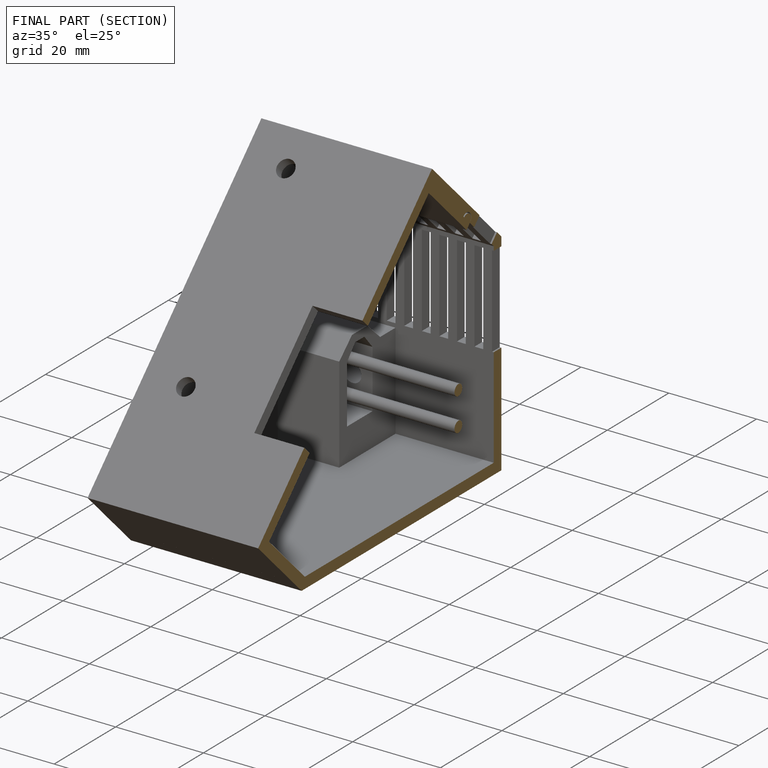
[diagram: finished part — half-section view (interior)]
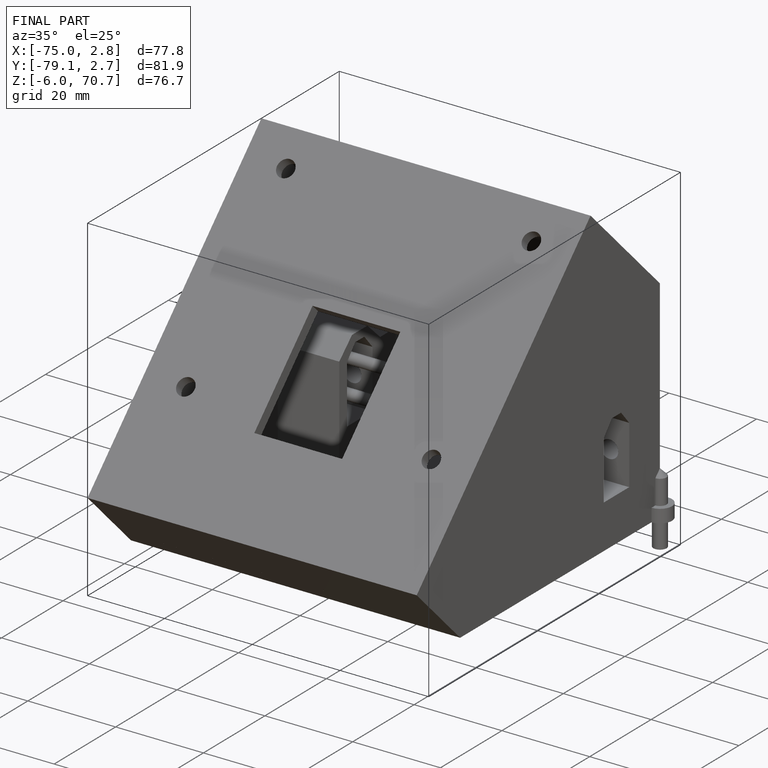
[diagram: finished part — iso view with bounding-box wireframe]
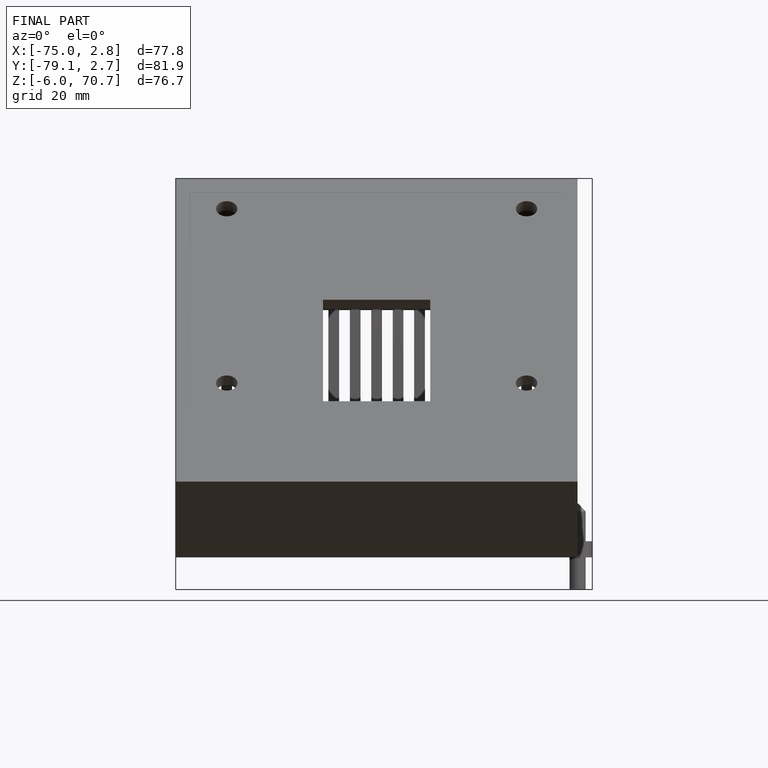
[diagram: finished part — front view with bounding-box wireframe]
